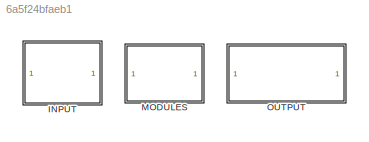
MODEL slx_6a5f24bfaeb1
KIND model
CONFIG AbsTol = auto
CONFIG EnableMultiTasking = off
CONFIG FixedStep = auto
CONFIG MaxStep = auto
CONFIG MinStep = auto
CONFIG RelTol = 1e-3
CONFIG SampleTimeConstraint = Unconstrained
CONFIG SolverName = VariableStepAuto
CONFIG StartTime = 0.0
CONFIG StopTime = 10.0
BLOCK [SubSystem] INPUT
  Ports = []
  RequestExecContextInheritance = off
BLOCK [SubSystem] INPUT/AIRBAG_INPUTS
  Ports = []
  RequestExecContextInheritance = off
BLOCK [Goto] INPUT/AIRBAG_INPUTS/Goto
  GotoTag = Driver_L
  TagVisibility = global
BLOCK [Goto] INPUT/AIRBAG_INPUTS/Goto1
  GotoTag = L_Front_1
  TagVisibility = global
BLOCK [Goto] INPUT/AIRBAG_INPUTS/Goto2
  GotoTag = L_Rear_1
  TagVisibility = global
BLOCK [Goto] INPUT/AIRBAG_INPUTS/Goto3
  GotoTag = R_Rear_
  TagVisibility = global
BLOCK [Goto] INPUT/AIRBAG_INPUTS/Goto4
  GotoTag = VehicleSpeed
  TagVisibility = global
BLOCK [Goto] INPUT/AIRBAG_INPUTS/Goto5
  GotoTag = Air_ACC
  TagVisibility = global
BLOCK [Goto] INPUT/AIRBAG_INPUTS/Goto6
  GotoTag = YawRate
  TagVisibility = global
BLOCK [SubSystem] INPUT/AIRBAG_INPUTS/Signal Builder
  ClipboardFcn = sigbuilder_block('clipboard');
  CloseFcn = sigbuilder_block('close');
  ContinueFcn = sigbuilder_block('continue');
  CopyFcn = sigbuilder_block('copy');
  DeleteFcn = sigbuilder_block('delete');
  LoadFcn = sigbuilder_block('load');
  MaskHideContents = on
  ModelCloseFcn = sigbuilder_block('modelClose');
  NameChangeFcn = sigbuilder_block('namechange');
  OpenFcn = sigbuilder_block('open',[437.6 199.2 550.4 400 ]);
  PauseFcn = sigbuilder_block('pause');
  Ports = [0, 7]
  PreSaveFcn = sigbuilder_block('preSave');
  RequestExecContextInheritance = off
  StartFcn = sigbuilder_block('start');
  StopFcn = sigbuilder_block('stop');
  Tag = STV Subsys
BLOCK [Outport] INPUT/AIRBAG_INPUTS/Signal Builder/Air_ACC
  Port = 6
  Tag = STV Outport
BLOCK [Demux] INPUT/AIRBAG_INPUTS/Signal Builder/Demux
  DisplayOption = none
  Outputs = 7
  Ports = [1, 7]
  Tag = STV Demux
BLOCK [Outport] INPUT/AIRBAG_INPUTS/Signal Builder/Driver_L
  Tag = STV Outport
BLOCK [FromWorkspace] INPUT/AIRBAG_INPUTS/Signal Builder/FromWs
  Tag = STV FromWs
  VariableName = tuvar
BLOCK [Outport] INPUT/AIRBAG_INPUTS/Signal Builder/L_Front_1
  Port = 2
  Tag = STV Outport
BLOCK [Outport] INPUT/AIRBAG_INPUTS/Signal Builder/L_Rear_1
  Port = 3
  Tag = STV Outport
BLOCK [Outport] INPUT/AIRBAG_INPUTS/Signal Builder/R_Rear_
  Port = 4
  Tag = STV Outport
BLOCK [Outport] INPUT/AIRBAG_INPUTS/Signal Builder/VehicleSpeed
  Port = 5
  Tag = STV Outport
BLOCK [Outport] INPUT/AIRBAG_INPUTS/Signal Builder/YawRate
  Port = 7
  Tag = STV Outport
BLOCK [SubSystem] INPUT/ALARM_INPUTS
  Ports = []
  RequestExecContextInheritance = off
BLOCK [Goto] INPUT/ALARM_INPUTS/Goto
  GotoTag = AS_Doors
  TagVisibility = global
BLOCK [Goto] INPUT/ALARM_INPUTS/Goto1
  GotoTag = Ignition
  TagVisibility = global
BLOCK [Goto] INPUT/ALARM_INPUTS/Goto2
  GotoTag = CAR_ON
  TagVisibility = global
BLOCK [Goto] INPUT/ALARM_INPUTS/Goto3
  GotoTag = RKE
  TagVisibility = global
BLOCK [SubSystem] INPUT/ALARM_INPUTS/Signal Builder
  ClipboardFcn = sigbuilder_block('clipboard');
  CloseFcn = sigbuilder_block('close');
  ContinueFcn = sigbuilder_block('continue');
  CopyFcn = sigbuilder_block('copy');
  DeleteFcn = sigbuilder_block('delete');
  LoadFcn = sigbuilder_block('load');
  MaskHideContents = on
  ModelCloseFcn = sigbuilder_block('modelClose');
  NameChangeFcn = sigbuilder_block('namechange');
  OpenFcn = sigbuilder_block('open',[403.5 199.2 550.5 359.55 ]);
  PauseFcn = sigbuilder_block('pause');
  Ports = [0, 4]
  PreSaveFcn = sigbuilder_block('preSave');
  RequestExecContextInheritance = off
  StartFcn = sigbuilder_block('start');
  StopFcn = sigbuilder_block('stop');
  Tag = STV Subsys
BLOCK [Outport] INPUT/ALARM_INPUTS/Signal Builder/AS_Doors
  Tag = STV Outport
BLOCK [Outport] INPUT/ALARM_INPUTS/Signal Builder/Car_ON
  Port = 3
  Tag = STV Outport
BLOCK [Demux] INPUT/ALARM_INPUTS/Signal Builder/Demux
  DisplayOption = none
  Ports = [1, 4]
  Tag = STV Demux
BLOCK [FromWorkspace] INPUT/ALARM_INPUTS/Signal Builder/FromWs
  Tag = STV FromWs
  VariableName = tuvar
BLOCK [Outport] INPUT/ALARM_INPUTS/Signal Builder/Ignition
  Port = 2
  Tag = STV Outport
BLOCK [Outport] INPUT/ALARM_INPUTS/Signal Builder/RKE
  Port = 4
  Tag = STV Outport
BLOCK [SubSystem] INPUT/Cruise_Control_INPUT
  Ports = []
  RequestExecContextInheritance = off
BLOCK [Goto] INPUT/Cruise_Control_INPUT/Goto
  GotoTag = ESC_cc
  TagVisibility = global
BLOCK [Goto] INPUT/Cruise_Control_INPUT/Goto1
  GotoTag = TSC_CC
  TagVisibility = global
BLOCK [Goto] INPUT/Cruise_Control_INPUT/Goto2
  GotoTag = BRAKE_CC
  TagVisibility = global
BLOCK [Goto] INPUT/Cruise_Control_INPUT/Goto3
  GotoTag = IGN
  TagVisibility = global
BLOCK [Goto] INPUT/Cruise_Control_INPUT/Goto4
  GotoTag = DESIRED_SPEED_CRUISE
  TagVisibility = global
BLOCK [Goto] INPUT/Cruise_Control_INPUT/Goto5
  GotoTag = CRUISE_SWITCH
  TagVisibility = global
BLOCK [Goto] INPUT/Cruise_Control_INPUT/Goto6
  GotoTag = CRUISE_SPEED_CHANGE_SW
  TagVisibility = global
BLOCK [Goto] INPUT/Cruise_Control_INPUT/Goto7
  GotoTag = SPEED_CONTROL_CC
  TagVisibility = global
BLOCK [SubSystem] INPUT/Cruise_Control_INPUT/Signal Builder
  ClipboardFcn = sigbuilder_block('clipboard');
  CloseFcn = sigbuilder_block('close');
  ContinueFcn = sigbuilder_block('continue');
  CopyFcn = sigbuilder_block('copy');
  DeleteFcn = sigbuilder_block('delete');
  LoadFcn = sigbuilder_block('load');
  MaskHideContents = on
  ModelCloseFcn = sigbuilder_block('modelClose');
  NameChangeFcn = sigbuilder_block('namechange');
  OpenFcn = sigbuilder_block('open',[437.6 153 550.4 359.25 ]);
  PauseFcn = sigbuilder_block('pause');
  Ports = [0, 8]
  PreSaveFcn = sigbuilder_block('preSave');
  RequestExecContextInheritance = off
  StartFcn = sigbuilder_block('start');
  StopFcn = sigbuilder_block('stop');
  Tag = STV Subsys
BLOCK [Outport] INPUT/Cruise_Control_INPUT/Signal Builder/BRAKE
  Port = 3
  Tag = STV Outport
BLOCK [Outport] INPUT/Cruise_Control_INPUT/Signal Builder/Cruise_speed_change_sw
  Port = 8
  Tag = STV Outport
BLOCK [Outport] INPUT/Cruise_Control_INPUT/Signal Builder/Cruise_switch
  Port = 6
  Tag = STV Outport
BLOCK [Demux] INPUT/Cruise_Control_INPUT/Signal Builder/Demux
  DisplayOption = none
  Outputs = 8
  Ports = [1, 8]
  Tag = STV Demux
BLOCK [Outport] INPUT/Cruise_Control_INPUT/Signal Builder/ESC
  Tag = STV Outport
BLOCK [FromWorkspace] INPUT/Cruise_Control_INPUT/Signal Builder/FromWs
  SampleTime = 1
  Tag = STV FromWs
  VariableName = tuvar
BLOCK [Outport] INPUT/Cruise_Control_INPUT/Signal Builder/Ignition
  Port = 4
  Tag = STV Outport
BLOCK [Outport] INPUT/Cruise_Control_INPUT/Signal Builder/Speed_enable
  Port = 7
  Tag = STV Outport
BLOCK [Outport] INPUT/Cruise_Control_INPUT/Signal Builder/TSC
  Port = 2
  Tag = STV Outport
BLOCK [Outport] INPUT/Cruise_Control_INPUT/Signal Builder/desired_speed
  Port = 5
  Tag = STV Outport
BLOCK [Goto] INPUT/Goto
  GotoTag = TP3
  TagVisibility = global
BLOCK [Goto] INPUT/Goto1
  GotoTag = TP4
  TagVisibility = global
BLOCK [Goto] INPUT/Goto2
  GotoTag = OP_SW
  TagVisibility = global
BLOCK [Goto] INPUT/Goto3
  GotoTag = CL_SW
  TagVisibility = global
BLOCK [Goto] INPUT/Goto4
  GotoTag = OP_VAL
  TagVisibility = global
BLOCK [Goto] INPUT/Goto5
  GotoTag = TP2
  TagVisibility = global
BLOCK [Goto] INPUT/Goto6
  GotoTag = TP1_IP
  TagVisibility = global
BLOCK [Goto] INPUT/Goto7
  GotoTag = CL_VAL
  TagVisibility = global
BLOCK [SubSystem] INPUT/Power_window_ip
  Ports = []
  RequestExecContextInheritance = off
  Tag = power_ip
BLOCK [Goto] INPUT/Power_window_ip/Goto
  GotoTag = ignition
  TagVisibility = global
BLOCK [Goto] INPUT/Power_window_ip/Goto1
  GotoTag = object
  TagVisibility = global
BLOCK [Goto] INPUT/Power_window_ip/Goto2
  GotoTag = rear_left_button_CP
  TagVisibility = global
BLOCK [Goto] INPUT/Power_window_ip/Goto3
  GotoTag = rear_left_button_driver_side
  TagVisibility = global
BLOCK [Goto] INPUT/Power_window_ip/Goto4
  GotoTag = Front_left_button_driver_side
  TagVisibility = global
BLOCK [Goto] INPUT/Power_window_ip/Goto5
  GotoTag = Front_left_button_CP
  TagVisibility = global
BLOCK [Goto] INPUT/Power_window_ip/Goto6
  GotoTag = rear_right_button_CP
  TagVisibility = global
BLOCK [Goto] INPUT/Power_window_ip/Goto7
  GotoTag = rear_right_button_driver_side
  TagVisibility = global
BLOCK [Goto] INPUT/Power_window_ip/Goto8
  GotoTag = driver_switch
  TagVisibility = global
BLOCK [SubSystem] INPUT/Power_window_ip/Signal Builder
  ClipboardFcn = sigbuilder_block('clipboard');
  CloseFcn = sigbuilder_block('close');
  ContinueFcn = sigbuilder_block('continue');
  CopyFcn = sigbuilder_block('copy');
  DeleteFcn = sigbuilder_block('delete');
  LoadFcn = sigbuilder_block('load');
  MaskHideContents = on
  ModelCloseFcn = sigbuilder_block('modelClose');
  NameChangeFcn = sigbuilder_block('namechange');
  OpenFcn = sigbuilder_block('open',[6 6 1012.5 506.25 ]);
  PauseFcn = sigbuilder_block('pause');
  Ports = [0, 10]
  PreSaveFcn = sigbuilder_block('preSave');
  RequestExecContextInheritance = off
  StartFcn = sigbuilder_block('start');
  StopFcn = sigbuilder_block('stop');
  Tag = STV Subsys
BLOCK [Demux] INPUT/Power_window_ip/Signal Builder/Demux
  DisplayOption = none
  Outputs = 10
  Ports = [1, 10]
  Tag = STV Demux
BLOCK [Outport] INPUT/Power_window_ip/Signal Builder/Driver_control
  Port = 4
  Tag = STV Outport
BLOCK [FromWorkspace] INPUT/Power_window_ip/Signal Builder/FromWs
  SampleTime = 1
  Tag = STV FromWs
  VariableName = tuvar
BLOCK [Outport] INPUT/Power_window_ip/Signal Builder/Front_left_CP
  Tag = STV Outport
BLOCK [Outport] INPUT/Power_window_ip/Signal Builder/Front_left_DC
  Port = 5
  Tag = STV Outport
BLOCK [Outport] INPUT/Power_window_ip/Signal Builder/Lock_Unlock
  Port = 9
  Tag = STV Outport
BLOCK [Outport] INPUT/Power_window_ip/Signal Builder/Right_left_CP
  Port = 2
  Tag = STV Outport
BLOCK [Outport] INPUT/Power_window_ip/Signal Builder/Right_right_CP
  Port = 3
  Tag = STV Outport
BLOCK [Outport] INPUT/Power_window_ip/Signal Builder/iginition
  Port = 10
  Tag = STV Outport
BLOCK [Outport] INPUT/Power_window_ip/Signal Builder/oject_detection
  Port = 8
  Tag = STV Outport
BLOCK [Outport] INPUT/Power_window_ip/Signal Builder/rear_left_DC
  Port = 6
  Tag = STV Outport
BLOCK [Outport] INPUT/Power_window_ip/Signal Builder/rear_right_DC
  Port = 7
  Tag = STV Outport
BLOCK [Goto] INPUT/Power_window_ip/lock_unlock_button_2
  GotoTag = lock_unlock_button
  TagVisibility = global
BLOCK [SubSystem] INPUT/SEAT_RESTRAINT_INPUTS
  Ports = []
  RequestExecContextInheritance = off
BLOCK [Goto] INPUT/SEAT_RESTRAINT_INPUTS/Goto
  GotoTag = FrontSeat
  TagVisibility = global
BLOCK [Goto] INPUT/SEAT_RESTRAINT_INPUTS/Goto1
  GotoTag = PowerSeat
  TagVisibility = global
BLOCK [Goto] INPUT/SEAT_RESTRAINT_INPUTS/Goto2
  GotoTag = AdjustFrontSeatAngle
  TagVisibility = global
BLOCK [Goto] INPUT/SEAT_RESTRAINT_INPUTS/Goto3
  GotoTag = ModeSelection
  TagVisibility = global
BLOCK [Goto] INPUT/SEAT_RESTRAINT_INPUTS/Goto4
  GotoTag = AdjustRearSeatAngle
  TagVisibility = global
BLOCK [Goto] INPUT/SEAT_RESTRAINT_INPUTS/Goto5
  GotoTag = AdjustCushionAngle
  TagVisibility = global
BLOCK [Goto] INPUT/SEAT_RESTRAINT_INPUTS/Goto6
  GotoTag = AdjustSeat
  TagVisibility = global
BLOCK [Goto] INPUT/SEAT_RESTRAINT_INPUTS/Goto7
  GotoTag = HandleOn
  TagVisibility = global
BLOCK [SubSystem] INPUT/Signal Builder
  ClipboardFcn = sigbuilder_block('clipboard');
  CloseFcn = sigbuilder_block('close');
  ContinueFcn = sigbuilder_block('continue');
  CopyFcn = sigbuilder_block('copy');
  DeleteFcn = sigbuilder_block('delete');
  LoadFcn = sigbuilder_block('load');
  MaskHideContents = on
  ModelCloseFcn = sigbuilder_block('modelClose');
  NameChangeFcn = sigbuilder_block('namechange');
  OpenFcn = sigbuilder_block('open',[6 30 1188 546.75 ]);
  PauseFcn = sigbuilder_block('pause');
  Ports = [0, 8]
  PreSaveFcn = sigbuilder_block('preSave');
  RequestExecContextInheritance = off
  StartFcn = sigbuilder_block('start');
  StopFcn = sigbuilder_block('stop');
  Tag = STV Subsys
BLOCK [Outport] INPUT/Signal Builder/CLOSE_SW
  Port = 6
  Tag = STV Outport
BLOCK [Outport] INPUT/Signal Builder/CLOSE_VALUE
  Port = 8
  Tag = STV Outport
BLOCK [Demux] INPUT/Signal Builder/Demux
  DisplayOption = none
  Outputs = 8
  Ports = [1, 8]
  Tag = STV Demux
BLOCK [FromWorkspace] INPUT/Signal Builder/FromWs
  SampleTime = 1
  Tag = STV FromWs
  VariableName = tuvar
BLOCK [Outport] INPUT/Signal Builder/OPEN_SW
  Port = 5
  Tag = STV Outport
BLOCK [Outport] INPUT/Signal Builder/OPEN_VALUE
  Port = 7
  Tag = STV Outport
BLOCK [Outport] INPUT/Signal Builder/TP1
  Tag = STV Outport
BLOCK [Outport] INPUT/Signal Builder/TP2
  Port = 2
  Tag = STV Outport
BLOCK [Outport] INPUT/Signal Builder/TP3
  Port = 3
  Tag = STV Outport
BLOCK [Outport] INPUT/Signal Builder/TP4
  Port = 4
  Tag = STV Outport
BLOCK [SubSystem] INPUT/Wiper_INPUTS
  Ports = []
  RequestExecContextInheritance = off
BLOCK [Goto] INPUT/Wiper_INPUTS/       WC_BackS
  GotoTag = WC_BackS
  TagVisibility = global
BLOCK [Goto] INPUT/Wiper_INPUTS/       WC_FrontS
  GotoTag = WC_FrontS
  TagVisibility = global
BLOCK [Goto] INPUT/Wiper_INPUTS/       WC_Status
  GotoTag = WC_Status
  TagVisibility = global
BLOCK [Goto] INPUT/Wiper_INPUTS/FC_ManualInput
  GotoTag = FC_ManualInput
  TagVisibility = global
BLOCK [Goto] INPUT/Wiper_INPUTS/FW_Modes
  GotoTag = FW_Modes
  TagVisibility = global
BLOCK [SubSystem] INPUT/Wiper_INPUTS/Signal Builder
  ClipboardFcn = sigbuilder_block('clipboard');
  CloseFcn = sigbuilder_block('close');
  ContinueFcn = sigbuilder_block('continue');
  CopyFcn = sigbuilder_block('copy');
  DeleteFcn = sigbuilder_block('delete');
  LoadFcn = sigbuilder_block('load');
  MaskHideContents = on
  ModelCloseFcn = sigbuilder_block('modelClose');
  NameChangeFcn = sigbuilder_block('namechange');
  OpenFcn = sigbuilder_block('open',[437.6 199.2 550.4 400 ]);
  PauseFcn = sigbuilder_block('pause');
  Ports = [0, 5]
  PreSaveFcn = sigbuilder_block('preSave');
  RequestExecContextInheritance = off
  StartFcn = sigbuilder_block('start');
  StopFcn = sigbuilder_block('stop');
  Tag = STV Subsys
BLOCK [Demux] INPUT/Wiper_INPUTS/Signal Builder/Demux
  DisplayOption = none
  Outputs = 5
  Ports = [1, 5]
  Tag = STV Demux
BLOCK [Outport] INPUT/Wiper_INPUTS/Signal Builder/FC_ManualInput
  Port = 2
  Tag = STV Outport
BLOCK [Outport] INPUT/Wiper_INPUTS/Signal Builder/FC_Modes
  Tag = STV Outport
BLOCK [FromWorkspace] INPUT/Wiper_INPUTS/Signal Builder/FromWs
  Tag = STV FromWs
  VariableName = tuvar
BLOCK [Outport] INPUT/Wiper_INPUTS/Signal Builder/WC_BackS
  Port = 3
  Tag = STV Outport
BLOCK [Outport] INPUT/Wiper_INPUTS/Signal Builder/WC_Fronts
  Port = 4
  Tag = STV Outport
BLOCK [Outport] INPUT/Wiper_INPUTS/Signal Builder/WC_Status
  Port = 5
  Tag = STV Outport
BLOCK [SubSystem] MODULES
  Ports = []
  RequestExecContextInheritance = off
BLOCK [SubSystem] MODULES/	POWER_WINDOW
  Ports = []
  RequestExecContextInheritance = off
BLOCK [Goto] MODULES/	POWER_WINDOW/Goto2
  GotoTag = FL_out
  TagVisibility = global
BLOCK [Goto] MODULES/	POWER_WINDOW/Goto3
  GotoTag = RL_out
  TagVisibility = global
BLOCK [Goto] MODULES/	POWER_WINDOW/Goto4
  GotoTag = RR_warn
  TagVisibility = global
BLOCK [Goto] MODULES/	POWER_WINDOW/Goto5
  GotoTag = RR_out
  TagVisibility = global
BLOCK [Goto] MODULES/	POWER_WINDOW/Goto6
  GotoTag = driver_warn
  TagVisibility = global
BLOCK [Goto] MODULES/	POWER_WINDOW/Goto7
  GotoTag = RL_warn
  TagVisibility = global
BLOCK [Goto] MODULES/	POWER_WINDOW/Goto8
  GotoTag = FL_warn
  TagVisibility = global
BLOCK [Goto] MODULES/	POWER_WINDOW/Goto9
  GotoTag = driver_side_output
  TagVisibility = global
BLOCK [SubSystem] MODULES/	POWER_WINDOW/Subsystem4
  Ports = [2, 8]
  RequestExecContextInheritance = off
BLOCK [From] MODULES/	POWER_WINDOW/Subsystem4/Front_left_button_CP
  GotoTag = Front_left_button_CP
  TagVisibility = global
BLOCK [From] MODULES/	POWER_WINDOW/Subsystem4/Front_left_button_driver_side
  GotoTag = Front_left_button_driver_side
  TagVisibility = global
BLOCK [SubSystem] MODULES/	POWER_WINDOW/Subsystem4/Front_left_subsystem
  Ports = [4, 2, 1]
  RequestExecContextInheritance = off
BLOCK [Logic] MODULES/	POWER_WINDOW/Subsystem4/Front_left_subsystem/AND
  AllPortsSameDT = off
  IconShape = distinctive
  OutDataTypeStr = boolean
  Ports = [2, 1]
BLOCK [Reference] MODULES/	POWER_WINDOW/Subsystem4/Front_left_subsystem/Compare To Constant1  REF=simulink/Logic and Bit
Operations/Compare
To Constant
  Ports = [1, 1]
  SourceBlock = simulink/Logic and Bit\nOperations/Compare\nTo Constant
  SourceProductBaseCode = SL
  SourceType = Compare To Constant
BLOCK [Display] MODULES/	POWER_WINDOW/Subsystem4/Front_left_subsystem/Display
  Decimation = 1
  Ports = [1]
BLOCK [Display] MODULES/	POWER_WINDOW/Subsystem4/Front_left_subsystem/Display1
  Decimation = 1
  Ports = [1]
BLOCK [EnablePort] MODULES/	POWER_WINDOW/Subsystem4/Front_left_subsystem/Enable
  Ports = []
BLOCK [From] MODULES/	POWER_WINDOW/Subsystem4/Front_left_subsystem/From
  TagVisibility = global
BLOCK [Goto] MODULES/	POWER_WINDOW/Subsystem4/Front_left_subsystem/Goto
  GotoTag = b1
BLOCK [Goto] MODULES/	POWER_WINDOW/Subsystem4/Front_left_subsystem/Goto1
  TagVisibility = global
BLOCK [Inport] MODULES/	POWER_WINDOW/Subsystem4/Front_left_subsystem/In_fl_Dc
  Port = 3
BLOCK [Inport] MODULES/	POWER_WINDOW/Subsystem4/Front_left_subsystem/In_fl_b
  Port = 2
BLOCK [Outport] MODULES/	POWER_WINDOW/Subsystem4/Front_left_subsystem/Outport
BLOCK [Outport] MODULES/	POWER_WINDOW/Subsystem4/Front_left_subsystem/Outport1
  Port = 2
BLOCK [Scope] MODULES/	POWER_WINDOW/Subsystem4/Front_left_subsystem/Scope
  Floating = off
  NumInputPorts = 2
  Ports = [2]
  ScopeSpecificationString = Simulink.scopes.TimeScopeBlockCfg('CurrentConfiguration', extmgr.ConfigurationSet(extmgr.Configuration('Core','General UI',true),extmgr.Configuration('Core','Source UI',true),extmgr.Configuration('Sources','WiredSimulink',true),extmgr.Configuration('Visuals','Time Domain',true,'SerializedDisplays',{struct('MinYLimReal','-0.125','MaxYLimReal','1.125','YLabelReal','','MinYLimMag','0.00000','MaxYLimM...<+1385ch>
BLOCK [Switch] MODULES/	POWER_WINDOW/Subsystem4/Front_left_subsystem/Switch_lock_unlock
  Criteria = u2 > Threshold
  InputSameDT = off
  SaturateOnIntegerOverflow = off
BLOCK [From] MODULES/	POWER_WINDOW/Subsystem4/Front_left_subsystem/b1
  GotoTag = b1
BLOCK [Constant] MODULES/	POWER_WINDOW/Subsystem4/Front_left_subsystem/check_ip
BLOCK [SubSystem] MODULES/	POWER_WINDOW/Subsystem4/Front_left_subsystem/decision_Box
  ErrorFcn = Stateflow.Translate.translate
  PermitHierarchicalResolution = ExplicitOnly
  Ports = [2, 2]
  RequestExecContextInheritance = off
  SFBlockType = Chart
  TreatAsAtomicUnit = on
BLOCK [Demux] MODULES/	POWER_WINDOW/Subsystem4/Front_left_subsystem/decision_Box/ Demux 
  Outputs = 1
  Ports = [1, 1]
BLOCK [S-Function] MODULES/	POWER_WINDOW/Subsystem4/Front_left_subsystem/decision_Box/ SFunction 
  EnableBusSupport = on
  FunctionName = sf_sfun
  PortCounts = [2 3]
  Ports = [2, 3]
  SFcnIsStateOwnerBlock = off
  SFunctionDeploymentMode = off
  Tag = Stateflow S-Function 6
BLOCK [Terminator] MODULES/	POWER_WINDOW/Subsystem4/Front_left_subsystem/decision_Box/ Terminator 
BLOCK [Inport] MODULES/	POWER_WINDOW/Subsystem4/Front_left_subsystem/decision_Box/data
BLOCK [Inport] MODULES/	POWER_WINDOW/Subsystem4/Front_left_subsystem/decision_Box/data1
  Port = 2
BLOCK [Outport] MODULES/	POWER_WINDOW/Subsystem4/Front_left_subsystem/decision_Box/op1
BLOCK [Outport] MODULES/	POWER_WINDOW/Subsystem4/Front_left_subsystem/decision_Box/warning
  Port = 2
BLOCK [Logic] MODULES/	POWER_WINDOW/Subsystem4/Front_left_subsystem/inp_data
  AllPortsSameDT = off
  IconShape = distinctive
  Operator = NXOR
  OutDataTypeStr = boolean
  Ports = [2, 1]
BLOCK [Inport] MODULES/	POWER_WINDOW/Subsystem4/Front_left_subsystem/lock//unlock
BLOCK [Inport] MODULES/	POWER_WINDOW/Subsystem4/Front_left_subsystem/object
  Port = 4
BLOCK [Logic] MODULES/	POWER_WINDOW/Subsystem4/Front_left_subsystem/or1
  AllPortsSameDT = off
  IconShape = distinctive
  Operator = NXOR
  OutDataTypeStr = boolean
  Ports = [2, 1]
BLOCK [Inport] MODULES/	POWER_WINDOW/Subsystem4/Ig_sw
BLOCK [Outport] MODULES/	POWER_WINDOW/Subsystem4/Out_DC
  Port = 8
BLOCK [Outport] MODULES/	POWER_WINDOW/Subsystem4/Out_DC_warn
  Port = 7
BLOCK [Outport] MODULES/	POWER_WINDOW/Subsystem4/Out_FL
  Port = 2
BLOCK [Outport] MODULES/	POWER_WINDOW/Subsystem4/Out_RL
  Port = 4
BLOCK [Outport] MODULES/	POWER_WINDOW/Subsystem4/Out_RL_warn
  Port = 3
BLOCK [Outport] MODULES/	POWER_WINDOW/Subsystem4/Out_RR
  Port = 6
BLOCK [Outport] MODULES/	POWER_WINDOW/Subsystem4/Out_RR_warn
  Port = 5
BLOCK [Outport] MODULES/	POWER_WINDOW/Subsystem4/Out_warn
BLOCK [SubSystem] MODULES/	POWER_WINDOW/Subsystem4/Rear_right_Subsystem
  Ports = [4, 2, 1]
  RequestExecContextInheritance = off
BLOCK [SubSystem] MODULES/	POWER_WINDOW/Subsystem4/Rear_right_Subsystem/Chart
  ErrorFcn = Stateflow.Translate.translate
  PermitHierarchicalResolution = ExplicitOnly
  Ports = [2, 2]
  RequestExecContextInheritance = off
  SFBlockType = Chart
  TreatAsAtomicUnit = on
BLOCK [Demux] MODULES/	POWER_WINDOW/Subsystem4/Rear_right_Subsystem/Chart/ Demux 
  Outputs = 1
  Ports = [1, 1]
BLOCK [S-Function] MODULES/	POWER_WINDOW/Subsystem4/Rear_right_Subsystem/Chart/ SFunction 
  EnableBusSupport = on
  FunctionName = sf_sfun
  PortCounts = [2 3]
  Ports = [2, 3]
  SFcnIsStateOwnerBlock = off
  SFunctionDeploymentMode = off
  Tag = Stateflow S-Function 7
BLOCK [Terminator] MODULES/	POWER_WINDOW/Subsystem4/Rear_right_Subsystem/Chart/ Terminator 
BLOCK [Inport] MODULES/	POWER_WINDOW/Subsystem4/Rear_right_Subsystem/Chart/data
BLOCK [Inport] MODULES/	POWER_WINDOW/Subsystem4/Rear_right_Subsystem/Chart/data1
  Port = 2
BLOCK [Outport] MODULES/	POWER_WINDOW/Subsystem4/Rear_right_Subsystem/Chart/op1
BLOCK [Outport] MODULES/	POWER_WINDOW/Subsystem4/Rear_right_Subsystem/Chart/warning
  Port = 2
BLOCK [Reference] MODULES/	POWER_WINDOW/Subsystem4/Rear_right_Subsystem/Compare To Constant1  REF=simulink/Logic and Bit
Operations/Compare
To Constant
  Ports = [1, 1]
  SourceBlock = simulink/Logic and Bit\nOperations/Compare\nTo Constant
  SourceProductBaseCode = SL
  SourceType = Compare To Constant
BLOCK [Constant] MODULES/	POWER_WINDOW/Subsystem4/Rear_right_Subsystem/Constant1
  Value = 3
BLOCK [Display] MODULES/	POWER_WINDOW/Subsystem4/Rear_right_Subsystem/Display2
  Decimation = 1
  NameLocation = right
  Ports = [1]
BLOCK [Display] MODULES/	POWER_WINDOW/Subsystem4/Rear_right_Subsystem/Display3
  Decimation = 1
  Ports = [1]
BLOCK [EnablePort] MODULES/	POWER_WINDOW/Subsystem4/Rear_right_Subsystem/Enable
  Ports = []
BLOCK [From] MODULES/	POWER_WINDOW/Subsystem4/Rear_right_Subsystem/From2
  GotoTag = c
  TagVisibility = global
BLOCK [Goto] MODULES/	POWER_WINDOW/Subsystem4/Rear_right_Subsystem/Goto
  GotoTag = c
  TagVisibility = global
BLOCK [Goto] MODULES/	POWER_WINDOW/Subsystem4/Rear_right_Subsystem/Goto2
  GotoTag = b3
BLOCK [Inport] MODULES/	POWER_WINDOW/Subsystem4/Rear_right_Subsystem/In2
  Port = 2
BLOCK [Inport] MODULES/	POWER_WINDOW/Subsystem4/Rear_right_Subsystem/In3
  Port = 3
BLOCK [Outport] MODULES/	POWER_WINDOW/Subsystem4/Rear_right_Subsystem/Outport
BLOCK [Outport] MODULES/	POWER_WINDOW/Subsystem4/Rear_right_Subsystem/Outport1
  Port = 2
BLOCK [Scope] MODULES/	POWER_WINDOW/Subsystem4/Rear_right_Subsystem/Scope
  Floating = off
  NumInputPorts = 2
  Ports = [2]
  ScopeSpecificationString = Simulink.scopes.TimeScopeBlockCfg('CurrentConfiguration', extmgr.ConfigurationSet(extmgr.Configuration('Core','General UI',true),extmgr.Configuration('Core','Source UI',true),extmgr.Configuration('Sources','WiredSimulink',true,'DataLoggingVariableName','ScopeData2'),extmgr.Configuration('Visuals','Time Domain',true,'SerializedDisplays',{struct('MinYLimReal','-9.375','MaxYLimReal','84.375','YLabelR...<+1428ch>
BLOCK [Switch] MODULES/	POWER_WINDOW/Subsystem4/Rear_right_Subsystem/Switch
  Criteria = u2 > Threshold
  InputSameDT = off
  SaturateOnIntegerOverflow = off
BLOCK [From] MODULES/	POWER_WINDOW/Subsystem4/Rear_right_Subsystem/b3
  GotoTag = b3
BLOCK [Inport] MODULES/	POWER_WINDOW/Subsystem4/Rear_right_Subsystem/lock//unlock
BLOCK [Inport] MODULES/	POWER_WINDOW/Subsystem4/Rear_right_Subsystem/object
  Port = 4
BLOCK [Logic] MODULES/	POWER_WINDOW/Subsystem4/Rear_right_Subsystem/or1
  AllPortsSameDT = off
  IconShape = distinctive
  Operator = NXOR
  OutDataTypeStr = boolean
  Ports = [2, 1]
BLOCK [Logic] MODULES/	POWER_WINDOW/Subsystem4/Rear_right_Subsystem/or2
  AllPortsSameDT = off
  IconShape = distinctive
  OutDataTypeStr = boolean
  Ports = [2, 1]
BLOCK [Logic] MODULES/	POWER_WINDOW/Subsystem4/Rear_right_Subsystem/or3
  AllPortsSameDT = off
  IconShape = distinctive
  Operator = NXOR
  OutDataTypeStr = boolean
  Ports = [2, 1]
BLOCK [SubSystem] MODULES/	POWER_WINDOW/Subsystem4/driver_control_Subsystem
  Ports = [2, 2, 1]
  RequestExecContextInheritance = off
BLOCK [SubSystem] MODULES/	POWER_WINDOW/Subsystem4/driver_control_Subsystem/Chart
  ErrorFcn = Stateflow.Translate.translate
  PermitHierarchicalResolution = ExplicitOnly
  Ports = [2, 2]
  RequestExecContextInheritance = off
  SFBlockType = Chart
  TreatAsAtomicUnit = on
BLOCK [Demux] MODULES/	POWER_WINDOW/Subsystem4/driver_control_Subsystem/Chart/ Demux 
  Outputs = 1
  Ports = [1, 1]
BLOCK [S-Function] MODULES/	POWER_WINDOW/Subsystem4/driver_control_Subsystem/Chart/ SFunction 
  EnableBusSupport = on
  FunctionName = sf_sfun
  PortCounts = [2 3]
  Ports = [2, 3]
  SFcnIsStateOwnerBlock = off
  SFunctionDeploymentMode = off
  Tag = Stateflow S-Function 8
BLOCK [Terminator] MODULES/	POWER_WINDOW/Subsystem4/driver_control_Subsystem/Chart/ Terminator 
BLOCK [Inport] MODULES/	POWER_WINDOW/Subsystem4/driver_control_Subsystem/Chart/data
BLOCK [Inport] MODULES/	POWER_WINDOW/Subsystem4/driver_control_Subsystem/Chart/data1
  Port = 2
BLOCK [Outport] MODULES/	POWER_WINDOW/Subsystem4/driver_control_Subsystem/Chart/op1
BLOCK [Outport] MODULES/	POWER_WINDOW/Subsystem4/driver_control_Subsystem/Chart/warning
  Port = 2
BLOCK [Display] MODULES/	POWER_WINDOW/Subsystem4/driver_control_Subsystem/Display4
  Decimation = 1
  Ports = [1]
BLOCK [EnablePort] MODULES/	POWER_WINDOW/Subsystem4/driver_control_Subsystem/Enable
  Ports = []
BLOCK [From] MODULES/	POWER_WINDOW/Subsystem4/driver_control_Subsystem/From3
  GotoTag = d
  TagVisibility = global
BLOCK [Goto] MODULES/	POWER_WINDOW/Subsystem4/driver_control_Subsystem/Goto
  GotoTag = d
  TagVisibility = global
BLOCK [Inport] MODULES/	POWER_WINDOW/Subsystem4/driver_control_Subsystem/In1
BLOCK [Outport] MODULES/	POWER_WINDOW/Subsystem4/driver_control_Subsystem/Outport
BLOCK [Outport] MODULES/	POWER_WINDOW/Subsystem4/driver_control_Subsystem/Outport1
  Port = 2
BLOCK [Scope] MODULES/	POWER_WINDOW/Subsystem4/driver_control_Subsystem/Scope
  Floating = off
  NumInputPorts = 2
  Ports = [2]
  ScopeSpecificationString = Simulink.scopes.TimeScopeBlockCfg('CurrentConfiguration', extmgr.ConfigurationSet(extmgr.Configuration('Core','General UI',true),extmgr.Configuration('Core','Source UI',true),extmgr.Configuration('Sources','WiredSimulink',true,'DataLoggingVariableName','ScopeData3'),extmgr.Configuration('Visuals','Time Domain',true,'SerializedDisplays',{struct('MinYLimReal','-1.00000','MaxYLimReal','1.00000','YLab...<+1437ch>
BLOCK [Inport] MODULES/	POWER_WINDOW/Subsystem4/driver_control_Subsystem/object
  Port = 2
BLOCK [From] MODULES/	POWER_WINDOW/Subsystem4/driver_switch
  GotoTag = driver_switch
  TagVisibility = global
BLOCK [From] MODULES/	POWER_WINDOW/Subsystem4/lock_unlock_button
  GotoTag = lock_unlock_button
  TagVisibility = global
BLOCK [Inport] MODULES/	POWER_WINDOW/Subsystem4/object
  Port = 2
BLOCK [SubSystem] MODULES/	POWER_WINDOW/Subsystem4/rear_left_Subsystem
  Ports = [4, 2, 1]
  RequestExecContextInheritance = off
BLOCK [SubSystem] MODULES/	POWER_WINDOW/Subsystem4/rear_left_Subsystem/Chart
  ErrorFcn = Stateflow.Translate.translate
  PermitHierarchicalResolution = ExplicitOnly
  Ports = [2, 2]
  RequestExecContextInheritance = off
  SFBlockType = Chart
  TreatAsAtomicUnit = on
BLOCK [Demux] MODULES/	POWER_WINDOW/Subsystem4/rear_left_Subsystem/Chart/ Demux 
  Outputs = 1
  Ports = [1, 1]
BLOCK [S-Function] MODULES/	POWER_WINDOW/Subsystem4/rear_left_Subsystem/Chart/ SFunction 
  EnableBusSupport = on
  FunctionName = sf_sfun
  PortCounts = [2 3]
  Ports = [2, 3]
  SFcnIsStateOwnerBlock = off
  SFunctionDeploymentMode = off
  Tag = Stateflow S-Function 9
BLOCK [Terminator] MODULES/	POWER_WINDOW/Subsystem4/rear_left_Subsystem/Chart/ Terminator 
BLOCK [Inport] MODULES/	POWER_WINDOW/Subsystem4/rear_left_Subsystem/Chart/data
BLOCK [Inport] MODULES/	POWER_WINDOW/Subsystem4/rear_left_Subsystem/Chart/data1
  Port = 2
BLOCK [Outport] MODULES/	POWER_WINDOW/Subsystem4/rear_left_Subsystem/Chart/op1
BLOCK [Outport] MODULES/	POWER_WINDOW/Subsystem4/rear_left_Subsystem/Chart/warning
  Port = 2
BLOCK [Reference] MODULES/	POWER_WINDOW/Subsystem4/rear_left_Subsystem/Compare To Constant2  REF=simulink/Logic and Bit
Operations/Compare
To Constant
  Ports = [1, 1]
  SourceBlock = simulink/Logic and Bit\nOperations/Compare\nTo Constant
  SourceProductBaseCode = SL
  SourceType = Compare To Constant
BLOCK [Constant] MODULES/	POWER_WINDOW/Subsystem4/rear_left_Subsystem/Constant1
  Value = 2
BLOCK [Display] MODULES/	POWER_WINDOW/Subsystem4/rear_left_Subsystem/Display1
  Decimation = 1
  Ports = [1]
BLOCK [Display] MODULES/	POWER_WINDOW/Subsystem4/rear_left_Subsystem/Display2
  Decimation = 1
  Ports = [1]
BLOCK [EnablePort] MODULES/	POWER_WINDOW/Subsystem4/rear_left_Subsystem/Enable
  Ports = []
BLOCK [From] MODULES/	POWER_WINDOW/Subsystem4/rear_left_Subsystem/From1
  GotoTag = b
  TagVisibility = global
BLOCK [Goto] MODULES/	POWER_WINDOW/Subsystem4/rear_left_Subsystem/Goto
  GotoTag = b
  TagVisibility = global
BLOCK [Goto] MODULES/	POWER_WINDOW/Subsystem4/rear_left_Subsystem/Goto1
  GotoTag = b2
BLOCK [Inport] MODULES/	POWER_WINDOW/Subsystem4/rear_left_Subsystem/In2
  Port = 2
BLOCK [Inport] MODULES/	POWER_WINDOW/Subsystem4/rear_left_Subsystem/In3
  Port = 3
BLOCK [Outport] MODULES/	POWER_WINDOW/Subsystem4/rear_left_Subsystem/Outport
BLOCK [Outport] MODULES/	POWER_WINDOW/Subsystem4/rear_left_Subsystem/Outport1
  Port = 2
BLOCK [Scope] MODULES/	POWER_WINDOW/Subsystem4/rear_left_Subsystem/Scope
  Floating = off
  NumInputPorts = 2
  Ports = [2]
  ScopeSpecificationString = Simulink.scopes.TimeScopeBlockCfg('CurrentConfiguration', extmgr.ConfigurationSet(extmgr.Configuration('Core','General UI',true),extmgr.Configuration('Core','Source UI',true),extmgr.Configuration('Sources','WiredSimulink',true,'DataLoggingVariableName','ScopeData1'),extmgr.Configuration('Visuals','Time Domain',true,'SerializedDisplays',{struct('MinYLimReal','-9.375','MaxYLimReal','84.375','YLabelR...<+1428ch>
BLOCK [Switch] MODULES/	POWER_WINDOW/Subsystem4/rear_left_Subsystem/Switch1
  Criteria = u2 > Threshold
  InputSameDT = off
  SaturateOnIntegerOverflow = off
BLOCK [From] MODULES/	POWER_WINDOW/Subsystem4/rear_left_Subsystem/b2
  GotoTag = b2
BLOCK [Inport] MODULES/	POWER_WINDOW/Subsystem4/rear_left_Subsystem/lock//unlock
BLOCK [Inport] MODULES/	POWER_WINDOW/Subsystem4/rear_left_Subsystem/object
  Port = 4
BLOCK [Logic] MODULES/	POWER_WINDOW/Subsystem4/rear_left_Subsystem/or1
  AllPortsSameDT = off
  IconShape = distinctive
  Operator = NXOR
  OutDataTypeStr = boolean
  Ports = [2, 1]
BLOCK [Logic] MODULES/	POWER_WINDOW/Subsystem4/rear_left_Subsystem/or2
  AllPortsSameDT = off
  IconShape = distinctive
  Operator = NXOR
  OutDataTypeStr = boolean
  Ports = [2, 1]
BLOCK [Logic] MODULES/	POWER_WINDOW/Subsystem4/rear_left_Subsystem/or3
  AllPortsSameDT = off
  IconShape = distinctive
  OutDataTypeStr = boolean
  Ports = [2, 1]
BLOCK [From] MODULES/	POWER_WINDOW/Subsystem4/rear_left_button_CP
  GotoTag = rear_left_button_CP
  TagVisibility = global
BLOCK [From] MODULES/	POWER_WINDOW/Subsystem4/rear_left_button_driver_side
  GotoTag = rear_left_button_driver_side
  TagVisibility = global
BLOCK [From] MODULES/	POWER_WINDOW/Subsystem4/rear_right_button_CP
  GotoTag = rear_right_button_CP
  TagVisibility = global
BLOCK [From] MODULES/	POWER_WINDOW/Subsystem4/rear_right_button_driver_side
  GotoTag = rear_right_button_driver_side
  TagVisibility = global
BLOCK [From] MODULES/	POWER_WINDOW/ignition
  GotoTag = ignition
  TagVisibility = global
BLOCK [From] MODULES/	POWER_WINDOW/object
  GotoTag = object
  TagVisibility = global
BLOCK [SubSystem] MODULES/AIRBAGSYSTEM
  Ports = []
  RequestExecContextInheritance = off
BLOCK [Logic] MODULES/AIRBAGSYSTEM/AND
  AllPortsSameDT = off
  IconShape = distinctive
  OutDataTypeStr = boolean
  Ports = [2, 1]
BLOCK [Logic] MODULES/AIRBAGSYSTEM/AND1
  AllPortsSameDT = off
  IconShape = distinctive
  OutDataTypeStr = boolean
  Ports = [2, 1]
BLOCK [SubSystem] MODULES/AIRBAGSYSTEM/ActivateAirBagSensor
  ErrorFcn = Stateflow.Translate.translate
  PermitHierarchicalResolution = ExplicitOnly
  Ports = [1, 1]
  RequestExecContextInheritance = off
  SFBlockType = MATLAB Function
  TreatAsAtomicUnit = on
BLOCK [Demux] MODULES/AIRBAGSYSTEM/ActivateAirBagSensor/ Demux 
  Outputs = 1
  Ports = [1, 1]
BLOCK [S-Function] MODULES/AIRBAGSYSTEM/ActivateAirBagSensor/ SFunction 
  EnableBusSupport = on
  FunctionName = sf_sfun
  PortCounts = [1 2]
  Ports = [1, 2]
  SFcnIsStateOwnerBlock = off
  SFunctionDeploymentMode = off
  Tag = Stateflow S-Function 2
BLOCK [Terminator] MODULES/AIRBAGSYSTEM/ActivateAirBagSensor/ Terminator 
BLOCK [Outport] MODULES/AIRBAGSYSTEM/ActivateAirBagSensor/AirBagSensor
BLOCK [Inport] MODULES/AIRBAGSYSTEM/ActivateAirBagSensor/SuddenDeceleration
BLOCK [RelationalOperator] MODULES/AIRBAGSYSTEM/CheckYawRateForFront
  InputSameDT = off
  Operator = ==
  OutDataTypeStr = boolean
  Ports = [2, 1]
  RndMeth = Simplest
BLOCK [RelationalOperator] MODULES/AIRBAGSYSTEM/CheckYawRateForSide
  InputSameDT = off
  Operator = ==
  OutDataTypeStr = boolean
  Ports = [2, 1]
  RndMeth = Simplest
BLOCK [Constant] MODULES/AIRBAGSYSTEM/ConstantVehicleSpeed
  Value = 50
BLOCK [Sum] MODULES/AIRBAGSYSTEM/DetectDeceleration
  IconShape = rectangular
  Inputs = +-
  Ports = [2, 1]
BLOCK [Display] MODULES/AIRBAGSYSTEM/Display
  Decimation = 1
  Ports = [1]
BLOCK [From] MODULES/AIRBAGSYSTEM/From
  GotoTag = Driver_L
  TagVisibility = global
BLOCK [From] MODULES/AIRBAGSYSTEM/From1
  GotoTag = L_Front_1
  TagVisibility = global
BLOCK [From] MODULES/AIRBAGSYSTEM/From2
  GotoTag = L_Rear_1
  TagVisibility = global
BLOCK [From] MODULES/AIRBAGSYSTEM/From3
  GotoTag = R_Rear_
  TagVisibility = global
BLOCK [From] MODULES/AIRBAGSYSTEM/From4
  GotoTag = Air_ACC
  TagVisibility = global
BLOCK [From] MODULES/AIRBAGSYSTEM/From5
  GotoTag = YawRate
  TagVisibility = global
BLOCK [From] MODULES/AIRBAGSYSTEM/From6
  GotoTag = VehicleSpeed
  TagVisibility = global
BLOCK [SubSystem] MODULES/AIRBAGSYSTEM/FrontAirBagActivation
  Ports = [5, 12, 1]
  RequestExecContextInheritance = off
  TreatAsAtomicUnit = on
BLOCK [Reference] MODULES/AIRBAGSYSTEM/FrontAirBagActivation/Compare To Constant  REF=simulink/Logic and Bit
Operations/Compare
To Constant
  Ports = [1, 1]
  SourceBlock = simulink/Logic and Bit\nOperations/Compare\nTo Constant
  SourceProductBaseCode = SL
  SourceType = Compare To Constant
BLOCK [Reference] MODULES/AIRBAGSYSTEM/FrontAirBagActivation/Compare To Constant1  REF=simulink/Logic and Bit
Operations/Compare
To Constant
  Ports = [1, 1]
  SourceBlock = simulink/Logic and Bit\nOperations/Compare\nTo Constant
  SourceProductBaseCode = SL
  SourceType = Compare To Constant
BLOCK [Reference] MODULES/AIRBAGSYSTEM/FrontAirBagActivation/Compare To Constant2  REF=simulink/Logic and Bit
Operations/Compare
To Constant
  Ports = [1, 1]
  SourceBlock = simulink/Logic and Bit\nOperations/Compare\nTo Constant
  SourceProductBaseCode = SL
  SourceType = Compare To Constant
BLOCK [Reference] MODULES/AIRBAGSYSTEM/FrontAirBagActivation/Compare To Constant3  REF=simulink/Logic and Bit
Operations/Compare
To Constant
  Ports = [1, 1]
  SourceBlock = simulink/Logic and Bit\nOperations/Compare\nTo Constant
  SourceProductBaseCode = SL
  SourceType = Compare To Constant
BLOCK [Constant] MODULES/AIRBAGSYSTEM/FrontAirBagActivation/Constant
BLOCK [Constant] MODULES/AIRBAGSYSTEM/FrontAirBagActivation/Constant1
BLOCK [Constant] MODULES/AIRBAGSYSTEM/FrontAirBagActivation/Constant10
BLOCK [Constant] MODULES/AIRBAGSYSTEM/FrontAirBagActivation/Constant11
BLOCK [Constant] MODULES/AIRBAGSYSTEM/FrontAirBagActivation/Constant2
BLOCK [Constant] MODULES/AIRBAGSYSTEM/FrontAirBagActivation/Constant3
BLOCK [Constant] MODULES/AIRBAGSYSTEM/FrontAirBagActivation/Constant4
BLOCK [Constant] MODULES/AIRBAGSYSTEM/FrontAirBagActivation/Constant5
BLOCK [Constant] MODULES/AIRBAGSYSTEM/FrontAirBagActivation/Constant6
BLOCK [Constant] MODULES/AIRBAGSYSTEM/FrontAirBagActivation/Constant7
BLOCK [Constant] MODULES/AIRBAGSYSTEM/FrontAirBagActivation/Constant8
BLOCK [Constant] MODULES/AIRBAGSYSTEM/FrontAirBagActivation/Constant9
BLOCK [Outport] MODULES/AIRBAGSYSTEM/FrontAirBagActivation/Driver_Air_Bag
BLOCK [Outport] MODULES/AIRBAGSYSTEM/FrontAirBagActivation/Driver_Door_Unlock
  Port = 2
BLOCK [Outport] MODULES/AIRBAGSYSTEM/FrontAirBagActivation/Driver_Fuel_Lock
  Port = 3
BLOCK [EnablePort] MODULES/AIRBAGSYSTEM/FrontAirBagActivation/Enable
  Ports = []
BLOCK [Outport] MODULES/AIRBAGSYSTEM/FrontAirBagActivation/Left_Front_Air_Bag
  Port = 4
BLOCK [Outport] MODULES/AIRBAGSYSTEM/FrontAirBagActivation/Left_Front_Fuel_Lock
  Port = 6
BLOCK [Outport] MODULES/AIRBAGSYSTEM/FrontAirBagActivation/Left_Front_Unlock
  Port = 5
BLOCK [Outport] MODULES/AIRBAGSYSTEM/FrontAirBagActivation/Left_Rear_Air_Bag
  Port = 10
BLOCK [Outport] MODULES/AIRBAGSYSTEM/FrontAirBagActivation/Left_Rear_Fuel_Lock
  Port = 12
BLOCK [Outport] MODULES/AIRBAGSYSTEM/FrontAirBagActivation/Left_Rear_Unlock
  Port = 11
BLOCK [RelationalOperator] MODULES/AIRBAGSYSTEM/FrontAirBagActivation/Relational Operator
  InputSameDT = off
  Operator = ==
  OutDataTypeStr = boolean
  Ports = [2, 1]
  RndMeth = Simplest
BLOCK [RelationalOperator] MODULES/AIRBAGSYSTEM/FrontAirBagActivation/Relational Operator1
  InputSameDT = off
  Operator = ==
  OutDataTypeStr = boolean
  Ports = [2, 1]
  RndMeth = Simplest
BLOCK [RelationalOperator] MODULES/AIRBAGSYSTEM/FrontAirBagActivation/Relational Operator10
  InputSameDT = off
  Operator = ==
  OutDataTypeStr = boolean
  Ports = [2, 1]
  RndMeth = Simplest
BLOCK [RelationalOperator] MODULES/AIRBAGSYSTEM/FrontAirBagActivation/Relational Operator11
  InputSameDT = off
  Operator = ==
  OutDataTypeStr = boolean
  Ports = [2, 1]
  RndMeth = Simplest
BLOCK [RelationalOperator] MODULES/AIRBAGSYSTEM/FrontAirBagActivation/Relational Operator2
  InputSameDT = off
  Operator = ==
  OutDataTypeStr = boolean
  Ports = [2, 1]
  RndMeth = Simplest
BLOCK [RelationalOperator] MODULES/AIRBAGSYSTEM/FrontAirBagActivation/Relational Operator3
  InputSameDT = off
  Operator = ==
  OutDataTypeStr = boolean
  Ports = [2, 1]
  RndMeth = Simplest
BLOCK [RelationalOperator] MODULES/AIRBAGSYSTEM/FrontAirBagActivation/Relational Operator4
  InputSameDT = off
  Operator = ==
  OutDataTypeStr = boolean
  Ports = [2, 1]
  RndMeth = Simplest
BLOCK [RelationalOperator] MODULES/AIRBAGSYSTEM/FrontAirBagActivation/Relational Operator5
  InputSameDT = off
  Operator = ==
  OutDataTypeStr = boolean
  Ports = [2, 1]
  RndMeth = Simplest
BLOCK [RelationalOperator] MODULES/AIRBAGSYSTEM/FrontAirBagActivation/Relational Operator6
  InputSameDT = off
  Operator = ==
  OutDataTypeStr = boolean
  Ports = [2, 1]
  RndMeth = Simplest
BLOCK [RelationalOperator] MODULES/AIRBAGSYSTEM/FrontAirBagActivation/Relational Operator7
  InputSameDT = off
  Operator = ==
  OutDataTypeStr = boolean
  Ports = [2, 1]
  RndMeth = Simplest
BLOCK [RelationalOperator] MODULES/AIRBAGSYSTEM/FrontAirBagActivation/Relational Operator8
  InputSameDT = off
  Operator = ==
  OutDataTypeStr = boolean
  Ports = [2, 1]
  RndMeth = Simplest
BLOCK [RelationalOperator] MODULES/AIRBAGSYSTEM/FrontAirBagActivation/Relational Operator9
  InputSameDT = off
  Operator = ==
  OutDataTypeStr = boolean
  Ports = [2, 1]
  RndMeth = Simplest
BLOCK [Outport] MODULES/AIRBAGSYSTEM/FrontAirBagActivation/Right_Rear_Air_Bag
  Port = 7
BLOCK [Outport] MODULES/AIRBAGSYSTEM/FrontAirBagActivation/Right_Rear_Fuel_Lock
  Port = 9
BLOCK [Outport] MODULES/AIRBAGSYSTEM/FrontAirBagActivation/Right_Rear_Unlock
  Port = 8
BLOCK [Switch] MODULES/AIRBAGSYSTEM/FrontAirBagActivation/Switch
  Criteria = u2 > Threshold
  InputSameDT = off
  SaturateOnIntegerOverflow = off
BLOCK [Switch] MODULES/AIRBAGSYSTEM/FrontAirBagActivation/Switch1
  Criteria = u2 > Threshold
  InputSameDT = off
  SaturateOnIntegerOverflow = off
BLOCK [Switch] MODULES/AIRBAGSYSTEM/FrontAirBagActivation/Switch2
  Criteria = u2 > Threshold
  InputSameDT = off
  SaturateOnIntegerOverflow = off
BLOCK [Switch] MODULES/AIRBAGSYSTEM/FrontAirBagActivation/Switch3
  Criteria = u2 > Threshold
  InputSameDT = off
  SaturateOnIntegerOverflow = off
BLOCK [Inport] MODULES/AIRBAGSYSTEM/FrontAirBagActivation/True
BLOCK [SubSystem] MODULES/AIRBAGSYSTEM/FrontAirBagActivation/WeightSensor
  ErrorFcn = Stateflow.Translate.translate
  PermitHierarchicalResolution = ExplicitOnly
  Ports = [4, 4]
  RequestExecContextInheritance = off
  SFBlockType = MATLAB Function
  TreatAsAtomicUnit = on
BLOCK [Demux] MODULES/AIRBAGSYSTEM/FrontAirBagActivation/WeightSensor/ Demux 
  Outputs = 1
  Ports = [1, 1]
BLOCK [S-Function] MODULES/AIRBAGSYSTEM/FrontAirBagActivation/WeightSensor/ SFunction 
  EnableBusSupport = on
  FunctionName = sf_sfun
  PortCounts = [4 5]
  Ports = [4, 5]
  SFcnIsStateOwnerBlock = off
  SFunctionDeploymentMode = off
  Tag = Stateflow S-Function 3
BLOCK [Terminator] MODULES/AIRBAGSYSTEM/FrontAirBagActivation/WeightSensor/ Terminator 
BLOCK [Outport] MODULES/AIRBAGSYSTEM/FrontAirBagActivation/WeightSensor/DRIVER
BLOCK [Outport] MODULES/AIRBAGSYSTEM/FrontAirBagActivation/WeightSensor/L_FRONT
  Port = 2
BLOCK [Outport] MODULES/AIRBAGSYSTEM/FrontAirBagActivation/WeightSensor/L_REAR
  Port = 3
BLOCK [Outport] MODULES/AIRBAGSYSTEM/FrontAirBagActivation/WeightSensor/R_REAR
  Port = 4
BLOCK [Inport] MODULES/AIRBAGSYSTEM/FrontAirBagActivation/WeightSensor/driver
BLOCK [Inport] MODULES/AIRBAGSYSTEM/FrontAirBagActivation/WeightSensor/l_front
  Port = 2
BLOCK [Inport] MODULES/AIRBAGSYSTEM/FrontAirBagActivation/WeightSensor/l_rear
  Port = 3
BLOCK [Inport] MODULES/AIRBAGSYSTEM/FrontAirBagActivation/WeightSensor/r_rear
  Port = 4
BLOCK [Inport] MODULES/AIRBAGSYSTEM/FrontAirBagActivation/driver
  Port = 2
BLOCK [Inport] MODULES/AIRBAGSYSTEM/FrontAirBagActivation/l_front
  Port = 3
BLOCK [Inport] MODULES/AIRBAGSYSTEM/FrontAirBagActivation/l_rear
  Port = 4
BLOCK [Inport] MODULES/AIRBAGSYSTEM/FrontAirBagActivation/r_rear
  Port = 5
BLOCK [Goto] MODULES/AIRBAGSYSTEM/Goto
  GotoTag = DriverAirBag1
  TagVisibility = global
BLOCK [Goto] MODULES/AIRBAGSYSTEM/Goto1
  GotoTag = DriverDoorLock
  TagVisibility = global
BLOCK [Goto] MODULES/AIRBAGSYSTEM/Goto10
  GotoTag = LR_Unlock
  TagVisibility = global
BLOCK [Goto] MODULES/AIRBAGSYSTEM/Goto11
  GotoTag = LR_FuelLock
  TagVisibility = global
BLOCK [Goto] MODULES/AIRBAGSYSTEM/Goto12
  GotoTag = DSAirBag
  TagVisibility = global
BLOCK [Goto] MODULES/AIRBAGSYSTEM/Goto13
  GotoTag = DSUnlock
  TagVisibility = global
BLOCK [Goto] MODULES/AIRBAGSYSTEM/Goto14
  GotoTag = DSFuelLock
  TagVisibility = global
BLOCK [Goto] MODULES/AIRBAGSYSTEM/Goto15
  GotoTag = LSAirBag
  TagVisibility = global
BLOCK [Goto] MODULES/AIRBAGSYSTEM/Goto16
  GotoTag = LSUnlock
  TagVisibility = global
BLOCK [Goto] MODULES/AIRBAGSYSTEM/Goto17
  GotoTag = LSFuelLock
  TagVisibility = global
BLOCK [Goto] MODULES/AIRBAGSYSTEM/Goto18
  GotoTag = RSAirBag
  TagVisibility = global
BLOCK [Goto] MODULES/AIRBAGSYSTEM/Goto19
  GotoTag = RSUnlock
  TagVisibility = global
BLOCK [Goto] MODULES/AIRBAGSYSTEM/Goto2
  GotoTag = FuelLock11
  TagVisibility = global
BLOCK [Goto] MODULES/AIRBAGSYSTEM/Goto20
  GotoTag = RSFuelLock
  TagVisibility = global
BLOCK [Goto] MODULES/AIRBAGSYSTEM/Goto21
  GotoTag = LRAirBag
  TagVisibility = global
BLOCK [Goto] MODULES/AIRBAGSYSTEM/Goto22
  GotoTag = LRUnlock
  TagVisibility = global
BLOCK [Goto] MODULES/AIRBAGSYSTEM/Goto23
  GotoTag = LRFuelLock
  TagVisibility = global
BLOCK [Goto] MODULES/AIRBAGSYSTEM/Goto3
  GotoTag = LF_AirBag
  TagVisibility = global
BLOCK [Goto] MODULES/AIRBAGSYSTEM/Goto4
  GotoTag = LF_Unlock
  TagVisibility = global
BLOCK [Goto] MODULES/AIRBAGSYSTEM/Goto5
  GotoTag = LF_FuelLock
  TagVisibility = global
BLOCK [Goto] MODULES/AIRBAGSYSTEM/Goto6
  GotoTag = RR_AirBag
  TagVisibility = global
BLOCK [Goto] MODULES/AIRBAGSYSTEM/Goto7
  GotoTag = RR_Unlock
  TagVisibility = global
BLOCK [Goto] MODULES/AIRBAGSYSTEM/Goto8
  GotoTag = RR_FuelLock
  TagVisibility = global
BLOCK [Goto] MODULES/AIRBAGSYSTEM/Goto9
  GotoTag = LR_AirBag
  TagVisibility = global
BLOCK [SubSystem] MODULES/AIRBAGSYSTEM/SideAirBagActivation1
  Ports = [5, 12, 1]
  RequestExecContextInheritance = off
  TreatAsAtomicUnit = on
BLOCK [Reference] MODULES/AIRBAGSYSTEM/SideAirBagActivation1/Compare To Constant  REF=simulink/Logic and Bit
Operations/Compare
To Constant
  Ports = [1, 1]
  SourceBlock = simulink/Logic and Bit\nOperations/Compare\nTo Constant
  SourceProductBaseCode = SL
  SourceType = Compare To Constant
BLOCK [Reference] MODULES/AIRBAGSYSTEM/SideAirBagActivation1/Compare To Constant1  REF=simulink/Logic and Bit
Operations/Compare
To Constant
  Ports = [1, 1]
  SourceBlock = simulink/Logic and Bit\nOperations/Compare\nTo Constant
  SourceProductBaseCode = SL
  SourceType = Compare To Constant
BLOCK [Reference] MODULES/AIRBAGSYSTEM/SideAirBagActivation1/Compare To Constant2  REF=simulink/Logic and Bit
Operations/Compare
To Constant
  Ports = [1, 1]
  SourceBlock = simulink/Logic and Bit\nOperations/Compare\nTo Constant
  SourceProductBaseCode = SL
  SourceType = Compare To Constant
BLOCK [Reference] MODULES/AIRBAGSYSTEM/SideAirBagActivation1/Compare To Constant3  REF=simulink/Logic and Bit
Operations/Compare
To Constant
  Ports = [1, 1]
  SourceBlock = simulink/Logic and Bit\nOperations/Compare\nTo Constant
  SourceProductBaseCode = SL
  SourceType = Compare To Constant
BLOCK [Constant] MODULES/AIRBAGSYSTEM/SideAirBagActivation1/Constant
BLOCK [Constant] MODULES/AIRBAGSYSTEM/SideAirBagActivation1/Constant1
BLOCK [Constant] MODULES/AIRBAGSYSTEM/SideAirBagActivation1/Constant10
BLOCK [Constant] MODULES/AIRBAGSYSTEM/SideAirBagActivation1/Constant11
BLOCK [Constant] MODULES/AIRBAGSYSTEM/SideAirBagActivation1/Constant2
BLOCK [Constant] MODULES/AIRBAGSYSTEM/SideAirBagActivation1/Constant3
BLOCK [Constant] MODULES/AIRBAGSYSTEM/SideAirBagActivation1/Constant4
BLOCK [Constant] MODULES/AIRBAGSYSTEM/SideAirBagActivation1/Constant5
BLOCK [Constant] MODULES/AIRBAGSYSTEM/SideAirBagActivation1/Constant6
BLOCK [Constant] MODULES/AIRBAGSYSTEM/SideAirBagActivation1/Constant7
BLOCK [Constant] MODULES/AIRBAGSYSTEM/SideAirBagActivation1/Constant8
BLOCK [Constant] MODULES/AIRBAGSYSTEM/SideAirBagActivation1/Constant9
BLOCK [Outport] MODULES/AIRBAGSYSTEM/SideAirBagActivation1/DriverSideAirBag
BLOCK [Outport] MODULES/AIRBAGSYSTEM/SideAirBagActivation1/DriverSideFuelLock
  Port = 3
BLOCK [Outport] MODULES/AIRBAGSYSTEM/SideAirBagActivation1/DriverSideUnlock
  Port = 2
BLOCK [Inport] MODULES/AIRBAGSYSTEM/SideAirBagActivation1/Driver_Side
  Port = 2
BLOCK [EnablePort] MODULES/AIRBAGSYSTEM/SideAirBagActivation1/Enable
  Ports = []
BLOCK [Outport] MODULES/AIRBAGSYSTEM/SideAirBagActivation1/LFSideAirBag
  Port = 4
BLOCK [Outport] MODULES/AIRBAGSYSTEM/SideAirBagActivation1/LF_SideUnlock
  Port = 5
BLOCK [Outport] MODULES/AIRBAGSYSTEM/SideAirBagActivation1/LF_Side_FuelLock
  Port = 6
BLOCK [Outport] MODULES/AIRBAGSYSTEM/SideAirBagActivation1/LRSideAirBag
  Port = 10
BLOCK [Outport] MODULES/AIRBAGSYSTEM/SideAirBagActivation1/LRSideFuelLock
  Port = 12
BLOCK [Outport] MODULES/AIRBAGSYSTEM/SideAirBagActivation1/LRSideUnlock
  Port = 11
BLOCK [Inport] MODULES/AIRBAGSYSTEM/SideAirBagActivation1/L_Front_Side
  Port = 3
BLOCK [Inport] MODULES/AIRBAGSYSTEM/SideAirBagActivation1/L_Rear_Side
  Port = 4
BLOCK [Outport] MODULES/AIRBAGSYSTEM/SideAirBagActivation1/RRSideAirBag
  Port = 7
BLOCK [Outport] MODULES/AIRBAGSYSTEM/SideAirBagActivation1/RRSideFuelLock
  Port = 9
BLOCK [Outport] MODULES/AIRBAGSYSTEM/SideAirBagActivation1/RRSideUnlock
  Port = 8
BLOCK [Inport] MODULES/AIRBAGSYSTEM/SideAirBagActivation1/R_Rear_Side
  Port = 5
BLOCK [RelationalOperator] MODULES/AIRBAGSYSTEM/SideAirBagActivation1/Relational Operator
  InputSameDT = off
  Operator = ==
  OutDataTypeStr = boolean
  Ports = [2, 1]
  RndMeth = Simplest
BLOCK [RelationalOperator] MODULES/AIRBAGSYSTEM/SideAirBagActivation1/Relational Operator1
  InputSameDT = off
  Operator = ==
  OutDataTypeStr = boolean
  Ports = [2, 1]
  RndMeth = Simplest
BLOCK [RelationalOperator] MODULES/AIRBAGSYSTEM/SideAirBagActivation1/Relational Operator10
  InputSameDT = off
  Operator = ==
  OutDataTypeStr = boolean
  Ports = [2, 1]
  RndMeth = Simplest
BLOCK [RelationalOperator] MODULES/AIRBAGSYSTEM/SideAirBagActivation1/Relational Operator11
  InputSameDT = off
  Operator = ==
  OutDataTypeStr = boolean
  Ports = [2, 1]
  RndMeth = Simplest
BLOCK [RelationalOperator] MODULES/AIRBAGSYSTEM/SideAirBagActivation1/Relational Operator2
  InputSameDT = off
  Operator = ==
  OutDataTypeStr = boolean
  Ports = [2, 1]
  RndMeth = Simplest
BLOCK [RelationalOperator] MODULES/AIRBAGSYSTEM/SideAirBagActivation1/Relational Operator3
  InputSameDT = off
  Operator = ==
  OutDataTypeStr = boolean
  Ports = [2, 1]
  RndMeth = Simplest
BLOCK [RelationalOperator] MODULES/AIRBAGSYSTEM/SideAirBagActivation1/Relational Operator4
  InputSameDT = off
  Operator = ==
  OutDataTypeStr = boolean
  Ports = [2, 1]
  RndMeth = Simplest
BLOCK [RelationalOperator] MODULES/AIRBAGSYSTEM/SideAirBagActivation1/Relational Operator5
  InputSameDT = off
  Operator = ==
  OutDataTypeStr = boolean
  Ports = [2, 1]
  RndMeth = Simplest
BLOCK [RelationalOperator] MODULES/AIRBAGSYSTEM/SideAirBagActivation1/Relational Operator6
  InputSameDT = off
  Operator = ==
  OutDataTypeStr = boolean
  Ports = [2, 1]
  RndMeth = Simplest
BLOCK [RelationalOperator] MODULES/AIRBAGSYSTEM/SideAirBagActivation1/Relational Operator7
  InputSameDT = off
  Operator = ==
  OutDataTypeStr = boolean
  Ports = [2, 1]
  RndMeth = Simplest
BLOCK [RelationalOperator] MODULES/AIRBAGSYSTEM/SideAirBagActivation1/Relational Operator8
  InputSameDT = off
  Operator = ==
  OutDataTypeStr = boolean
  Ports = [2, 1]
  RndMeth = Simplest
BLOCK [RelationalOperator] MODULES/AIRBAGSYSTEM/SideAirBagActivation1/Relational Operator9
  InputSameDT = off
  Operator = ==
  OutDataTypeStr = boolean
  Ports = [2, 1]
  RndMeth = Simplest
BLOCK [Switch] MODULES/AIRBAGSYSTEM/SideAirBagActivation1/Switch
  Criteria = u2 > Threshold
  InputSameDT = off
  SaturateOnIntegerOverflow = off
BLOCK [Switch] MODULES/AIRBAGSYSTEM/SideAirBagActivation1/Switch1
  Criteria = u2 > Threshold
  InputSameDT = off
  SaturateOnIntegerOverflow = off
BLOCK [Switch] MODULES/AIRBAGSYSTEM/SideAirBagActivation1/Switch2
  Criteria = u2 > Threshold
  InputSameDT = off
  SaturateOnIntegerOverflow = off
BLOCK [Switch] MODULES/AIRBAGSYSTEM/SideAirBagActivation1/Switch3
  Criteria = u2 > Threshold
  InputSameDT = off
  SaturateOnIntegerOverflow = off
BLOCK [Inport] MODULES/AIRBAGSYSTEM/SideAirBagActivation1/True
BLOCK [SubSystem] MODULES/AIRBAGSYSTEM/SideAirBagActivation1/WeightSensor
  ErrorFcn = Stateflow.Translate.translate
  PermitHierarchicalResolution = ExplicitOnly
  Ports = [4, 4]
  RequestExecContextInheritance = off
  SFBlockType = MATLAB Function
  TreatAsAtomicUnit = on
BLOCK [Demux] MODULES/AIRBAGSYSTEM/SideAirBagActivation1/WeightSensor/ Demux 
  Outputs = 1
  Ports = [1, 1]
BLOCK [S-Function] MODULES/AIRBAGSYSTEM/SideAirBagActivation1/WeightSensor/ SFunction 
  EnableBusSupport = on
  FunctionName = sf_sfun
  PortCounts = [4 5]
  Ports = [4, 5]
  SFcnIsStateOwnerBlock = off
  SFunctionDeploymentMode = off
  Tag = Stateflow S-Function 4
BLOCK [Terminator] MODULES/AIRBAGSYSTEM/SideAirBagActivation1/WeightSensor/ Terminator 
BLOCK [Outport] MODULES/AIRBAGSYSTEM/SideAirBagActivation1/WeightSensor/DRIVER
BLOCK [Outport] MODULES/AIRBAGSYSTEM/SideAirBagActivation1/WeightSensor/L_FRONT
  Port = 2
BLOCK [Outport] MODULES/AIRBAGSYSTEM/SideAirBagActivation1/WeightSensor/L_REAR
  Port = 3
BLOCK [Outport] MODULES/AIRBAGSYSTEM/SideAirBagActivation1/WeightSensor/R_REAR
  Port = 4
BLOCK [Inport] MODULES/AIRBAGSYSTEM/SideAirBagActivation1/WeightSensor/driver
BLOCK [Inport] MODULES/AIRBAGSYSTEM/SideAirBagActivation1/WeightSensor/l_front
  Port = 2
BLOCK [Inport] MODULES/AIRBAGSYSTEM/SideAirBagActivation1/WeightSensor/l_rear
  Port = 3
BLOCK [Inport] MODULES/AIRBAGSYSTEM/SideAirBagActivation1/WeightSensor/r_rear
  Port = 4
BLOCK [RelationalOperator] MODULES/AIRBAGSYSTEM/SuddenDeceleration
  InputSameDT = off
  OutDataTypeStr = boolean
  Ports = [2, 1]
  RndMeth = Simplest
BLOCK [Constant] MODULES/AIRBAGSYSTEM/Val_Front
  Value = 50
BLOCK [Constant] MODULES/AIRBAGSYSTEM/Val_Side
  Value = 100
BLOCK [Constant] MODULES/AIRBAGSYSTEM/Value
  Value = 60
BLOCK [SubSystem] MODULES/ALARM_SYSTEM
  Ports = []
  RequestExecContextInheritance = off
BLOCK [Logic] MODULES/ALARM_SYSTEM/AND
  AllPortsSameDT = off
  IconShape = distinctive
  Inputs = 3
  OutDataTypeStr = boolean
  Ports = [3, 1]
BLOCK [Logic] MODULES/ALARM_SYSTEM/AND1
  AllPortsSameDT = off
  IconShape = distinctive
  Inputs = 3
  OutDataTypeStr = boolean
  Ports = [3, 1]
BLOCK [Logic] MODULES/ALARM_SYSTEM/AND2
  AllPortsSameDT = off
  IconShape = distinctive
  OutDataTypeStr = boolean
  Ports = [2, 1]
BLOCK [Logic] MODULES/ALARM_SYSTEM/AND3
  AllPortsSameDT = off
  IconShape = distinctive
  OutDataTypeStr = boolean
  Ports = [2, 1]
BLOCK [SubSystem] MODULES/ALARM_SYSTEM/ARMED
  ErrorFcn = Stateflow.Translate.translate
  PermitHierarchicalResolution = ExplicitOnly
  Ports = [1, 1]
  RequestExecContextInheritance = off
  SFBlockType = Chart
  TreatAsAtomicUnit = on
BLOCK [Demux] MODULES/ALARM_SYSTEM/ARMED/ Demux 
  Outputs = 1
  Ports = [1, 1]
BLOCK [S-Function] MODULES/ALARM_SYSTEM/ARMED/ SFunction 
  EnableBusSupport = on
  FunctionName = sf_sfun
  PortCounts = [1 2]
  Ports = [1, 2]
  SFcnIsStateOwnerBlock = off
  SFunctionDeploymentMode = off
  Tag = Stateflow S-Function 10
BLOCK [Terminator] MODULES/ALARM_SYSTEM/ARMED/ Terminator 
BLOCK [Inport] MODULES/ALARM_SYSTEM/ARMED/data
BLOCK [Outport] MODULES/ALARM_SYSTEM/ARMED/data1
BLOCK [Reference] MODULES/ALARM_SYSTEM/Compare To Constant  REF=simulink/Logic and Bit
Operations/Compare
To Constant
  Ports = [1, 1]
  SourceBlock = simulink/Logic and Bit\nOperations/Compare\nTo Constant
  SourceProductBaseCode = SL
  SourceType = Compare To Constant
BLOCK [Reference] MODULES/ALARM_SYSTEM/Compare To Constant2  REF=simulink/Logic and Bit
Operations/Compare
To Constant
  Ports = [1, 1]
  SourceBlock = simulink/Logic and Bit\nOperations/Compare\nTo Constant
  SourceProductBaseCode = SL
  SourceType = Compare To Constant
BLOCK [Reference] MODULES/ALARM_SYSTEM/Compare To Constant3  REF=simulink/Logic and Bit
Operations/Compare
To Constant
  Ports = [1, 1]
  SourceBlock = simulink/Logic and Bit\nOperations/Compare\nTo Constant
  SourceProductBaseCode = SL
  SourceType = Compare To Constant
BLOCK [Reference] MODULES/ALARM_SYSTEM/Compare To Zero  REF=simulink/Logic and Bit
Operations/Compare
To Zero
  Ports = [1, 1]
  SourceBlock = simulink/Logic and Bit\nOperations/Compare\nTo Zero
  SourceProductBaseCode = SL
  SourceType = Compare To Zero
BLOCK [Reference] MODULES/ALARM_SYSTEM/Compare To Zero1  REF=simulink/Logic and Bit
Operations/Compare
To Zero
  Ports = [1, 1]
  SourceBlock = simulink/Logic and Bit\nOperations/Compare\nTo Zero
  SourceProductBaseCode = SL
  SourceType = Compare To Zero
BLOCK [Constant] MODULES/ALARM_SYSTEM/Constant
BLOCK [Constant] MODULES/ALARM_SYSTEM/Constant1
BLOCK [Constant] MODULES/ALARM_SYSTEM/Constant2
BLOCK [Constant] MODULES/ALARM_SYSTEM/Constant3
  Value = 0
BLOCK [Display] MODULES/ALARM_SYSTEM/Display
  Decimation = 1
  Ports = [1]
BLOCK [From] MODULES/ALARM_SYSTEM/From
  GotoTag = AS_Doors
  TagVisibility = global
BLOCK [From] MODULES/ALARM_SYSTEM/From1
  GotoTag = Ignition
  TagVisibility = global
BLOCK [From] MODULES/ALARM_SYSTEM/From2
  GotoTag = CAR_ON
  TagVisibility = global
BLOCK [From] MODULES/ALARM_SYSTEM/From3
  GotoTag = RKE
  TagVisibility = global
BLOCK [Goto] MODULES/ALARM_SYSTEM/Goto
  GotoTag = Alarm_ARMED
  TagVisibility = global
BLOCK [Goto] MODULES/ALARM_SYSTEM/Goto1
  GotoTag = Prealarm_ARMED
  TagVisibility = global
BLOCK [Goto] MODULES/ALARM_SYSTEM/Goto2
  GotoTag = Disarmed
  TagVisibility = global
BLOCK [SubSystem] MODULES/ALARM_SYSTEM/Main_Alarm
  Commented = on
  Ports = [1]
  RequestExecContextInheritance = off
BLOCK [Logic] MODULES/ALARM_SYSTEM/Main_Alarm/AND
  AllPortsSameDT = off
  IconShape = distinctive
  Inputs = 3
  OutDataTypeStr = boolean
  Ports = [3, 1]
BLOCK [Logic] MODULES/ALARM_SYSTEM/Main_Alarm/AND1
  AllPortsSameDT = off
  IconShape = distinctive
  Inputs = 3
  OutDataTypeStr = boolean
  Ports = [3, 1]
BLOCK [Logic] MODULES/ALARM_SYSTEM/Main_Alarm/AND2
  AllPortsSameDT = off
  IconShape = distinctive
  OutDataTypeStr = boolean
  Ports = [2, 1]
BLOCK [Logic] MODULES/ALARM_SYSTEM/Main_Alarm/AND3
  AllPortsSameDT = off
  IconShape = distinctive
  OutDataTypeStr = boolean
  Ports = [2, 1]
BLOCK [SubSystem] MODULES/ALARM_SYSTEM/Main_Alarm/ARMED
  ErrorFcn = Stateflow.Translate.translate
  PermitHierarchicalResolution = ExplicitOnly
  Ports = [1, 1]
  RequestExecContextInheritance = off
  SFBlockType = Chart
  TreatAsAtomicUnit = on
BLOCK [Demux] MODULES/ALARM_SYSTEM/Main_Alarm/ARMED/ Demux 
  Outputs = 1
  Ports = [1, 1]
BLOCK [S-Function] MODULES/ALARM_SYSTEM/Main_Alarm/ARMED/ SFunction 
  EnableBusSupport = on
  FunctionName = sf_sfun
  PortCounts = [1 2]
  Ports = [1, 2]
  SFcnIsStateOwnerBlock = off
  SFunctionDeploymentMode = off
  Tag = Stateflow S-Function 11
BLOCK [Terminator] MODULES/ALARM_SYSTEM/Main_Alarm/ARMED/ Terminator 
BLOCK [Inport] MODULES/ALARM_SYSTEM/Main_Alarm/ARMED/data
BLOCK [Outport] MODULES/ALARM_SYSTEM/Main_Alarm/ARMED/data1
BLOCK [Reference] MODULES/ALARM_SYSTEM/Main_Alarm/Compare To Constant  REF=simulink/Logic and Bit
Operations/Compare
To Constant
  Ports = [1, 1]
  SourceBlock = simulink/Logic and Bit\nOperations/Compare\nTo Constant
  SourceProductBaseCode = SL
  SourceType = Compare To Constant
BLOCK [Reference] MODULES/ALARM_SYSTEM/Main_Alarm/Compare To Constant2  REF=simulink/Logic and Bit
Operations/Compare
To Constant
  Ports = [1, 1]
  SourceBlock = simulink/Logic and Bit\nOperations/Compare\nTo Constant
  SourceProductBaseCode = SL
  SourceType = Compare To Constant
BLOCK [Reference] MODULES/ALARM_SYSTEM/Main_Alarm/Compare To Constant3  REF=simulink/Logic and Bit
Operations/Compare
To Constant
  Ports = [1, 1]
  SourceBlock = simulink/Logic and Bit\nOperations/Compare\nTo Constant
  SourceProductBaseCode = SL
  SourceType = Compare To Constant
BLOCK [Reference] MODULES/ALARM_SYSTEM/Main_Alarm/Compare To Zero  REF=simulink/Logic and Bit
Operations/Compare
To Zero
  Ports = [1, 1]
  SourceBlock = simulink/Logic and Bit\nOperations/Compare\nTo Zero
  SourceProductBaseCode = SL
  SourceType = Compare To Zero
BLOCK [Reference] MODULES/ALARM_SYSTEM/Main_Alarm/Compare To Zero1  REF=simulink/Logic and Bit
Operations/Compare
To Zero
  Ports = [1, 1]
  SourceBlock = simulink/Logic and Bit\nOperations/Compare\nTo Zero
  SourceProductBaseCode = SL
  SourceType = Compare To Zero
BLOCK [DisplayBlock] MODULES/ALARM_SYSTEM/Main_Alarm/Display3
  Format = short
  LabelPosition = Hide
  Transparency = 1
BLOCK [DisplayBlock] MODULES/ALARM_SYSTEM/Main_Alarm/Display4
  Format = short
  LabelPosition = Hide
  Transparency = 1
BLOCK [From] MODULES/ALARM_SYSTEM/Main_Alarm/From
  GotoTag = Ignition
  TagVisibility = global
BLOCK [From] MODULES/ALARM_SYSTEM/Main_Alarm/From1
  GotoTag = CAR_ON
  TagVisibility = global
BLOCK [From] MODULES/ALARM_SYSTEM/Main_Alarm/From2
  GotoTag = RKE
  TagVisibility = global
BLOCK [Goto] MODULES/ALARM_SYSTEM/Main_Alarm/Goto
  GotoTag = Alarm_ARMED
  TagVisibility = global
BLOCK [Goto] MODULES/ALARM_SYSTEM/Main_Alarm/Goto1
  GotoTag = Prealarm_ARMED
  TagVisibility = global
BLOCK [Goto] MODULES/ALARM_SYSTEM/Main_Alarm/Goto2
  GotoTag = Disarmed
  TagVisibility = global
BLOCK [LampBlock] MODULES/ALARM_SYSTEM/Main_Alarm/Lamp
BLOCK [SubSystem] MODULES/ALARM_SYSTEM/Main_Alarm/Pre_Alarm
  ErrorFcn = Stateflow.Translate.translate
  PermitHierarchicalResolution = ExplicitOnly
  Ports = [1, 1]
  RequestExecContextInheritance = off
  SFBlockType = Chart
  TreatAsAtomicUnit = on
BLOCK [Demux] MODULES/ALARM_SYSTEM/Main_Alarm/Pre_Alarm/ Demux 
  Outputs = 1
  Ports = [1, 1]
BLOCK [S-Function] MODULES/ALARM_SYSTEM/Main_Alarm/Pre_Alarm/ SFunction 
  EnableBusSupport = on
  FunctionName = sf_sfun
  PortCounts = [1 2]
  Ports = [1, 2]
  SFcnIsStateOwnerBlock = off
  SFunctionDeploymentMode = off
  Tag = Stateflow S-Function 14
BLOCK [Terminator] MODULES/ALARM_SYSTEM/Main_Alarm/Pre_Alarm/ Terminator 
BLOCK [Inport] MODULES/ALARM_SYSTEM/Main_Alarm/Pre_Alarm/data
BLOCK [Outport] MODULES/ALARM_SYSTEM/Main_Alarm/Pre_Alarm/data1
BLOCK [RotarySwitchBlock] MODULES/ALARM_SYSTEM/Main_Alarm/Rotary Switch
BLOCK [StringConstant] MODULES/ALARM_SYSTEM/Main_Alarm/String Constant
  String = "DISARMED!"
BLOCK [StringConstant] MODULES/ALARM_SYSTEM/Main_Alarm/String Constant2
  String = "Horn And Lights are ON!"
BLOCK [Switch] MODULES/ALARM_SYSTEM/Main_Alarm/Switch
  Criteria = u2 ~= 0
  InputSameDT = off
  SaturateOnIntegerOverflow = off
BLOCK [Switch] MODULES/ALARM_SYSTEM/Main_Alarm/Switch1
  Criteria = u2 ~= 0
  InputSameDT = off
  SaturateOnIntegerOverflow = off
BLOCK [ToggleSwitchBlock] MODULES/ALARM_SYSTEM/Main_Alarm/Toggle Switch
BLOCK [Inport] MODULES/ALARM_SYSTEM/Main_Alarm/data2
BLOCK [Logic] MODULES/ALARM_SYSTEM/NAND
  AllPortsSameDT = off
  IconShape = distinctive
  Operator = NAND
  OutDataTypeStr = boolean
  Ports = [2, 1]
BLOCK [SubSystem] MODULES/ALARM_SYSTEM/Pre_Alarm
  ErrorFcn = Stateflow.Translate.translate
  PermitHierarchicalResolution = ExplicitOnly
  Ports = [1, 1]
  RequestExecContextInheritance = off
  SFBlockType = Chart
  TreatAsAtomicUnit = on
BLOCK [Demux] MODULES/ALARM_SYSTEM/Pre_Alarm/ Demux 
  Outputs = 1
  Ports = [1, 1]
BLOCK [S-Function] MODULES/ALARM_SYSTEM/Pre_Alarm/ SFunction 
  EnableBusSupport = on
  FunctionName = sf_sfun
  PortCounts = [1 2]
  Ports = [1, 2]
  SFcnIsStateOwnerBlock = off
  SFunctionDeploymentMode = off
  Tag = Stateflow S-Function 15
BLOCK [Terminator] MODULES/ALARM_SYSTEM/Pre_Alarm/ Terminator 
BLOCK [Inport] MODULES/ALARM_SYSTEM/Pre_Alarm/data
BLOCK [Outport] MODULES/ALARM_SYSTEM/Pre_Alarm/data1
BLOCK [SliderSwitchBlock] MODULES/ALARM_SYSTEM/Slider Switch
  Commented = on
BLOCK [Switch] MODULES/ALARM_SYSTEM/Switch
  Criteria = u2 ~= 0
  InputSameDT = off
  SaturateOnIntegerOverflow = off
BLOCK [Switch] MODULES/ALARM_SYSTEM/Switch1
  Criteria = u2 ~= 0
  InputSameDT = off
  SaturateOnIntegerOverflow = off
BLOCK [Switch] MODULES/ALARM_SYSTEM/Switch2
  Criteria = u2 ~= 0
  InputSameDT = off
  SaturateOnIntegerOverflow = off
BLOCK [SubSystem] MODULES/CRUISE_CONTROL
  Ports = []
  RequestExecContextInheritance = off
BLOCK [Display] MODULES/CRUISE_CONTROL/Display
  Decimation = 1
  Ports = [1]
BLOCK [From] MODULES/CRUISE_CONTROL/From
  GotoTag = ESC_cc
  TagVisibility = global
BLOCK [From] MODULES/CRUISE_CONTROL/From1
  GotoTag = TSC_CC
  TagVisibility = global
BLOCK [From] MODULES/CRUISE_CONTROL/From2
  GotoTag = BRAKE_CC
  TagVisibility = global
BLOCK [From] MODULES/CRUISE_CONTROL/From3
  GotoTag = IGN
  TagVisibility = global
BLOCK [From] MODULES/CRUISE_CONTROL/From4
  GotoTag = DESIRED_SPEED_CRUISE
  TagVisibility = global
BLOCK [From] MODULES/CRUISE_CONTROL/From5
  GotoTag = CRUISE_SWITCH
  TagVisibility = global
BLOCK [From] MODULES/CRUISE_CONTROL/From6
  GotoTag = CRUISE_SPEED_CHANGE_SW
  TagVisibility = global
BLOCK [From] MODULES/CRUISE_CONTROL/From7
  GotoTag = SPEED_CONTROL_CC
  TagVisibility = global
BLOCK [SubSystem] MODULES/CRUISE_CONTROL/MATLAB Function
  ErrorFcn = Stateflow.Translate.translate
  PermitHierarchicalResolution = ExplicitOnly
  Ports = [8, 1]
  RequestExecContextInheritance = off
  SFBlockType = MATLAB Function
  TreatAsAtomicUnit = on
BLOCK [Demux] MODULES/CRUISE_CONTROL/MATLAB Function/ Demux 
  Outputs = 1
  Ports = [1, 1]
BLOCK [S-Function] MODULES/CRUISE_CONTROL/MATLAB Function/ SFunction 
  EnableBusSupport = on
  FunctionName = sf_sfun
  PortCounts = [8 2]
  Ports = [8, 2]
  SFcnIsStateOwnerBlock = off
  SFunctionDeploymentMode = off
  Tag = Stateflow S-Function 5
BLOCK [Terminator] MODULES/CRUISE_CONTROL/MATLAB Function/ Terminator 
BLOCK [Inport] MODULES/CRUISE_CONTROL/MATLAB Function/BRAKE_CC
  Port = 3
BLOCK [Inport] MODULES/CRUISE_CONTROL/MATLAB Function/CRUISE_SPEED_CHANGE_SW
  Port = 7
BLOCK [Inport] MODULES/CRUISE_CONTROL/MATLAB Function/DESIRED_SPEED_CRUISE
  Port = 5
BLOCK [Inport] MODULES/CRUISE_CONTROL/MATLAB Function/ESC_CC
BLOCK [Inport] MODULES/CRUISE_CONTROL/MATLAB Function/IGN
  Port = 4
BLOCK [Inport] MODULES/CRUISE_CONTROL/MATLAB Function/TSC_CC
  Port = 2
BLOCK [Inport] MODULES/CRUISE_CONTROL/MATLAB Function/cs
  Port = 6
BLOCK [Inport] MODULES/CRUISE_CONTROL/MATLAB Function/speedch
  Port = 8
BLOCK [Outport] MODULES/CRUISE_CONTROL/MATLAB Function/y
BLOCK [Goto] MODULES/CRUISE_CONTROL/output_cruise
  GotoTag = output_cruise
  TagVisibility = global
BLOCK [Goto] MODULES/Goto
  GotoTag = FrontAngle
  TagVisibility = global
BLOCK [Goto] MODULES/Goto1
  GotoTag = RearAngle
  TagVisibility = global
BLOCK [Goto] MODULES/Goto2
  GotoTag = SeatAdj
  TagVisibility = global
BLOCK [Goto] MODULES/Goto3
  GotoTag = CushionAngle
  TagVisibility = global
BLOCK [SubSystem] MODULES/SeatBelt_MODULE
  Ports = [0, 4]
  RequestExecContextInheritance = off
BLOCK [Logic] MODULES/SeatBelt_MODULE/AND
  AllPortsSameDT = off
  IconShape = distinctive
  OutDataTypeStr = boolean
  Ports = [2, 1]
BLOCK [Logic] MODULES/SeatBelt_MODULE/AND1
  AllPortsSameDT = off
  IconShape = distinctive
  OutDataTypeStr = boolean
  Ports = [2, 1]
BLOCK [Logic] MODULES/SeatBelt_MODULE/AND2
  AllPortsSameDT = off
  IconShape = distinctive
  OutDataTypeStr = boolean
  Ports = [2, 1]
BLOCK [Logic] MODULES/SeatBelt_MODULE/AND3
  AllPortsSameDT = off
  IconShape = distinctive
  OutDataTypeStr = boolean
  Ports = [2, 1]
BLOCK [Logic] MODULES/SeatBelt_MODULE/AND4
  AllPortsSameDT = off
  IconShape = distinctive
  OutDataTypeStr = boolean
  Ports = [2, 1]
BLOCK [Reference] MODULES/SeatBelt_MODULE/Adjusted  REF=simulink/Logic and Bit
Operations/Compare
To Constant
  Ports = [1, 1]
  SourceBlock = simulink/Logic and Bit\nOperations/Compare\nTo Constant
  SourceProductBaseCode = SL
  SourceType = Compare To Constant
BLOCK [Reference] MODULES/SeatBelt_MODULE/Compare To Constant  REF=simulink/Logic and Bit
Operations/Compare
To Constant
  Ports = [1, 1]
  SourceBlock = simulink/Logic and Bit\nOperations/Compare\nTo Constant
  SourceProductBaseCode = SL
  SourceType = Compare To Constant
BLOCK [Reference] MODULES/SeatBelt_MODULE/Compare To Constant1  REF=simulink/Logic and Bit
Operations/Compare
To Constant
  Ports = [1, 1]
  SourceBlock = simulink/Logic and Bit\nOperations/Compare\nTo Constant
  SourceProductBaseCode = SL
  SourceType = Compare To Constant
BLOCK [Constant] MODULES/SeatBelt_MODULE/Constant
BLOCK [Constant] MODULES/SeatBelt_MODULE/Constant1
BLOCK [Constant] MODULES/SeatBelt_MODULE/Constant2
BLOCK [Outport] MODULES/SeatBelt_MODULE/CushionAdjustAngle
  Port = 4
BLOCK [Constant] MODULES/SeatBelt_MODULE/CushionAdjustMode
  Value = 2
BLOCK [Switch] MODULES/SeatBelt_MODULE/Enable Adjustment mode1
  Criteria = u2 > Threshold
  InputSameDT = off
  SaturateOnIntegerOverflow = off
BLOCK [From] MODULES/SeatBelt_MODULE/From
  GotoTag = HandleOn
  TagVisibility = global
BLOCK [From] MODULES/SeatBelt_MODULE/From1
  GotoTag = FrontSeat
  TagVisibility = global
BLOCK [From] MODULES/SeatBelt_MODULE/From2
  GotoTag = PowerSeat
  TagVisibility = global
BLOCK [From] MODULES/SeatBelt_MODULE/From3
  GotoTag = AdjustFrontSeatAngle
  TagVisibility = global
BLOCK [From] MODULES/SeatBelt_MODULE/From4
  GotoTag = ModeSelection
  TagVisibility = global
BLOCK [From] MODULES/SeatBelt_MODULE/From5
  GotoTag = AdjustRearSeatAngle
  TagVisibility = global
BLOCK [From] MODULES/SeatBelt_MODULE/From6
  GotoTag = AdjustSeat
  TagVisibility = global
BLOCK [From] MODULES/SeatBelt_MODULE/From7
  GotoTag = AdjustCushionAngle
  TagVisibility = global
BLOCK [Outport] MODULES/SeatBelt_MODULE/FrontAdjustAngle
BLOCK [Outport] MODULES/SeatBelt_MODULE/RearAdjustAngle
  Port = 2
BLOCK [Constant] MODULES/SeatBelt_MODULE/RearAdjustMode
  Value = 0
BLOCK [RelationalOperator] MODULES/SeatBelt_MODULE/Relational Operator
  InputSameDT = off
  Operator = ==
  OutDataTypeStr = boolean
  Ports = [2, 1]
  RndMeth = Simplest
BLOCK [RelationalOperator] MODULES/SeatBelt_MODULE/Relational Operator1
  InputSameDT = off
  Operator = ==
  OutDataTypeStr = boolean
  Ports = [2, 1]
  RndMeth = Simplest
BLOCK [RelationalOperator] MODULES/SeatBelt_MODULE/Relational Operator2
  InputSameDT = off
  Operator = ==
  OutDataTypeStr = boolean
  Ports = [2, 1]
  RndMeth = Simplest
BLOCK [RelationalOperator] MODULES/SeatBelt_MODULE/Relational Operator3
  InputSameDT = off
  Operator = ==
  OutDataTypeStr = boolean
  Ports = [2, 1]
  RndMeth = Simplest
BLOCK [RelationalOperator] MODULES/SeatBelt_MODULE/Relational Operator4
  InputSameDT = off
  Operator = ==
  OutDataTypeStr = boolean
  Ports = [2, 1]
  RndMeth = Simplest
BLOCK [RelationalOperator] MODULES/SeatBelt_MODULE/Relational Operator5
  InputSameDT = off
  Operator = ==
  OutDataTypeStr = boolean
  Ports = [2, 1]
  RndMeth = Simplest
BLOCK [Outport] MODULES/SeatBelt_MODULE/SeatAdjust
  Port = 3
BLOCK [Constant] MODULES/SeatBelt_MODULE/SeatAdjustMode
BLOCK [Switch] MODULES/SeatBelt_MODULE/Switch
  Criteria = u2 > Threshold
  InputSameDT = off
  SaturateOnIntegerOverflow = off
BLOCK [Switch] MODULES/SeatBelt_MODULE/Switch1
  Criteria = u2 > Threshold
  InputSameDT = off
  SaturateOnIntegerOverflow = off
BLOCK [Switch] MODULES/SeatBelt_MODULE/Switch2
  Criteria = u2 > Threshold
  InputSameDT = off
  SaturateOnIntegerOverflow = off
BLOCK [SubSystem] MODULES/Tire Pressure Monitoring System
  Ports = []
  RequestExecContextInheritance = off
BLOCK [From] MODULES/Tire Pressure Monitoring System/From
  GotoTag = TP3
  TagVisibility = global
BLOCK [From] MODULES/Tire Pressure Monitoring System/From1
  GotoTag = TP4
  TagVisibility = global
BLOCK [From] MODULES/Tire Pressure Monitoring System/From5
  GotoTag = TP2
  TagVisibility = global
BLOCK [From] MODULES/Tire Pressure Monitoring System/From6
  GotoTag = TP1_IP
  TagVisibility = global
BLOCK [SubSystem] MODULES/Tire Pressure Monitoring System/TP_Monitoring
  Ports = [8, 4]
  RequestExecContextInheritance = off
BLOCK [Merge] MODULES/Tire Pressure Monitoring System/TP_Monitoring/MergeSensor1
  Ports = [2, 1]
BLOCK [Merge] MODULES/Tire Pressure Monitoring System/TP_Monitoring/MergeSensor2
  Ports = [2, 1]
BLOCK [Merge] MODULES/Tire Pressure Monitoring System/TP_Monitoring/MergeSensor3
  Ports = [2, 1]
BLOCK [Merge] MODULES/Tire Pressure Monitoring System/TP_Monitoring/MergeSensor4
  Ports = [2, 1]
BLOCK [Outport] MODULES/Tire Pressure Monitoring System/TP_Monitoring/Out1
BLOCK [Outport] MODULES/Tire Pressure Monitoring System/TP_Monitoring/Out2
  Port = 2
BLOCK [Outport] MODULES/Tire Pressure Monitoring System/TP_Monitoring/Out3
  Port = 3
BLOCK [Outport] MODULES/Tire Pressure Monitoring System/TP_Monitoring/Out4
  Port = 4
BLOCK [Switch] MODULES/Tire Pressure Monitoring System/TP_Monitoring/Switch
  Criteria = u2 > Threshold
  InputSameDT = off
  SaturateOnIntegerOverflow = off
  Threshold = 75
BLOCK [Switch] MODULES/Tire Pressure Monitoring System/TP_Monitoring/Switch1
  Criteria = u2 > Threshold
  InputSameDT = off
  SaturateOnIntegerOverflow = off
  Threshold = 75
BLOCK [Switch] MODULES/Tire Pressure Monitoring System/TP_Monitoring/Switch2
  Criteria = u2 > Threshold
  InputSameDT = off
  SaturateOnIntegerOverflow = off
  Threshold = 75
BLOCK [Switch] MODULES/Tire Pressure Monitoring System/TP_Monitoring/Switch3
  Criteria = u2 > Threshold
  InputSameDT = off
  SaturateOnIntegerOverflow = off
  Threshold = 75
BLOCK [Switch] MODULES/Tire Pressure Monitoring System/TP_Monitoring/Switch4
  Criteria = u2 > Threshold
  InputSameDT = off
  SaturateOnIntegerOverflow = off
  Threshold = 75
BLOCK [Switch] MODULES/Tire Pressure Monitoring System/TP_Monitoring/Switch5
  Criteria = u2 > Threshold
  InputSameDT = off
  SaturateOnIntegerOverflow = off
  Threshold = 75
BLOCK [Switch] MODULES/Tire Pressure Monitoring System/TP_Monitoring/Switch6
  Criteria = u2 > Threshold
  InputSameDT = off
  SaturateOnIntegerOverflow = off
  Threshold = 75
BLOCK [Switch] MODULES/Tire Pressure Monitoring System/TP_Monitoring/Switch7
  Criteria = u2 > Threshold
  InputSameDT = off
  SaturateOnIntegerOverflow = off
  Threshold = 75
BLOCK [Constant] MODULES/Tire Pressure Monitoring System/TP_Monitoring/disable1
  Value = 0
BLOCK [Constant] MODULES/Tire Pressure Monitoring System/TP_Monitoring/disable2
  Value = 0
BLOCK [Constant] MODULES/Tire Pressure Monitoring System/TP_Monitoring/disable3
  Value = 0
BLOCK [Constant] MODULES/Tire Pressure Monitoring System/TP_Monitoring/disable4
  Value = 0
BLOCK [Constant] MODULES/Tire Pressure Monitoring System/TP_Monitoring/disable5
  Value = 0
BLOCK [Constant] MODULES/Tire Pressure Monitoring System/TP_Monitoring/disable6
  Value = 0
BLOCK [Constant] MODULES/Tire Pressure Monitoring System/TP_Monitoring/disable7
  Value = 0
BLOCK [Constant] MODULES/Tire Pressure Monitoring System/TP_Monitoring/disable8
  Value = 0
BLOCK [Constant] MODULES/Tire Pressure Monitoring System/TP_Monitoring/enable1
BLOCK [Constant] MODULES/Tire Pressure Monitoring System/TP_Monitoring/enable2
BLOCK [Constant] MODULES/Tire Pressure Monitoring System/TP_Monitoring/enable3
BLOCK [Constant] MODULES/Tire Pressure Monitoring System/TP_Monitoring/enable4
BLOCK [Constant] MODULES/Tire Pressure Monitoring System/TP_Monitoring/enable5
BLOCK [Constant] MODULES/Tire Pressure Monitoring System/TP_Monitoring/enable6
BLOCK [Constant] MODULES/Tire Pressure Monitoring System/TP_Monitoring/enable7
BLOCK [Constant] MODULES/Tire Pressure Monitoring System/TP_Monitoring/enable8
BLOCK [SubSystem] MODULES/Tire Pressure Monitoring System/TP_Monitoring/indicateHigh1
  Ports = [0, 1, 1]
  RequestExecContextInheritance = off
  TreatAsAtomicUnit = on
BLOCK [Constant] MODULES/Tire Pressure Monitoring System/TP_Monitoring/indicateHigh1/Constant
  Value = 0
BLOCK [EnablePort] MODULES/Tire Pressure Monitoring System/TP_Monitoring/indicateHigh1/Enable
  Ports = []
BLOCK [Outport] MODULES/Tire Pressure Monitoring System/TP_Monitoring/indicateHigh1/Out1
BLOCK [SubSystem] MODULES/Tire Pressure Monitoring System/TP_Monitoring/indicateHigh2
  Ports = [0, 1, 1]
  RequestExecContextInheritance = off
  TreatAsAtomicUnit = on
BLOCK [Constant] MODULES/Tire Pressure Monitoring System/TP_Monitoring/indicateHigh2/Constant
  Value = 0
BLOCK [EnablePort] MODULES/Tire Pressure Monitoring System/TP_Monitoring/indicateHigh2/Enable
  Ports = []
BLOCK [Outport] MODULES/Tire Pressure Monitoring System/TP_Monitoring/indicateHigh2/Out1
BLOCK [SubSystem] MODULES/Tire Pressure Monitoring System/TP_Monitoring/indicateHigh3
  Ports = [0, 1, 1]
  RequestExecContextInheritance = off
  TreatAsAtomicUnit = on
BLOCK [Constant] MODULES/Tire Pressure Monitoring System/TP_Monitoring/indicateHigh3/Constant
  Value = 0
BLOCK [EnablePort] MODULES/Tire Pressure Monitoring System/TP_Monitoring/indicateHigh3/Enable
  Ports = []
BLOCK [Outport] MODULES/Tire Pressure Monitoring System/TP_Monitoring/indicateHigh3/Out1
BLOCK [SubSystem] MODULES/Tire Pressure Monitoring System/TP_Monitoring/indicateHigh4
  Ports = [0, 1, 1]
  RequestExecContextInheritance = off
  TreatAsAtomicUnit = on
BLOCK [Constant] MODULES/Tire Pressure Monitoring System/TP_Monitoring/indicateHigh4/Constant
  Value = 0
BLOCK [EnablePort] MODULES/Tire Pressure Monitoring System/TP_Monitoring/indicateHigh4/Enable
  Ports = []
BLOCK [Outport] MODULES/Tire Pressure Monitoring System/TP_Monitoring/indicateHigh4/Out1
BLOCK [SubSystem] MODULES/Tire Pressure Monitoring System/TP_Monitoring/indicateLow1
  Ports = [0, 1, 1]
  RequestExecContextInheritance = off
  TreatAsAtomicUnit = on
BLOCK [Constant] MODULES/Tire Pressure Monitoring System/TP_Monitoring/indicateLow1/Constant
BLOCK [EnablePort] MODULES/Tire Pressure Monitoring System/TP_Monitoring/indicateLow1/Enable
  Ports = []
BLOCK [Outport] MODULES/Tire Pressure Monitoring System/TP_Monitoring/indicateLow1/Out1
BLOCK [SubSystem] MODULES/Tire Pressure Monitoring System/TP_Monitoring/indicateLow2
  Ports = [0, 1, 1]
  RequestExecContextInheritance = off
  TreatAsAtomicUnit = on
BLOCK [Constant] MODULES/Tire Pressure Monitoring System/TP_Monitoring/indicateLow2/Constant
BLOCK [EnablePort] MODULES/Tire Pressure Monitoring System/TP_Monitoring/indicateLow2/Enable
  Ports = []
BLOCK [Outport] MODULES/Tire Pressure Monitoring System/TP_Monitoring/indicateLow2/Out1
BLOCK [SubSystem] MODULES/Tire Pressure Monitoring System/TP_Monitoring/indicateLow3
  Ports = [0, 1, 1]
  RequestExecContextInheritance = off
  TreatAsAtomicUnit = on
BLOCK [Constant] MODULES/Tire Pressure Monitoring System/TP_Monitoring/indicateLow3/Constant
BLOCK [EnablePort] MODULES/Tire Pressure Monitoring System/TP_Monitoring/indicateLow3/Enable
  Ports = []
BLOCK [Outport] MODULES/Tire Pressure Monitoring System/TP_Monitoring/indicateLow3/Out1
BLOCK [SubSystem] MODULES/Tire Pressure Monitoring System/TP_Monitoring/indicateLow4
  Ports = [0, 1, 1]
  RequestExecContextInheritance = off
  TreatAsAtomicUnit = on
BLOCK [Constant] MODULES/Tire Pressure Monitoring System/TP_Monitoring/indicateLow4/Constant
BLOCK [EnablePort] MODULES/Tire Pressure Monitoring System/TP_Monitoring/indicateLow4/Enable
  Ports = []
BLOCK [Outport] MODULES/Tire Pressure Monitoring System/TP_Monitoring/indicateLow4/Out1
BLOCK [Inport] MODULES/Tire Pressure Monitoring System/TP_Monitoring/tierPressure1a
BLOCK [Inport] MODULES/Tire Pressure Monitoring System/TP_Monitoring/tierPressure1b
  Port = 5
BLOCK [Inport] MODULES/Tire Pressure Monitoring System/TP_Monitoring/tierPressure2a
  Port = 2
BLOCK [Inport] MODULES/Tire Pressure Monitoring System/TP_Monitoring/tierPressure2b
  Port = 6
BLOCK [Inport] MODULES/Tire Pressure Monitoring System/TP_Monitoring/tierPressure3a
  Port = 3
BLOCK [Inport] MODULES/Tire Pressure Monitoring System/TP_Monitoring/tierPressure3b
  Port = 7
BLOCK [Inport] MODULES/Tire Pressure Monitoring System/TP_Monitoring/tierPressure4a
  Port = 4
BLOCK [Inport] MODULES/Tire Pressure Monitoring System/TP_Monitoring/tierPressure4b
  Port = 8
BLOCK [Display] MODULES/Tire Pressure Monitoring System/Tier1State
  Decimation = 1
  Ports = [1]
BLOCK [Display] MODULES/Tire Pressure Monitoring System/Tier2State
  Decimation = 1
  Ports = [1]
BLOCK [Display] MODULES/Tire Pressure Monitoring System/Tier3State
  Decimation = 1
  Ports = [1]
BLOCK [Display] MODULES/Tire Pressure Monitoring System/Tier4State
  Decimation = 1
  Ports = [1]
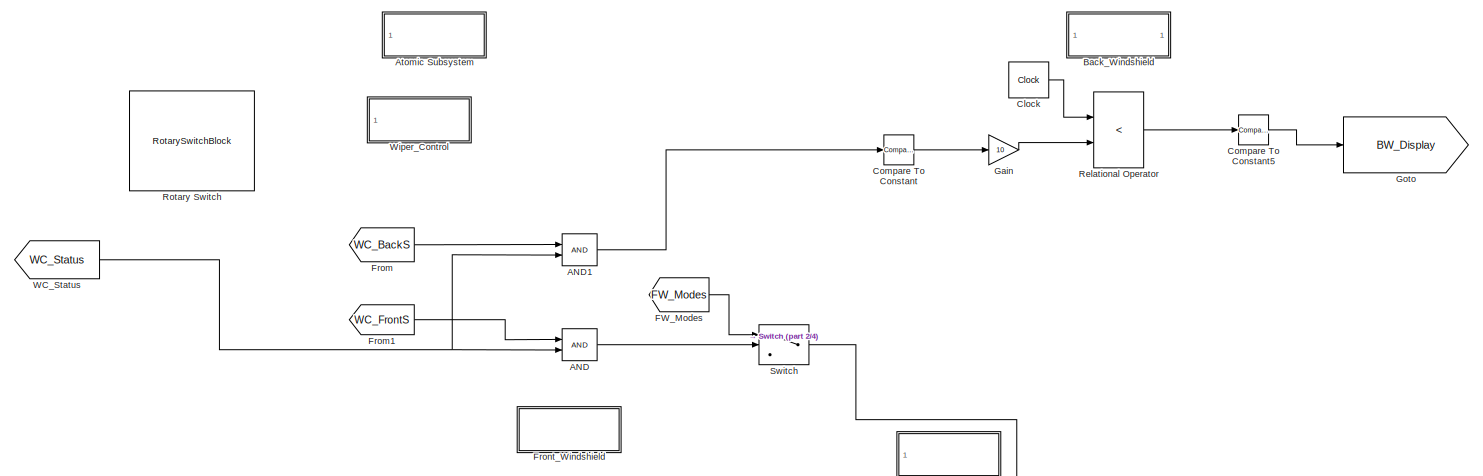
[diagram: MODULES/WIPER_CONTROL - part 1/4, top left region]
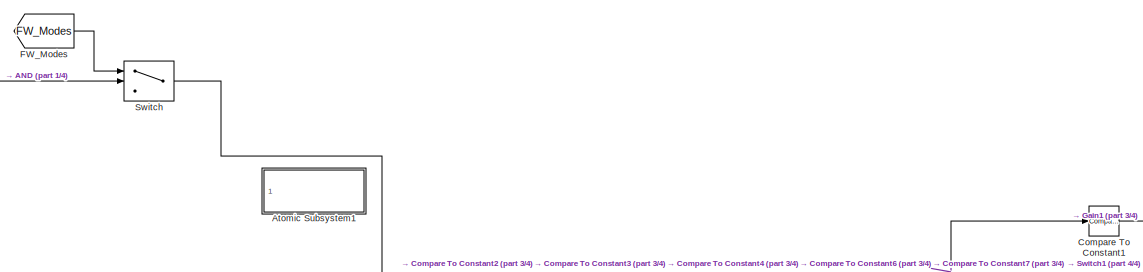
[diagram: MODULES/WIPER_CONTROL - part 2/4, top center region]
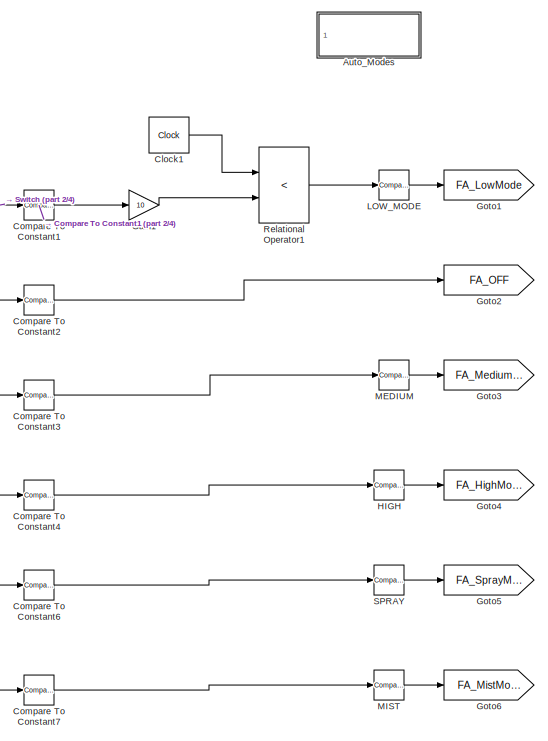
[diagram: MODULES/WIPER_CONTROL - part 3/4, middle right region]
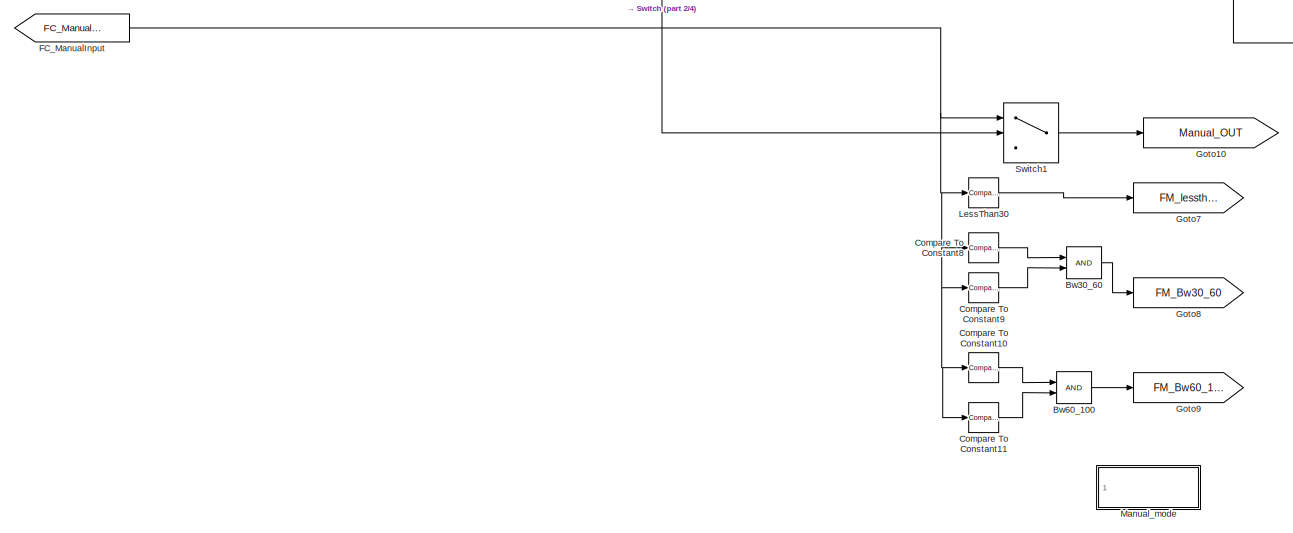
[diagram: MODULES/WIPER_CONTROL - part 4/4, bottom center region]
BLOCK [SubSystem] MODULES/WIPER_CONTROL
  Ports = []
  RequestExecContextInheritance = off
BLOCK [Logic] MODULES/WIPER_CONTROL/AND
  AllPortsSameDT = off
  IconShape = distinctive
  OutDataTypeStr = boolean
  Ports = [2, 1]
BLOCK [Logic] MODULES/WIPER_CONTROL/AND1
  AllPortsSameDT = off
  IconShape = distinctive
  OutDataTypeStr = boolean
  Ports = [2, 1]
BLOCK [SubSystem] MODULES/WIPER_CONTROL/Atomic Subsystem
  Commented = on
  Ports = [1]
  RequestExecContextInheritance = off
  TreatAsAtomicUnit = on
BLOCK [Clock] MODULES/WIPER_CONTROL/Atomic Subsystem/Clock
  Decimation = 5
  DisplayTime = on
BLOCK [Reference] MODULES/WIPER_CONTROL/Atomic Subsystem/Compare To Constant  REF=simulink/Logic and Bit
Operations/Compare
To Constant
  Ports = [1, 1]
  SourceBlock = simulink/Logic and Bit\nOperations/Compare\nTo Constant
  SourceProductBaseCode = SL
  SourceType = Compare To Constant
BLOCK [Reference] MODULES/WIPER_CONTROL/Atomic Subsystem/Compare To Constant5  REF=simulink/Logic and Bit
Operations/Compare
To Constant
  Ports = [1, 1]
  SourceBlock = simulink/Logic and Bit\nOperations/Compare\nTo Constant
  SourceProductBaseCode = SL
  SourceType = Compare To Constant
BLOCK [Gain] MODULES/WIPER_CONTROL/Atomic Subsystem/Gain
  Gain = 10
BLOCK [Goto] MODULES/WIPER_CONTROL/Atomic Subsystem/Goto
  GotoTag = BW_Display
  TagVisibility = global
BLOCK [Inport] MODULES/WIPER_CONTROL/Atomic Subsystem/Inport
BLOCK [RelationalOperator] MODULES/WIPER_CONTROL/Atomic Subsystem/Relational Operator
  InputSameDT = off
  Operator = <
  OutDataTypeStr = boolean
  Ports = [2, 1]
  RndMeth = Simplest
BLOCK [SubSystem] MODULES/WIPER_CONTROL/Atomic Subsystem1
  Commented = on
  Ports = [1]
  RequestExecContextInheritance = off
  TreatAsAtomicUnit = on
BLOCK [SubSystem] MODULES/WIPER_CONTROL/Atomic Subsystem1/Auto_Modes
  Ports = [1]
  RequestExecContextInheritance = off
BLOCK [Clock] MODULES/WIPER_CONTROL/Atomic Subsystem1/Auto_Modes/Clock
  Decimation = 5
  DisplayTime = on
BLOCK [Clock] MODULES/WIPER_CONTROL/Atomic Subsystem1/Auto_Modes/Clock2
  Decimation = 5
  DisplayTime = on
BLOCK [Clock] MODULES/WIPER_CONTROL/Atomic Subsystem1/Auto_Modes/Clock3
  Decimation = 5
  DisplayTime = on
BLOCK [Clock] MODULES/WIPER_CONTROL/Atomic Subsystem1/Auto_Modes/Clock4
  Decimation = 5
  DisplayTime = on
BLOCK [Clock] MODULES/WIPER_CONTROL/Atomic Subsystem1/Auto_Modes/Clock5
  Decimation = 5
  DisplayTime = on
BLOCK [Reference] MODULES/WIPER_CONTROL/Atomic Subsystem1/Auto_Modes/Compare To Constant  REF=simulink/Logic and Bit
Operations/Compare
To Constant
  Ports = [1, 1]
  SourceBlock = simulink/Logic and Bit\nOperations/Compare\nTo Constant
  SourceProductBaseCode = SL
  SourceType = Compare To Constant
BLOCK [Reference] MODULES/WIPER_CONTROL/Atomic Subsystem1/Auto_Modes/Compare To Constant1  REF=simulink/Logic and Bit
Operations/Compare
To Constant
  Ports = [1, 1]
  SourceBlock = simulink/Logic and Bit\nOperations/Compare\nTo Constant
  SourceProductBaseCode = SL
  SourceType = Compare To Constant
BLOCK [Reference] MODULES/WIPER_CONTROL/Atomic Subsystem1/Auto_Modes/Compare To Constant2  REF=simulink/Logic and Bit
Operations/Compare
To Constant
  Ports = [1, 1]
  SourceBlock = simulink/Logic and Bit\nOperations/Compare\nTo Constant
  SourceProductBaseCode = SL
  SourceType = Compare To Constant
BLOCK [Reference] MODULES/WIPER_CONTROL/Atomic Subsystem1/Auto_Modes/Compare To Constant3  REF=simulink/Logic and Bit
Operations/Compare
To Constant
  Ports = [1, 1]
  SourceBlock = simulink/Logic and Bit\nOperations/Compare\nTo Constant
  SourceProductBaseCode = SL
  SourceType = Compare To Constant
BLOCK [Reference] MODULES/WIPER_CONTROL/Atomic Subsystem1/Auto_Modes/Compare To Constant4  REF=simulink/Logic and Bit
Operations/Compare
To Constant
  Ports = [1, 1]
  SourceBlock = simulink/Logic and Bit\nOperations/Compare\nTo Constant
  SourceProductBaseCode = SL
  SourceType = Compare To Constant
BLOCK [Reference] MODULES/WIPER_CONTROL/Atomic Subsystem1/Auto_Modes/Compare To Constant6  REF=simulink/Logic and Bit
Operations/Compare
To Constant
  Ports = [1, 1]
  SourceBlock = simulink/Logic and Bit\nOperations/Compare\nTo Constant
  SourceProductBaseCode = SL
  SourceType = Compare To Constant
BLOCK [Gain] MODULES/WIPER_CONTROL/Atomic Subsystem1/Auto_Modes/Gain
  Gain = 10
BLOCK [Gain] MODULES/WIPER_CONTROL/Atomic Subsystem1/Auto_Modes/Gain2
  Gain = 7
BLOCK [Gain] MODULES/WIPER_CONTROL/Atomic Subsystem1/Auto_Modes/Gain3
  Gain = 5
BLOCK [Gain] MODULES/WIPER_CONTROL/Atomic Subsystem1/Auto_Modes/Gain4
  Gain = 5
BLOCK [Gain] MODULES/WIPER_CONTROL/Atomic Subsystem1/Auto_Modes/Gain5
  Gain = 3
BLOCK [Goto] MODULES/WIPER_CONTROL/Atomic Subsystem1/Auto_Modes/Goto
  GotoTag = FA_LowMode
  TagVisibility = global
BLOCK [Goto] MODULES/WIPER_CONTROL/Atomic Subsystem1/Auto_Modes/Goto1
  GotoTag = FA_OFF
  TagVisibility = global
BLOCK [Goto] MODULES/WIPER_CONTROL/Atomic Subsystem1/Auto_Modes/Goto2
  GotoTag = FA_MediumMode
  TagVisibility = global
BLOCK [Goto] MODULES/WIPER_CONTROL/Atomic Subsystem1/Auto_Modes/Goto3
  GotoTag = FA_HighMode
  TagVisibility = global
BLOCK [Goto] MODULES/WIPER_CONTROL/Atomic Subsystem1/Auto_Modes/Goto4
  GotoTag = FA_SprayMode
  TagVisibility = global
BLOCK [Goto] MODULES/WIPER_CONTROL/Atomic Subsystem1/Auto_Modes/Goto5
  GotoTag = FA_MistMode
  TagVisibility = global
BLOCK [Reference] MODULES/WIPER_CONTROL/Atomic Subsystem1/Auto_Modes/HIGH  REF=simulink/Logic and Bit
Operations/Compare
To Constant
  Ports = [1, 1]
  SourceBlock = simulink/Logic and Bit\nOperations/Compare\nTo Constant
  SourceProductBaseCode = SL
  SourceType = Compare To Constant
BLOCK [Inport] MODULES/WIPER_CONTROL/Atomic Subsystem1/Auto_Modes/In1
BLOCK [Reference] MODULES/WIPER_CONTROL/Atomic Subsystem1/Auto_Modes/LOW_MODE  REF=simulink/Logic and Bit
Operations/Compare
To Constant
  Ports = [1, 1]
  SourceBlock = simulink/Logic and Bit\nOperations/Compare\nTo Constant
  SourceProductBaseCode = SL
  SourceType = Compare To Constant
BLOCK [Reference] MODULES/WIPER_CONTROL/Atomic Subsystem1/Auto_Modes/MEDIUM  REF=simulink/Logic and Bit
Operations/Compare
To Constant
  Ports = [1, 1]
  SourceBlock = simulink/Logic and Bit\nOperations/Compare\nTo Constant
  SourceProductBaseCode = SL
  SourceType = Compare To Constant
BLOCK [Reference] MODULES/WIPER_CONTROL/Atomic Subsystem1/Auto_Modes/MIST  REF=simulink/Logic and Bit
Operations/Compare
To Constant
  Ports = [1, 1]
  SourceBlock = simulink/Logic and Bit\nOperations/Compare\nTo Constant
  SourceProductBaseCode = SL
  SourceType = Compare To Constant
BLOCK [RelationalOperator] MODULES/WIPER_CONTROL/Atomic Subsystem1/Auto_Modes/Relational Operator
  InputSameDT = off
  Operator = <
  OutDataTypeStr = boolean
  Ports = [2, 1]
  RndMeth = Simplest
BLOCK [RelationalOperator] MODULES/WIPER_CONTROL/Atomic Subsystem1/Auto_Modes/Relational Operator2
  InputSameDT = off
  Operator = <
  OutDataTypeStr = boolean
  Ports = [2, 1]
  RndMeth = Simplest
BLOCK [RelationalOperator] MODULES/WIPER_CONTROL/Atomic Subsystem1/Auto_Modes/Relational Operator3
  InputSameDT = off
  Operator = <
  OutDataTypeStr = boolean
  Ports = [2, 1]
  RndMeth = Simplest
BLOCK [RelationalOperator] MODULES/WIPER_CONTROL/Atomic Subsystem1/Auto_Modes/Relational Operator4
  InputSameDT = off
  Operator = <
  OutDataTypeStr = boolean
  Ports = [2, 1]
  RndMeth = Simplest
BLOCK [RelationalOperator] MODULES/WIPER_CONTROL/Atomic Subsystem1/Auto_Modes/Relational Operator5
  InputSameDT = off
  Operator = <
  OutDataTypeStr = boolean
  Ports = [2, 1]
  RndMeth = Simplest
BLOCK [Reference] MODULES/WIPER_CONTROL/Atomic Subsystem1/Auto_Modes/SPRAY  REF=simulink/Logic and Bit
Operations/Compare
To Constant
  Ports = [1, 1]
  SourceBlock = simulink/Logic and Bit\nOperations/Compare\nTo Constant
  SourceProductBaseCode = SL
  SourceType = Compare To Constant
BLOCK [Display] MODULES/WIPER_CONTROL/Atomic Subsystem1/Display
  Decimation = 1
  Ports = [1]
BLOCK [From] MODULES/WIPER_CONTROL/Atomic Subsystem1/FW_Modes
  GotoTag = FW_Modes
  TagVisibility = global
BLOCK [Inport] MODULES/WIPER_CONTROL/Atomic Subsystem1/Inport
BLOCK [SubSystem] MODULES/WIPER_CONTROL/Atomic Subsystem1/Manual_mode
  Ports = [1]
  RequestExecContextInheritance = off
BLOCK [Logic] MODULES/WIPER_CONTROL/Atomic Subsystem1/Manual_mode/Bw30_60
  AllPortsSameDT = off
  IconShape = distinctive
  OutDataTypeStr = boolean
  Ports = [2, 1]
BLOCK [Logic] MODULES/WIPER_CONTROL/Atomic Subsystem1/Manual_mode/Bw60_100
  AllPortsSameDT = off
  IconShape = distinctive
  OutDataTypeStr = boolean
  Ports = [2, 1]
BLOCK [Reference] MODULES/WIPER_CONTROL/Atomic Subsystem1/Manual_mode/Compare To Constant1  REF=simulink/Logic and Bit
Operations/Compare
To Constant
  Ports = [1, 1]
  SourceBlock = simulink/Logic and Bit\nOperations/Compare\nTo Constant
  SourceProductBaseCode = SL
  SourceType = Compare To Constant
BLOCK [Reference] MODULES/WIPER_CONTROL/Atomic Subsystem1/Manual_mode/Compare To Constant2  REF=simulink/Logic and Bit
Operations/Compare
To Constant
  Ports = [1, 1]
  SourceBlock = simulink/Logic and Bit\nOperations/Compare\nTo Constant
  SourceProductBaseCode = SL
  SourceType = Compare To Constant
BLOCK [Reference] MODULES/WIPER_CONTROL/Atomic Subsystem1/Manual_mode/Compare To Constant3  REF=simulink/Logic and Bit
Operations/Compare
To Constant
  Ports = [1, 1]
  SourceBlock = simulink/Logic and Bit\nOperations/Compare\nTo Constant
  SourceProductBaseCode = SL
  SourceType = Compare To Constant
BLOCK [Reference] MODULES/WIPER_CONTROL/Atomic Subsystem1/Manual_mode/Compare To Constant4  REF=simulink/Logic and Bit
Operations/Compare
To Constant
  Ports = [1, 1]
  SourceBlock = simulink/Logic and Bit\nOperations/Compare\nTo Constant
  SourceProductBaseCode = SL
  SourceType = Compare To Constant
BLOCK [Display] MODULES/WIPER_CONTROL/Atomic Subsystem1/Manual_mode/Display
  Decimation = 1
  Ports = [1]
BLOCK [From] MODULES/WIPER_CONTROL/Atomic Subsystem1/Manual_mode/FC_ManualInput
  GotoTag = FC_ManualInput
  TagVisibility = global
BLOCK [Goto] MODULES/WIPER_CONTROL/Atomic Subsystem1/Manual_mode/Goto
  GotoTag = FM_lessthan30
  TagVisibility = global
BLOCK [Goto] MODULES/WIPER_CONTROL/Atomic Subsystem1/Manual_mode/Goto1
  GotoTag = FM_Bw30_60
  TagVisibility = global
BLOCK [Goto] MODULES/WIPER_CONTROL/Atomic Subsystem1/Manual_mode/Goto2
  GotoTag = FM_Bw60_100
  TagVisibility = global
BLOCK [Inport] MODULES/WIPER_CONTROL/Atomic Subsystem1/Manual_mode/In1
BLOCK [Reference] MODULES/WIPER_CONTROL/Atomic Subsystem1/Manual_mode/LessThan30  REF=simulink/Logic and Bit
Operations/Compare
To Constant
  Ports = [1, 1]
  SourceBlock = simulink/Logic and Bit\nOperations/Compare\nTo Constant
  SourceProductBaseCode = SL
  SourceType = Compare To Constant
BLOCK [SliderBlock] MODULES/WIPER_CONTROL/Atomic Subsystem1/Manual_mode/Slider
BLOCK [StringConstant] MODULES/WIPER_CONTROL/Atomic Subsystem1/Manual_mode/String Constant
  String = "Undefined!"
BLOCK [Switch] MODULES/WIPER_CONTROL/Atomic Subsystem1/Manual_mode/Switch
  Criteria = u2 > Threshold
  InputSameDT = off
  SaturateOnIntegerOverflow = off
  Threshold = 5
BLOCK [SubSystem] MODULES/WIPER_CONTROL/Auto_Modes
  Commented = on
  Ports = [1]
  RequestExecContextInheritance = off
BLOCK [Clock] MODULES/WIPER_CONTROL/Auto_Modes/Clock
  Decimation = 5
  DisplayTime = on
BLOCK [Clock] MODULES/WIPER_CONTROL/Auto_Modes/Clock2
  Decimation = 5
  DisplayTime = on
BLOCK [Clock] MODULES/WIPER_CONTROL/Auto_Modes/Clock3
  Decimation = 5
  DisplayTime = on
BLOCK [Clock] MODULES/WIPER_CONTROL/Auto_Modes/Clock4
  Decimation = 5
  DisplayTime = on
BLOCK [Clock] MODULES/WIPER_CONTROL/Auto_Modes/Clock5
  Decimation = 5
  DisplayTime = on
BLOCK [Reference] MODULES/WIPER_CONTROL/Auto_Modes/Compare To Constant  REF=simulink/Logic and Bit
Operations/Compare
To Constant
  Ports = [1, 1]
  SourceBlock = simulink/Logic and Bit\nOperations/Compare\nTo Constant
  SourceProductBaseCode = SL
  SourceType = Compare To Constant
BLOCK [Reference] MODULES/WIPER_CONTROL/Auto_Modes/Compare To Constant1  REF=simulink/Logic and Bit
Operations/Compare
To Constant
  Ports = [1, 1]
  SourceBlock = simulink/Logic and Bit\nOperations/Compare\nTo Constant
  SourceProductBaseCode = SL
  SourceType = Compare To Constant
BLOCK [Reference] MODULES/WIPER_CONTROL/Auto_Modes/Compare To Constant2  REF=simulink/Logic and Bit
Operations/Compare
To Constant
  Ports = [1, 1]
  SourceBlock = simulink/Logic and Bit\nOperations/Compare\nTo Constant
  SourceProductBaseCode = SL
  SourceType = Compare To Constant
BLOCK [Reference] MODULES/WIPER_CONTROL/Auto_Modes/Compare To Constant3  REF=simulink/Logic and Bit
Operations/Compare
To Constant
  Ports = [1, 1]
  SourceBlock = simulink/Logic and Bit\nOperations/Compare\nTo Constant
  SourceProductBaseCode = SL
  SourceType = Compare To Constant
BLOCK [Reference] MODULES/WIPER_CONTROL/Auto_Modes/Compare To Constant4  REF=simulink/Logic and Bit
Operations/Compare
To Constant
  Ports = [1, 1]
  SourceBlock = simulink/Logic and Bit\nOperations/Compare\nTo Constant
  SourceProductBaseCode = SL
  SourceType = Compare To Constant
BLOCK [Reference] MODULES/WIPER_CONTROL/Auto_Modes/Compare To Constant6  REF=simulink/Logic and Bit
Operations/Compare
To Constant
  Ports = [1, 1]
  SourceBlock = simulink/Logic and Bit\nOperations/Compare\nTo Constant
  SourceProductBaseCode = SL
  SourceType = Compare To Constant
BLOCK [Gain] MODULES/WIPER_CONTROL/Auto_Modes/Gain
  Gain = 10
BLOCK [Gain] MODULES/WIPER_CONTROL/Auto_Modes/Gain2
  Gain = 7
BLOCK [Gain] MODULES/WIPER_CONTROL/Auto_Modes/Gain3
  Gain = 5
BLOCK [Gain] MODULES/WIPER_CONTROL/Auto_Modes/Gain4
  Gain = 5
BLOCK [Gain] MODULES/WIPER_CONTROL/Auto_Modes/Gain5
  Gain = 3
BLOCK [Goto] MODULES/WIPER_CONTROL/Auto_Modes/Goto
  GotoTag = FA_LowMode
  TagVisibility = global
BLOCK [Goto] MODULES/WIPER_CONTROL/Auto_Modes/Goto1
  GotoTag = FA_OFF
  TagVisibility = global
BLOCK [Goto] MODULES/WIPER_CONTROL/Auto_Modes/Goto2
  GotoTag = FA_MediumMode
  TagVisibility = global
BLOCK [Goto] MODULES/WIPER_CONTROL/Auto_Modes/Goto3
  GotoTag = FA_HighMode
  TagVisibility = global
BLOCK [Goto] MODULES/WIPER_CONTROL/Auto_Modes/Goto4
  GotoTag = FA_SprayMode
  TagVisibility = global
BLOCK [Goto] MODULES/WIPER_CONTROL/Auto_Modes/Goto5
  GotoTag = FA_MistMode
  TagVisibility = global
BLOCK [Reference] MODULES/WIPER_CONTROL/Auto_Modes/HIGH  REF=simulink/Logic and Bit
Operations/Compare
To Constant
  Ports = [1, 1]
  SourceBlock = simulink/Logic and Bit\nOperations/Compare\nTo Constant
  SourceProductBaseCode = SL
  SourceType = Compare To Constant
BLOCK [Inport] MODULES/WIPER_CONTROL/Auto_Modes/In1
BLOCK [Reference] MODULES/WIPER_CONTROL/Auto_Modes/LOW_MODE  REF=simulink/Logic and Bit
Operations/Compare
To Constant
  Ports = [1, 1]
  SourceBlock = simulink/Logic and Bit\nOperations/Compare\nTo Constant
  SourceProductBaseCode = SL
  SourceType = Compare To Constant
BLOCK [Reference] MODULES/WIPER_CONTROL/Auto_Modes/MEDIUM  REF=simulink/Logic and Bit
Operations/Compare
To Constant
  Ports = [1, 1]
  SourceBlock = simulink/Logic and Bit\nOperations/Compare\nTo Constant
  SourceProductBaseCode = SL
  SourceType = Compare To Constant
BLOCK [Reference] MODULES/WIPER_CONTROL/Auto_Modes/MIST  REF=simulink/Logic and Bit
Operations/Compare
To Constant
  Ports = [1, 1]
  SourceBlock = simulink/Logic and Bit\nOperations/Compare\nTo Constant
  SourceProductBaseCode = SL
  SourceType = Compare To Constant
BLOCK [RelationalOperator] MODULES/WIPER_CONTROL/Auto_Modes/Relational Operator
  InputSameDT = off
  Operator = <
  OutDataTypeStr = boolean
  Ports = [2, 1]
  RndMeth = Simplest
BLOCK [RelationalOperator] MODULES/WIPER_CONTROL/Auto_Modes/Relational Operator2
  InputSameDT = off
  Operator = <
  OutDataTypeStr = boolean
  Ports = [2, 1]
  RndMeth = Simplest
BLOCK [RelationalOperator] MODULES/WIPER_CONTROL/Auto_Modes/Relational Operator3
  InputSameDT = off
  Operator = <
  OutDataTypeStr = boolean
  Ports = [2, 1]
  RndMeth = Simplest
BLOCK [RelationalOperator] MODULES/WIPER_CONTROL/Auto_Modes/Relational Operator4
  InputSameDT = off
  Operator = <
  OutDataTypeStr = boolean
  Ports = [2, 1]
  RndMeth = Simplest
BLOCK [RelationalOperator] MODULES/WIPER_CONTROL/Auto_Modes/Relational Operator5
  InputSameDT = off
  Operator = <
  OutDataTypeStr = boolean
  Ports = [2, 1]
  RndMeth = Simplest
BLOCK [Reference] MODULES/WIPER_CONTROL/Auto_Modes/SPRAY  REF=simulink/Logic and Bit
Operations/Compare
To Constant
  Ports = [1, 1]
  SourceBlock = simulink/Logic and Bit\nOperations/Compare\nTo Constant
  SourceProductBaseCode = SL
  SourceType = Compare To Constant
BLOCK [SubSystem] MODULES/WIPER_CONTROL/Back_Windshield
  Commented = on
  Ports = []
  RequestExecContextInheritance = off
  TreatAsAtomicUnit = on
BLOCK [LampBlock] MODULES/WIPER_CONTROL/Back_Windshield/Lamp
BLOCK [Logic] MODULES/WIPER_CONTROL/Bw30_60
  AllPortsSameDT = off
  IconShape = distinctive
  OutDataTypeStr = boolean
  Ports = [2, 1]
BLOCK [Logic] MODULES/WIPER_CONTROL/Bw60_100
  AllPortsSameDT = off
  IconShape = distinctive
  OutDataTypeStr = boolean
  Ports = [2, 1]
BLOCK [Clock] MODULES/WIPER_CONTROL/Clock
  Decimation = 5
  DisplayTime = on
BLOCK [Clock] MODULES/WIPER_CONTROL/Clock1
  Decimation = 5
  DisplayTime = on
BLOCK [Reference] MODULES/WIPER_CONTROL/Compare To Constant  REF=simulink/Logic and Bit
Operations/Compare
To Constant
  Ports = [1, 1]
  SourceBlock = simulink/Logic and Bit\nOperations/Compare\nTo Constant
  SourceProductBaseCode = SL
  SourceType = Compare To Constant
BLOCK [Reference] MODULES/WIPER_CONTROL/Compare To Constant1  REF=simulink/Logic and Bit
Operations/Compare
To Constant
  Ports = [1, 1]
  SourceBlock = simulink/Logic and Bit\nOperations/Compare\nTo Constant
  SourceProductBaseCode = SL
  SourceType = Compare To Constant
BLOCK [Reference] MODULES/WIPER_CONTROL/Compare To Constant10  REF=simulink/Logic and Bit
Operations/Compare
To Constant
  Ports = [1, 1]
  SourceBlock = simulink/Logic and Bit\nOperations/Compare\nTo Constant
  SourceProductBaseCode = SL
  SourceType = Compare To Constant
BLOCK [Reference] MODULES/WIPER_CONTROL/Compare To Constant11  REF=simulink/Logic and Bit
Operations/Compare
To Constant
  Ports = [1, 1]
  SourceBlock = simulink/Logic and Bit\nOperations/Compare\nTo Constant
  SourceProductBaseCode = SL
  SourceType = Compare To Constant
BLOCK [Reference] MODULES/WIPER_CONTROL/Compare To Constant2  REF=simulink/Logic and Bit
Operations/Compare
To Constant
  Ports = [1, 1]
  SourceBlock = simulink/Logic and Bit\nOperations/Compare\nTo Constant
  SourceProductBaseCode = SL
  SourceType = Compare To Constant
BLOCK [Reference] MODULES/WIPER_CONTROL/Compare To Constant3  REF=simulink/Logic and Bit
Operations/Compare
To Constant
  Ports = [1, 1]
  SourceBlock = simulink/Logic and Bit\nOperations/Compare\nTo Constant
  SourceProductBaseCode = SL
  SourceType = Compare To Constant
BLOCK [Reference] MODULES/WIPER_CONTROL/Compare To Constant4  REF=simulink/Logic and Bit
Operations/Compare
To Constant
  Ports = [1, 1]
  SourceBlock = simulink/Logic and Bit\nOperations/Compare\nTo Constant
  SourceProductBaseCode = SL
  SourceType = Compare To Constant
BLOCK [Reference] MODULES/WIPER_CONTROL/Compare To Constant5  REF=simulink/Logic and Bit
Operations/Compare
To Constant
  Ports = [1, 1]
  SourceBlock = simulink/Logic and Bit\nOperations/Compare\nTo Constant
  SourceProductBaseCode = SL
  SourceType = Compare To Constant
BLOCK [Reference] MODULES/WIPER_CONTROL/Compare To Constant6  REF=simulink/Logic and Bit
Operations/Compare
To Constant
  Ports = [1, 1]
  SourceBlock = simulink/Logic and Bit\nOperations/Compare\nTo Constant
  SourceProductBaseCode = SL
  SourceType = Compare To Constant
BLOCK [Reference] MODULES/WIPER_CONTROL/Compare To Constant7  REF=simulink/Logic and Bit
Operations/Compare
To Constant
  Ports = [1, 1]
  SourceBlock = simulink/Logic and Bit\nOperations/Compare\nTo Constant
  SourceProductBaseCode = SL
  SourceType = Compare To Constant
BLOCK [Reference] MODULES/WIPER_CONTROL/Compare To Constant8  REF=simulink/Logic and Bit
Operations/Compare
To Constant
  Ports = [1, 1]
  SourceBlock = simulink/Logic and Bit\nOperations/Compare\nTo Constant
  SourceProductBaseCode = SL
  SourceType = Compare To Constant
BLOCK [Reference] MODULES/WIPER_CONTROL/Compare To Constant9  REF=simulink/Logic and Bit
Operations/Compare
To Constant
  Ports = [1, 1]
  SourceBlock = simulink/Logic and Bit\nOperations/Compare\nTo Constant
  SourceProductBaseCode = SL
  SourceType = Compare To Constant
BLOCK [From] MODULES/WIPER_CONTROL/FC_ManualInput
  GotoTag = FC_ManualInput
  TagVisibility = global
BLOCK [From] MODULES/WIPER_CONTROL/FW_Modes
  GotoTag = FW_Modes
  TagVisibility = global
BLOCK [From] MODULES/WIPER_CONTROL/From
  GotoTag = WC_BackS
  TagVisibility = global
BLOCK [From] MODULES/WIPER_CONTROL/From1
  GotoTag = WC_FrontS
  TagVisibility = global
BLOCK [SubSystem] MODULES/WIPER_CONTROL/Front_Windshield
  Commented = on
  Ports = [0, 0, 1]
  RequestExecContextInheritance = off
  TreatAsAtomicUnit = on
BLOCK [SubSystem] MODULES/WIPER_CONTROL/Front_Windshield/Auto_Modes
  Ports = [1]
  RequestExecContextInheritance = off
BLOCK [Clock] MODULES/WIPER_CONTROL/Front_Windshield/Auto_Modes/Clock
  Decimation = 5
  DisplayTime = on
BLOCK [Clock] MODULES/WIPER_CONTROL/Front_Windshield/Auto_Modes/Clock2
  Decimation = 5
  DisplayTime = on
BLOCK [Clock] MODULES/WIPER_CONTROL/Front_Windshield/Auto_Modes/Clock3
  Decimation = 5
  DisplayTime = on
BLOCK [Clock] MODULES/WIPER_CONTROL/Front_Windshield/Auto_Modes/Clock4
  Decimation = 5
  DisplayTime = on
BLOCK [Clock] MODULES/WIPER_CONTROL/Front_Windshield/Auto_Modes/Clock5
  Decimation = 5
  DisplayTime = on
BLOCK [Reference] MODULES/WIPER_CONTROL/Front_Windshield/Auto_Modes/Compare To Constant  REF=simulink/Logic and Bit
Operations/Compare
To Constant
  Ports = [1, 1]
  SourceBlock = simulink/Logic and Bit\nOperations/Compare\nTo Constant
  SourceProductBaseCode = SL
  SourceType = Compare To Constant
BLOCK [Reference] MODULES/WIPER_CONTROL/Front_Windshield/Auto_Modes/Compare To Constant1  REF=simulink/Logic and Bit
Operations/Compare
To Constant
  Ports = [1, 1]
  SourceBlock = simulink/Logic and Bit\nOperations/Compare\nTo Constant
  SourceProductBaseCode = SL
  SourceType = Compare To Constant
BLOCK [Reference] MODULES/WIPER_CONTROL/Front_Windshield/Auto_Modes/Compare To Constant2  REF=simulink/Logic and Bit
Operations/Compare
To Constant
  Ports = [1, 1]
  SourceBlock = simulink/Logic and Bit\nOperations/Compare\nTo Constant
  SourceProductBaseCode = SL
  SourceType = Compare To Constant
BLOCK [Reference] MODULES/WIPER_CONTROL/Front_Windshield/Auto_Modes/Compare To Constant3  REF=simulink/Logic and Bit
Operations/Compare
To Constant
  Ports = [1, 1]
  SourceBlock = simulink/Logic and Bit\nOperations/Compare\nTo Constant
  SourceProductBaseCode = SL
  SourceType = Compare To Constant
BLOCK [Reference] MODULES/WIPER_CONTROL/Front_Windshield/Auto_Modes/Compare To Constant4  REF=simulink/Logic and Bit
Operations/Compare
To Constant
  Ports = [1, 1]
  SourceBlock = simulink/Logic and Bit\nOperations/Compare\nTo Constant
  SourceProductBaseCode = SL
  SourceType = Compare To Constant
BLOCK [Reference] MODULES/WIPER_CONTROL/Front_Windshield/Auto_Modes/Compare To Constant6  REF=simulink/Logic and Bit
Operations/Compare
To Constant
  Ports = [1, 1]
  SourceBlock = simulink/Logic and Bit\nOperations/Compare\nTo Constant
  SourceProductBaseCode = SL
  SourceType = Compare To Constant
BLOCK [Gain] MODULES/WIPER_CONTROL/Front_Windshield/Auto_Modes/Gain
  Gain = 10
BLOCK [Gain] MODULES/WIPER_CONTROL/Front_Windshield/Auto_Modes/Gain2
  Gain = 7
BLOCK [Gain] MODULES/WIPER_CONTROL/Front_Windshield/Auto_Modes/Gain3
  Gain = 5
BLOCK [Gain] MODULES/WIPER_CONTROL/Front_Windshield/Auto_Modes/Gain4
  Gain = 5
BLOCK [Gain] MODULES/WIPER_CONTROL/Front_Windshield/Auto_Modes/Gain5
  Gain = 3
BLOCK [Goto] MODULES/WIPER_CONTROL/Front_Windshield/Auto_Modes/Goto
  GotoTag = FA_LowMode
  TagVisibility = global
BLOCK [Goto] MODULES/WIPER_CONTROL/Front_Windshield/Auto_Modes/Goto1
  GotoTag = FA_OFF
  TagVisibility = global
BLOCK [Goto] MODULES/WIPER_CONTROL/Front_Windshield/Auto_Modes/Goto2
  GotoTag = FA_MediumMode
  TagVisibility = global
BLOCK [Goto] MODULES/WIPER_CONTROL/Front_Windshield/Auto_Modes/Goto3
  GotoTag = FA_HighMode
  TagVisibility = global
BLOCK [Goto] MODULES/WIPER_CONTROL/Front_Windshield/Auto_Modes/Goto4
  GotoTag = FA_SprayMode
  TagVisibility = global
BLOCK [Goto] MODULES/WIPER_CONTROL/Front_Windshield/Auto_Modes/Goto5
  GotoTag = FA_MistMode
  TagVisibility = global
BLOCK [Reference] MODULES/WIPER_CONTROL/Front_Windshield/Auto_Modes/HIGH  REF=simulink/Logic and Bit
Operations/Compare
To Constant
  Ports = [1, 1]
  SourceBlock = simulink/Logic and Bit\nOperations/Compare\nTo Constant
  SourceProductBaseCode = SL
  SourceType = Compare To Constant
BLOCK [Inport] MODULES/WIPER_CONTROL/Front_Windshield/Auto_Modes/In1
BLOCK [Reference] MODULES/WIPER_CONTROL/Front_Windshield/Auto_Modes/LOW_MODE  REF=simulink/Logic and Bit
Operations/Compare
To Constant
  Ports = [1, 1]
  SourceBlock = simulink/Logic and Bit\nOperations/Compare\nTo Constant
  SourceProductBaseCode = SL
  SourceType = Compare To Constant
BLOCK [Reference] MODULES/WIPER_CONTROL/Front_Windshield/Auto_Modes/MEDIUM  REF=simulink/Logic and Bit
Operations/Compare
To Constant
  Ports = [1, 1]
  SourceBlock = simulink/Logic and Bit\nOperations/Compare\nTo Constant
  SourceProductBaseCode = SL
  SourceType = Compare To Constant
BLOCK [Reference] MODULES/WIPER_CONTROL/Front_Windshield/Auto_Modes/MIST  REF=simulink/Logic and Bit
Operations/Compare
To Constant
  Ports = [1, 1]
  SourceBlock = simulink/Logic and Bit\nOperations/Compare\nTo Constant
  SourceProductBaseCode = SL
  SourceType = Compare To Constant
BLOCK [RelationalOperator] MODULES/WIPER_CONTROL/Front_Windshield/Auto_Modes/Relational Operator
  InputSameDT = off
  Operator = <
  OutDataTypeStr = boolean
  Ports = [2, 1]
  RndMeth = Simplest
BLOCK [RelationalOperator] MODULES/WIPER_CONTROL/Front_Windshield/Auto_Modes/Relational Operator2
  InputSameDT = off
  Operator = <
  OutDataTypeStr = boolean
  Ports = [2, 1]
  RndMeth = Simplest
BLOCK [RelationalOperator] MODULES/WIPER_CONTROL/Front_Windshield/Auto_Modes/Relational Operator3
  InputSameDT = off
  Operator = <
  OutDataTypeStr = boolean
  Ports = [2, 1]
  RndMeth = Simplest
BLOCK [RelationalOperator] MODULES/WIPER_CONTROL/Front_Windshield/Auto_Modes/Relational Operator4
  InputSameDT = off
  Operator = <
  OutDataTypeStr = boolean
  Ports = [2, 1]
  RndMeth = Simplest
BLOCK [RelationalOperator] MODULES/WIPER_CONTROL/Front_Windshield/Auto_Modes/Relational Operator5
  InputSameDT = off
  Operator = <
  OutDataTypeStr = boolean
  Ports = [2, 1]
  RndMeth = Simplest
BLOCK [Reference] MODULES/WIPER_CONTROL/Front_Windshield/Auto_Modes/SPRAY  REF=simulink/Logic and Bit
Operations/Compare
To Constant
  Ports = [1, 1]
  SourceBlock = simulink/Logic and Bit\nOperations/Compare\nTo Constant
  SourceProductBaseCode = SL
  SourceType = Compare To Constant
BLOCK [EnablePort] MODULES/WIPER_CONTROL/Front_Windshield/Enable
  Ports = []
BLOCK [From] MODULES/WIPER_CONTROL/Front_Windshield/FW_Modes
  GotoTag = FW_Modes
  TagVisibility = global
BLOCK [SubSystem] MODULES/WIPER_CONTROL/Front_Windshield/Manual_mode
  Ports = [1]
  RequestExecContextInheritance = off
BLOCK [Logic] MODULES/WIPER_CONTROL/Front_Windshield/Manual_mode/Bw30_60
  AllPortsSameDT = off
  IconShape = distinctive
  OutDataTypeStr = boolean
  Ports = [2, 1]
BLOCK [Logic] MODULES/WIPER_CONTROL/Front_Windshield/Manual_mode/Bw60_100
  AllPortsSameDT = off
  IconShape = distinctive
  OutDataTypeStr = boolean
  Ports = [2, 1]
BLOCK [Reference] MODULES/WIPER_CONTROL/Front_Windshield/Manual_mode/Compare To Constant1  REF=simulink/Logic and Bit
Operations/Compare
To Constant
  Ports = [1, 1]
  SourceBlock = simulink/Logic and Bit\nOperations/Compare\nTo Constant
  SourceProductBaseCode = SL
  SourceType = Compare To Constant
BLOCK [Reference] MODULES/WIPER_CONTROL/Front_Windshield/Manual_mode/Compare To Constant2  REF=simulink/Logic and Bit
Operations/Compare
To Constant
  Ports = [1, 1]
  SourceBlock = simulink/Logic and Bit\nOperations/Compare\nTo Constant
  SourceProductBaseCode = SL
  SourceType = Compare To Constant
BLOCK [Reference] MODULES/WIPER_CONTROL/Front_Windshield/Manual_mode/Compare To Constant3  REF=simulink/Logic and Bit
Operations/Compare
To Constant
  Ports = [1, 1]
  SourceBlock = simulink/Logic and Bit\nOperations/Compare\nTo Constant
  SourceProductBaseCode = SL
  SourceType = Compare To Constant
BLOCK [Reference] MODULES/WIPER_CONTROL/Front_Windshield/Manual_mode/Compare To Constant4  REF=simulink/Logic and Bit
Operations/Compare
To Constant
  Ports = [1, 1]
  SourceBlock = simulink/Logic and Bit\nOperations/Compare\nTo Constant
  SourceProductBaseCode = SL
  SourceType = Compare To Constant
BLOCK [Display] MODULES/WIPER_CONTROL/Front_Windshield/Manual_mode/Display
  Decimation = 1
  Ports = [1]
BLOCK [From] MODULES/WIPER_CONTROL/Front_Windshield/Manual_mode/FC_ManualInput
  GotoTag = FC_ManualInput
  TagVisibility = global
BLOCK [Goto] MODULES/WIPER_CONTROL/Front_Windshield/Manual_mode/Goto
  GotoTag = FM_lessthan30
  TagVisibility = global
BLOCK [Goto] MODULES/WIPER_CONTROL/Front_Windshield/Manual_mode/Goto1
  GotoTag = FM_Bw30_60
  TagVisibility = global
BLOCK [Goto] MODULES/WIPER_CONTROL/Front_Windshield/Manual_mode/Goto2
  GotoTag = FM_Bw60_100
  TagVisibility = global
BLOCK [Inport] MODULES/WIPER_CONTROL/Front_Windshield/Manual_mode/In1
BLOCK [Reference] MODULES/WIPER_CONTROL/Front_Windshield/Manual_mode/LessThan30  REF=simulink/Logic and Bit
Operations/Compare
To Constant
  Ports = [1, 1]
  SourceBlock = simulink/Logic and Bit\nOperations/Compare\nTo Constant
  SourceProductBaseCode = SL
  SourceType = Compare To Constant
BLOCK [SliderBlock] MODULES/WIPER_CONTROL/Front_Windshield/Manual_mode/Slider
BLOCK [StringConstant] MODULES/WIPER_CONTROL/Front_Windshield/Manual_mode/String Constant
  String = "Undefined!"
BLOCK [Switch] MODULES/WIPER_CONTROL/Front_Windshield/Manual_mode/Switch
  Criteria = u2 > Threshold
  InputSameDT = off
  SaturateOnIntegerOverflow = off
  Threshold = 5
BLOCK [RotarySwitchBlock] MODULES/WIPER_CONTROL/Front_Windshield/Rotary Switch
  Commented = on
BLOCK [Gain] MODULES/WIPER_CONTROL/Gain
  Gain = 10
BLOCK [Gain] MODULES/WIPER_CONTROL/Gain1
  Gain = 10
BLOCK [Goto] MODULES/WIPER_CONTROL/Goto
  GotoTag = BW_Display
  TagVisibility = global
BLOCK [Goto] MODULES/WIPER_CONTROL/Goto1
  GotoTag = FA_LowMode
  TagVisibility = global
BLOCK [Goto] MODULES/WIPER_CONTROL/Goto10
  GotoTag = Manual_OUT
  TagVisibility = global
BLOCK [Goto] MODULES/WIPER_CONTROL/Goto2
  GotoTag = FA_OFF
  TagVisibility = global
BLOCK [Goto] MODULES/WIPER_CONTROL/Goto3
  GotoTag = FA_MediumMode
  TagVisibility = global
BLOCK [Goto] MODULES/WIPER_CONTROL/Goto4
  GotoTag = FA_HighMode
  TagVisibility = global
BLOCK [Goto] MODULES/WIPER_CONTROL/Goto5
  GotoTag = FA_SprayMode
  TagVisibility = global
BLOCK [Goto] MODULES/WIPER_CONTROL/Goto6
  GotoTag = FA_MistMode
  TagVisibility = global
BLOCK [Goto] MODULES/WIPER_CONTROL/Goto7
  GotoTag = FM_lessthan30
  TagVisibility = global
BLOCK [Goto] MODULES/WIPER_CONTROL/Goto8
  GotoTag = FM_Bw30_60
  TagVisibility = global
BLOCK [Goto] MODULES/WIPER_CONTROL/Goto9
  GotoTag = FM_Bw60_100
  TagVisibility = global
BLOCK [Reference] MODULES/WIPER_CONTROL/HIGH  REF=simulink/Logic and Bit
Operations/Compare
To Constant
  Ports = [1, 1]
  SourceBlock = simulink/Logic and Bit\nOperations/Compare\nTo Constant
  SourceProductBaseCode = SL
  SourceType = Compare To Constant
BLOCK [Reference] MODULES/WIPER_CONTROL/LOW_MODE  REF=simulink/Logic and Bit
Operations/Compare
To Constant
  Ports = [1, 1]
  SourceBlock = simulink/Logic and Bit\nOperations/Compare\nTo Constant
  SourceProductBaseCode = SL
  SourceType = Compare To Constant
BLOCK [Reference] MODULES/WIPER_CONTROL/LessThan30  REF=simulink/Logic and Bit
Operations/Compare
To Constant
  Ports = [1, 1]
  SourceBlock = simulink/Logic and Bit\nOperations/Compare\nTo Constant
  SourceProductBaseCode = SL
  SourceType = Compare To Constant
BLOCK [Reference] MODULES/WIPER_CONTROL/MEDIUM  REF=simulink/Logic and Bit
Operations/Compare
To Constant
  Ports = [1, 1]
  SourceBlock = simulink/Logic and Bit\nOperations/Compare\nTo Constant
  SourceProductBaseCode = SL
  SourceType = Compare To Constant
BLOCK [Reference] MODULES/WIPER_CONTROL/MIST  REF=simulink/Logic and Bit
Operations/Compare
To Constant
  Ports = [1, 1]
  SourceBlock = simulink/Logic and Bit\nOperations/Compare\nTo Constant
  SourceProductBaseCode = SL
  SourceType = Compare To Constant
BLOCK [SubSystem] MODULES/WIPER_CONTROL/Manual_mode
  Commented = on
  Ports = [1]
  RequestExecContextInheritance = off
BLOCK [Logic] MODULES/WIPER_CONTROL/Manual_mode/Bw30_60
  AllPortsSameDT = off
  IconShape = distinctive
  OutDataTypeStr = boolean
  Ports = [2, 1]
BLOCK [Logic] MODULES/WIPER_CONTROL/Manual_mode/Bw60_100
  AllPortsSameDT = off
  IconShape = distinctive
  OutDataTypeStr = boolean
  Ports = [2, 1]
BLOCK [Reference] MODULES/WIPER_CONTROL/Manual_mode/Compare To Constant1  REF=simulink/Logic and Bit
Operations/Compare
To Constant
  Ports = [1, 1]
  SourceBlock = simulink/Logic and Bit\nOperations/Compare\nTo Constant
  SourceProductBaseCode = SL
  SourceType = Compare To Constant
BLOCK [Reference] MODULES/WIPER_CONTROL/Manual_mode/Compare To Constant2  REF=simulink/Logic and Bit
Operations/Compare
To Constant
  Ports = [1, 1]
  SourceBlock = simulink/Logic and Bit\nOperations/Compare\nTo Constant
  SourceProductBaseCode = SL
  SourceType = Compare To Constant
BLOCK [Reference] MODULES/WIPER_CONTROL/Manual_mode/Compare To Constant3  REF=simulink/Logic and Bit
Operations/Compare
To Constant
  Ports = [1, 1]
  SourceBlock = simulink/Logic and Bit\nOperations/Compare\nTo Constant
  SourceProductBaseCode = SL
  SourceType = Compare To Constant
BLOCK [Reference] MODULES/WIPER_CONTROL/Manual_mode/Compare To Constant4  REF=simulink/Logic and Bit
Operations/Compare
To Constant
  Ports = [1, 1]
  SourceBlock = simulink/Logic and Bit\nOperations/Compare\nTo Constant
  SourceProductBaseCode = SL
  SourceType = Compare To Constant
BLOCK [Display] MODULES/WIPER_CONTROL/Manual_mode/Display
  Decimation = 1
  Ports = [1]
BLOCK [From] MODULES/WIPER_CONTROL/Manual_mode/FC_ManualInput
  GotoTag = FC_ManualInput
  TagVisibility = global
BLOCK [Goto] MODULES/WIPER_CONTROL/Manual_mode/Goto
  GotoTag = FM_lessthan30
  TagVisibility = global
BLOCK [Goto] MODULES/WIPER_CONTROL/Manual_mode/Goto1
  GotoTag = FM_Bw30_60
  TagVisibility = global
BLOCK [Goto] MODULES/WIPER_CONTROL/Manual_mode/Goto2
  GotoTag = FM_Bw60_100
  TagVisibility = global
BLOCK [Inport] MODULES/WIPER_CONTROL/Manual_mode/In1
BLOCK [Reference] MODULES/WIPER_CONTROL/Manual_mode/LessThan30  REF=simulink/Logic and Bit
Operations/Compare
To Constant
  Ports = [1, 1]
  SourceBlock = simulink/Logic and Bit\nOperations/Compare\nTo Constant
  SourceProductBaseCode = SL
  SourceType = Compare To Constant
BLOCK [SliderBlock] MODULES/WIPER_CONTROL/Manual_mode/Slider
BLOCK [StringConstant] MODULES/WIPER_CONTROL/Manual_mode/String Constant
  String = "Undefined!"
BLOCK [Switch] MODULES/WIPER_CONTROL/Manual_mode/Switch
  Criteria = u2 > Threshold
  InputSameDT = off
  SaturateOnIntegerOverflow = off
  Threshold = 5
BLOCK [RelationalOperator] MODULES/WIPER_CONTROL/Relational Operator
  InputSameDT = off
  Operator = <
  OutDataTypeStr = boolean
  Ports = [2, 1]
  RndMeth = Simplest
BLOCK [RelationalOperator] MODULES/WIPER_CONTROL/Relational Operator1
  InputSameDT = off
  Operator = <
  OutDataTypeStr = boolean
  Ports = [2, 1]
  RndMeth = Simplest
BLOCK [RotarySwitchBlock] MODULES/WIPER_CONTROL/Rotary Switch
  Commented = on
BLOCK [Reference] MODULES/WIPER_CONTROL/SPRAY  REF=simulink/Logic and Bit
Operations/Compare
To Constant
  Ports = [1, 1]
  SourceBlock = simulink/Logic and Bit\nOperations/Compare\nTo Constant
  SourceProductBaseCode = SL
  SourceType = Compare To Constant
BLOCK [Switch] MODULES/WIPER_CONTROL/Switch
  Criteria = u2 ~= 0
  InputSameDT = off
  SaturateOnIntegerOverflow = off
BLOCK [Switch] MODULES/WIPER_CONTROL/Switch1
  Criteria = u2 > Threshold
  InputSameDT = off
  SaturateOnIntegerOverflow = off
  Threshold = 5
BLOCK [From] MODULES/WIPER_CONTROL/WC_Status
  GotoTag = WC_Status
  TagVisibility = global
BLOCK [SubSystem] MODULES/WIPER_CONTROL/Wiper_Control
  Commented = on
  Ports = [1]
  RequestExecContextInheritance = off
  TreatAsAtomicUnit = on
BLOCK [Logic] MODULES/WIPER_CONTROL/Wiper_Control/AND
  AllPortsSameDT = off
  IconShape = distinctive
  OutDataTypeStr = boolean
  Ports = [2, 1]
BLOCK [Logic] MODULES/WIPER_CONTROL/Wiper_Control/AND1
  AllPortsSameDT = off
  IconShape = distinctive
  OutDataTypeStr = boolean
  Ports = [2, 1]
BLOCK [SubSystem] MODULES/WIPER_CONTROL/Wiper_Control/Atomic Subsystem
  Ports = [1]
  RequestExecContextInheritance = off
  TreatAsAtomicUnit = on
BLOCK [Clock] MODULES/WIPER_CONTROL/Wiper_Control/Atomic Subsystem/Clock
  Decimation = 5
  DisplayTime = on
BLOCK [Reference] MODULES/WIPER_CONTROL/Wiper_Control/Atomic Subsystem/Compare To Constant  REF=simulink/Logic and Bit
Operations/Compare
To Constant
  Ports = [1, 1]
  SourceBlock = simulink/Logic and Bit\nOperations/Compare\nTo Constant
  SourceProductBaseCode = SL
  SourceType = Compare To Constant
BLOCK [Reference] MODULES/WIPER_CONTROL/Wiper_Control/Atomic Subsystem/Compare To Constant5  REF=simulink/Logic and Bit
Operations/Compare
To Constant
  Ports = [1, 1]
  SourceBlock = simulink/Logic and Bit\nOperations/Compare\nTo Constant
  SourceProductBaseCode = SL
  SourceType = Compare To Constant
BLOCK [Gain] MODULES/WIPER_CONTROL/Wiper_Control/Atomic Subsystem/Gain
  Gain = 10
BLOCK [Goto] MODULES/WIPER_CONTROL/Wiper_Control/Atomic Subsystem/Goto
  GotoTag = BW_Display
  TagVisibility = global
BLOCK [Inport] MODULES/WIPER_CONTROL/Wiper_Control/Atomic Subsystem/Inport
BLOCK [RelationalOperator] MODULES/WIPER_CONTROL/Wiper_Control/Atomic Subsystem/Relational Operator
  InputSameDT = off
  Operator = <
  OutDataTypeStr = boolean
  Ports = [2, 1]
  RndMeth = Simplest
BLOCK [SubSystem] MODULES/WIPER_CONTROL/Wiper_Control/Atomic Subsystem1
  Ports = [1]
  RequestExecContextInheritance = off
  TreatAsAtomicUnit = on
BLOCK [SubSystem] MODULES/WIPER_CONTROL/Wiper_Control/Atomic Subsystem1/Auto_Modes
  Ports = [1]
  RequestExecContextInheritance = off
BLOCK [Clock] MODULES/WIPER_CONTROL/Wiper_Control/Atomic Subsystem1/Auto_Modes/Clock
  Decimation = 5
  DisplayTime = on
BLOCK [Clock] MODULES/WIPER_CONTROL/Wiper_Control/Atomic Subsystem1/Auto_Modes/Clock2
  Decimation = 5
  DisplayTime = on
BLOCK [Clock] MODULES/WIPER_CONTROL/Wiper_Control/Atomic Subsystem1/Auto_Modes/Clock3
  Decimation = 5
  DisplayTime = on
BLOCK [Clock] MODULES/WIPER_CONTROL/Wiper_Control/Atomic Subsystem1/Auto_Modes/Clock4
  Decimation = 5
  DisplayTime = on
BLOCK [Clock] MODULES/WIPER_CONTROL/Wiper_Control/Atomic Subsystem1/Auto_Modes/Clock5
  Decimation = 5
  DisplayTime = on
BLOCK [Reference] MODULES/WIPER_CONTROL/Wiper_Control/Atomic Subsystem1/Auto_Modes/Compare To Constant  REF=simulink/Logic and Bit
Operations/Compare
To Constant
  Ports = [1, 1]
  SourceBlock = simulink/Logic and Bit\nOperations/Compare\nTo Constant
  SourceProductBaseCode = SL
  SourceType = Compare To Constant
BLOCK [Reference] MODULES/WIPER_CONTROL/Wiper_Control/Atomic Subsystem1/Auto_Modes/Compare To Constant1  REF=simulink/Logic and Bit
Operations/Compare
To Constant
  Ports = [1, 1]
  SourceBlock = simulink/Logic and Bit\nOperations/Compare\nTo Constant
  SourceProductBaseCode = SL
  SourceType = Compare To Constant
BLOCK [Reference] MODULES/WIPER_CONTROL/Wiper_Control/Atomic Subsystem1/Auto_Modes/Compare To Constant2  REF=simulink/Logic and Bit
Operations/Compare
To Constant
  Ports = [1, 1]
  SourceBlock = simulink/Logic and Bit\nOperations/Compare\nTo Constant
  SourceProductBaseCode = SL
  SourceType = Compare To Constant
BLOCK [Reference] MODULES/WIPER_CONTROL/Wiper_Control/Atomic Subsystem1/Auto_Modes/Compare To Constant3  REF=simulink/Logic and Bit
Operations/Compare
To Constant
  Ports = [1, 1]
  SourceBlock = simulink/Logic and Bit\nOperations/Compare\nTo Constant
  SourceProductBaseCode = SL
  SourceType = Compare To Constant
BLOCK [Reference] MODULES/WIPER_CONTROL/Wiper_Control/Atomic Subsystem1/Auto_Modes/Compare To Constant4  REF=simulink/Logic and Bit
Operations/Compare
To Constant
  Ports = [1, 1]
  SourceBlock = simulink/Logic and Bit\nOperations/Compare\nTo Constant
  SourceProductBaseCode = SL
  SourceType = Compare To Constant
BLOCK [Reference] MODULES/WIPER_CONTROL/Wiper_Control/Atomic Subsystem1/Auto_Modes/Compare To Constant6  REF=simulink/Logic and Bit
Operations/Compare
To Constant
  Ports = [1, 1]
  SourceBlock = simulink/Logic and Bit\nOperations/Compare\nTo Constant
  SourceProductBaseCode = SL
  SourceType = Compare To Constant
BLOCK [Gain] MODULES/WIPER_CONTROL/Wiper_Control/Atomic Subsystem1/Auto_Modes/Gain
  Gain = 10
BLOCK [Gain] MODULES/WIPER_CONTROL/Wiper_Control/Atomic Subsystem1/Auto_Modes/Gain2
  Gain = 7
BLOCK [Gain] MODULES/WIPER_CONTROL/Wiper_Control/Atomic Subsystem1/Auto_Modes/Gain3
  Gain = 5
BLOCK [Gain] MODULES/WIPER_CONTROL/Wiper_Control/Atomic Subsystem1/Auto_Modes/Gain4
  Gain = 5
BLOCK [Gain] MODULES/WIPER_CONTROL/Wiper_Control/Atomic Subsystem1/Auto_Modes/Gain5
  Gain = 3
BLOCK [Goto] MODULES/WIPER_CONTROL/Wiper_Control/Atomic Subsystem1/Auto_Modes/Goto
  GotoTag = FA_LowMode
  TagVisibility = global
BLOCK [Goto] MODULES/WIPER_CONTROL/Wiper_Control/Atomic Subsystem1/Auto_Modes/Goto1
  GotoTag = FA_OFF
  TagVisibility = global
BLOCK [Goto] MODULES/WIPER_CONTROL/Wiper_Control/Atomic Subsystem1/Auto_Modes/Goto2
  GotoTag = FA_MediumMode
  TagVisibility = global
BLOCK [Goto] MODULES/WIPER_CONTROL/Wiper_Control/Atomic Subsystem1/Auto_Modes/Goto3
  GotoTag = FA_HighMode
  TagVisibility = global
BLOCK [Goto] MODULES/WIPER_CONTROL/Wiper_Control/Atomic Subsystem1/Auto_Modes/Goto4
  GotoTag = FA_SprayMode
  TagVisibility = global
BLOCK [Goto] MODULES/WIPER_CONTROL/Wiper_Control/Atomic Subsystem1/Auto_Modes/Goto5
  GotoTag = FA_MistMode
  TagVisibility = global
BLOCK [Reference] MODULES/WIPER_CONTROL/Wiper_Control/Atomic Subsystem1/Auto_Modes/HIGH  REF=simulink/Logic and Bit
Operations/Compare
To Constant
  Ports = [1, 1]
  SourceBlock = simulink/Logic and Bit\nOperations/Compare\nTo Constant
  SourceProductBaseCode = SL
  SourceType = Compare To Constant
BLOCK [Inport] MODULES/WIPER_CONTROL/Wiper_Control/Atomic Subsystem1/Auto_Modes/In1
BLOCK [Reference] MODULES/WIPER_CONTROL/Wiper_Control/Atomic Subsystem1/Auto_Modes/LOW_MODE  REF=simulink/Logic and Bit
Operations/Compare
To Constant
  Ports = [1, 1]
  SourceBlock = simulink/Logic and Bit\nOperations/Compare\nTo Constant
  SourceProductBaseCode = SL
  SourceType = Compare To Constant
BLOCK [Reference] MODULES/WIPER_CONTROL/Wiper_Control/Atomic Subsystem1/Auto_Modes/MEDIUM  REF=simulink/Logic and Bit
Operations/Compare
To Constant
  Ports = [1, 1]
  SourceBlock = simulink/Logic and Bit\nOperations/Compare\nTo Constant
  SourceProductBaseCode = SL
  SourceType = Compare To Constant
BLOCK [Reference] MODULES/WIPER_CONTROL/Wiper_Control/Atomic Subsystem1/Auto_Modes/MIST  REF=simulink/Logic and Bit
Operations/Compare
To Constant
  Ports = [1, 1]
  SourceBlock = simulink/Logic and Bit\nOperations/Compare\nTo Constant
  SourceProductBaseCode = SL
  SourceType = Compare To Constant
BLOCK [RelationalOperator] MODULES/WIPER_CONTROL/Wiper_Control/Atomic Subsystem1/Auto_Modes/Relational Operator
  InputSameDT = off
  Operator = <
  OutDataTypeStr = boolean
  Ports = [2, 1]
  RndMeth = Simplest
BLOCK [RelationalOperator] MODULES/WIPER_CONTROL/Wiper_Control/Atomic Subsystem1/Auto_Modes/Relational Operator2
  InputSameDT = off
  Operator = <
  OutDataTypeStr = boolean
  Ports = [2, 1]
  RndMeth = Simplest
BLOCK [RelationalOperator] MODULES/WIPER_CONTROL/Wiper_Control/Atomic Subsystem1/Auto_Modes/Relational Operator3
  InputSameDT = off
  Operator = <
  OutDataTypeStr = boolean
  Ports = [2, 1]
  RndMeth = Simplest
BLOCK [RelationalOperator] MODULES/WIPER_CONTROL/Wiper_Control/Atomic Subsystem1/Auto_Modes/Relational Operator4
  InputSameDT = off
  Operator = <
  OutDataTypeStr = boolean
  Ports = [2, 1]
  RndMeth = Simplest
BLOCK [RelationalOperator] MODULES/WIPER_CONTROL/Wiper_Control/Atomic Subsystem1/Auto_Modes/Relational Operator5
  InputSameDT = off
  Operator = <
  OutDataTypeStr = boolean
  Ports = [2, 1]
  RndMeth = Simplest
BLOCK [Reference] MODULES/WIPER_CONTROL/Wiper_Control/Atomic Subsystem1/Auto_Modes/SPRAY  REF=simulink/Logic and Bit
Operations/Compare
To Constant
  Ports = [1, 1]
  SourceBlock = simulink/Logic and Bit\nOperations/Compare\nTo Constant
  SourceProductBaseCode = SL
  SourceType = Compare To Constant
BLOCK [Display] MODULES/WIPER_CONTROL/Wiper_Control/Atomic Subsystem1/Display
  Decimation = 1
  Ports = [1]
BLOCK [From] MODULES/WIPER_CONTROL/Wiper_Control/Atomic Subsystem1/FW_Modes
  GotoTag = FW_Modes
  TagVisibility = global
BLOCK [Inport] MODULES/WIPER_CONTROL/Wiper_Control/Atomic Subsystem1/Inport
BLOCK [SubSystem] MODULES/WIPER_CONTROL/Wiper_Control/Atomic Subsystem1/Manual_mode
  Ports = [1]
  RequestExecContextInheritance = off
BLOCK [Logic] MODULES/WIPER_CONTROL/Wiper_Control/Atomic Subsystem1/Manual_mode/Bw30_60
  AllPortsSameDT = off
  IconShape = distinctive
  OutDataTypeStr = boolean
  Ports = [2, 1]
BLOCK [Logic] MODULES/WIPER_CONTROL/Wiper_Control/Atomic Subsystem1/Manual_mode/Bw60_100
  AllPortsSameDT = off
  IconShape = distinctive
  OutDataTypeStr = boolean
  Ports = [2, 1]
BLOCK [Reference] MODULES/WIPER_CONTROL/Wiper_Control/Atomic Subsystem1/Manual_mode/Compare To Constant1  REF=simulink/Logic and Bit
Operations/Compare
To Constant
  Ports = [1, 1]
  SourceBlock = simulink/Logic and Bit\nOperations/Compare\nTo Constant
  SourceProductBaseCode = SL
  SourceType = Compare To Constant
BLOCK [Reference] MODULES/WIPER_CONTROL/Wiper_Control/Atomic Subsystem1/Manual_mode/Compare To Constant2  REF=simulink/Logic and Bit
Operations/Compare
To Constant
  Ports = [1, 1]
  SourceBlock = simulink/Logic and Bit\nOperations/Compare\nTo Constant
  SourceProductBaseCode = SL
  SourceType = Compare To Constant
BLOCK [Reference] MODULES/WIPER_CONTROL/Wiper_Control/Atomic Subsystem1/Manual_mode/Compare To Constant3  REF=simulink/Logic and Bit
Operations/Compare
To Constant
  Ports = [1, 1]
  SourceBlock = simulink/Logic and Bit\nOperations/Compare\nTo Constant
  SourceProductBaseCode = SL
  SourceType = Compare To Constant
BLOCK [Reference] MODULES/WIPER_CONTROL/Wiper_Control/Atomic Subsystem1/Manual_mode/Compare To Constant4  REF=simulink/Logic and Bit
Operations/Compare
To Constant
  Ports = [1, 1]
  SourceBlock = simulink/Logic and Bit\nOperations/Compare\nTo Constant
  SourceProductBaseCode = SL
  SourceType = Compare To Constant
BLOCK [Display] MODULES/WIPER_CONTROL/Wiper_Control/Atomic Subsystem1/Manual_mode/Display
  Decimation = 1
  Ports = [1]
BLOCK [From] MODULES/WIPER_CONTROL/Wiper_Control/Atomic Subsystem1/Manual_mode/FC_ManualInput
  GotoTag = FC_ManualInput
  TagVisibility = global
BLOCK [Goto] MODULES/WIPER_CONTROL/Wiper_Control/Atomic Subsystem1/Manual_mode/Goto
  GotoTag = FM_lessthan30
  TagVisibility = global
BLOCK [Goto] MODULES/WIPER_CONTROL/Wiper_Control/Atomic Subsystem1/Manual_mode/Goto1
  GotoTag = FM_Bw30_60
  TagVisibility = global
BLOCK [Goto] MODULES/WIPER_CONTROL/Wiper_Control/Atomic Subsystem1/Manual_mode/Goto2
  GotoTag = FM_Bw60_100
  TagVisibility = global
BLOCK [Inport] MODULES/WIPER_CONTROL/Wiper_Control/Atomic Subsystem1/Manual_mode/In1
BLOCK [Reference] MODULES/WIPER_CONTROL/Wiper_Control/Atomic Subsystem1/Manual_mode/LessThan30  REF=simulink/Logic and Bit
Operations/Compare
To Constant
  Ports = [1, 1]
  SourceBlock = simulink/Logic and Bit\nOperations/Compare\nTo Constant
  SourceProductBaseCode = SL
  SourceType = Compare To Constant
BLOCK [SliderBlock] MODULES/WIPER_CONTROL/Wiper_Control/Atomic Subsystem1/Manual_mode/Slider
BLOCK [StringConstant] MODULES/WIPER_CONTROL/Wiper_Control/Atomic Subsystem1/Manual_mode/String Constant
  String = "Undefined!"
BLOCK [Switch] MODULES/WIPER_CONTROL/Wiper_Control/Atomic Subsystem1/Manual_mode/Switch
  Criteria = u2 > Threshold
  InputSameDT = off
  SaturateOnIntegerOverflow = off
  Threshold = 5
BLOCK [SliderSwitchBlock] MODULES/WIPER_CONTROL/Wiper_Control/Back switch
  Commented = on
BLOCK [SubSystem] MODULES/WIPER_CONTROL/Wiper_Control/Back_Windshield
  Commented = on
  Ports = []
  RequestExecContextInheritance = off
  TreatAsAtomicUnit = on
BLOCK [LampBlock] MODULES/WIPER_CONTROL/Wiper_Control/Back_Windshield/Lamp
BLOCK [From] MODULES/WIPER_CONTROL/Wiper_Control/From
  GotoTag = WC_BackS
  TagVisibility = global
BLOCK [From] MODULES/WIPER_CONTROL/Wiper_Control/From1
  GotoTag = WC_FrontS
  TagVisibility = global
BLOCK [SliderSwitchBlock] MODULES/WIPER_CONTROL/Wiper_Control/Front switch
  Commented = on
BLOCK [SubSystem] MODULES/WIPER_CONTROL/Wiper_Control/Front_Windshield
  Commented = on
  Ports = [0, 0, 1]
  RequestExecContextInheritance = off
  TreatAsAtomicUnit = on
BLOCK [SubSystem] MODULES/WIPER_CONTROL/Wiper_Control/Front_Windshield/Auto_Modes
  Ports = [1]
  RequestExecContextInheritance = off
BLOCK [Clock] MODULES/WIPER_CONTROL/Wiper_Control/Front_Windshield/Auto_Modes/Clock
  Decimation = 5
  DisplayTime = on
BLOCK [Clock] MODULES/WIPER_CONTROL/Wiper_Control/Front_Windshield/Auto_Modes/Clock2
  Decimation = 5
  DisplayTime = on
BLOCK [Clock] MODULES/WIPER_CONTROL/Wiper_Control/Front_Windshield/Auto_Modes/Clock3
  Decimation = 5
  DisplayTime = on
BLOCK [Clock] MODULES/WIPER_CONTROL/Wiper_Control/Front_Windshield/Auto_Modes/Clock4
  Decimation = 5
  DisplayTime = on
BLOCK [Clock] MODULES/WIPER_CONTROL/Wiper_Control/Front_Windshield/Auto_Modes/Clock5
  Decimation = 5
  DisplayTime = on
BLOCK [Reference] MODULES/WIPER_CONTROL/Wiper_Control/Front_Windshield/Auto_Modes/Compare To Constant  REF=simulink/Logic and Bit
Operations/Compare
To Constant
  Ports = [1, 1]
  SourceBlock = simulink/Logic and Bit\nOperations/Compare\nTo Constant
  SourceProductBaseCode = SL
  SourceType = Compare To Constant
BLOCK [Reference] MODULES/WIPER_CONTROL/Wiper_Control/Front_Windshield/Auto_Modes/Compare To Constant1  REF=simulink/Logic and Bit
Operations/Compare
To Constant
  Ports = [1, 1]
  SourceBlock = simulink/Logic and Bit\nOperations/Compare\nTo Constant
  SourceProductBaseCode = SL
  SourceType = Compare To Constant
BLOCK [Reference] MODULES/WIPER_CONTROL/Wiper_Control/Front_Windshield/Auto_Modes/Compare To Constant2  REF=simulink/Logic and Bit
Operations/Compare
To Constant
  Ports = [1, 1]
  SourceBlock = simulink/Logic and Bit\nOperations/Compare\nTo Constant
  SourceProductBaseCode = SL
  SourceType = Compare To Constant
BLOCK [Reference] MODULES/WIPER_CONTROL/Wiper_Control/Front_Windshield/Auto_Modes/Compare To Constant3  REF=simulink/Logic and Bit
Operations/Compare
To Constant
  Ports = [1, 1]
  SourceBlock = simulink/Logic and Bit\nOperations/Compare\nTo Constant
  SourceProductBaseCode = SL
  SourceType = Compare To Constant
BLOCK [Reference] MODULES/WIPER_CONTROL/Wiper_Control/Front_Windshield/Auto_Modes/Compare To Constant4  REF=simulink/Logic and Bit
Operations/Compare
To Constant
  Ports = [1, 1]
  SourceBlock = simulink/Logic and Bit\nOperations/Compare\nTo Constant
  SourceProductBaseCode = SL
  SourceType = Compare To Constant
BLOCK [Reference] MODULES/WIPER_CONTROL/Wiper_Control/Front_Windshield/Auto_Modes/Compare To Constant6  REF=simulink/Logic and Bit
Operations/Compare
To Constant
  Ports = [1, 1]
  SourceBlock = simulink/Logic and Bit\nOperations/Compare\nTo Constant
  SourceProductBaseCode = SL
  SourceType = Compare To Constant
BLOCK [Gain] MODULES/WIPER_CONTROL/Wiper_Control/Front_Windshield/Auto_Modes/Gain
  Gain = 10
BLOCK [Gain] MODULES/WIPER_CONTROL/Wiper_Control/Front_Windshield/Auto_Modes/Gain2
  Gain = 7
BLOCK [Gain] MODULES/WIPER_CONTROL/Wiper_Control/Front_Windshield/Auto_Modes/Gain3
  Gain = 5
BLOCK [Gain] MODULES/WIPER_CONTROL/Wiper_Control/Front_Windshield/Auto_Modes/Gain4
  Gain = 5
BLOCK [Gain] MODULES/WIPER_CONTROL/Wiper_Control/Front_Windshield/Auto_Modes/Gain5
  Gain = 3
BLOCK [Goto] MODULES/WIPER_CONTROL/Wiper_Control/Front_Windshield/Auto_Modes/Goto
  GotoTag = FA_LowMode
  TagVisibility = global
BLOCK [Goto] MODULES/WIPER_CONTROL/Wiper_Control/Front_Windshield/Auto_Modes/Goto1
  GotoTag = FA_OFF
  TagVisibility = global
BLOCK [Goto] MODULES/WIPER_CONTROL/Wiper_Control/Front_Windshield/Auto_Modes/Goto2
  GotoTag = FA_MediumMode
  TagVisibility = global
BLOCK [Goto] MODULES/WIPER_CONTROL/Wiper_Control/Front_Windshield/Auto_Modes/Goto3
  GotoTag = FA_HighMode
  TagVisibility = global
BLOCK [Goto] MODULES/WIPER_CONTROL/Wiper_Control/Front_Windshield/Auto_Modes/Goto4
  GotoTag = FA_SprayMode
  TagVisibility = global
BLOCK [Goto] MODULES/WIPER_CONTROL/Wiper_Control/Front_Windshield/Auto_Modes/Goto5
  GotoTag = FA_MistMode
  TagVisibility = global
BLOCK [Reference] MODULES/WIPER_CONTROL/Wiper_Control/Front_Windshield/Auto_Modes/HIGH  REF=simulink/Logic and Bit
Operations/Compare
To Constant
  Ports = [1, 1]
  SourceBlock = simulink/Logic and Bit\nOperations/Compare\nTo Constant
  SourceProductBaseCode = SL
  SourceType = Compare To Constant
BLOCK [Inport] MODULES/WIPER_CONTROL/Wiper_Control/Front_Windshield/Auto_Modes/In1
BLOCK [Reference] MODULES/WIPER_CONTROL/Wiper_Control/Front_Windshield/Auto_Modes/LOW_MODE  REF=simulink/Logic and Bit
Operations/Compare
To Constant
  Ports = [1, 1]
  SourceBlock = simulink/Logic and Bit\nOperations/Compare\nTo Constant
  SourceProductBaseCode = SL
  SourceType = Compare To Constant
BLOCK [Reference] MODULES/WIPER_CONTROL/Wiper_Control/Front_Windshield/Auto_Modes/MEDIUM  REF=simulink/Logic and Bit
Operations/Compare
To Constant
  Ports = [1, 1]
  SourceBlock = simulink/Logic and Bit\nOperations/Compare\nTo Constant
  SourceProductBaseCode = SL
  SourceType = Compare To Constant
BLOCK [Reference] MODULES/WIPER_CONTROL/Wiper_Control/Front_Windshield/Auto_Modes/MIST  REF=simulink/Logic and Bit
Operations/Compare
To Constant
  Ports = [1, 1]
  SourceBlock = simulink/Logic and Bit\nOperations/Compare\nTo Constant
  SourceProductBaseCode = SL
  SourceType = Compare To Constant
BLOCK [RelationalOperator] MODULES/WIPER_CONTROL/Wiper_Control/Front_Windshield/Auto_Modes/Relational Operator
  InputSameDT = off
  Operator = <
  OutDataTypeStr = boolean
  Ports = [2, 1]
  RndMeth = Simplest
BLOCK [RelationalOperator] MODULES/WIPER_CONTROL/Wiper_Control/Front_Windshield/Auto_Modes/Relational Operator2
  InputSameDT = off
  Operator = <
  OutDataTypeStr = boolean
  Ports = [2, 1]
  RndMeth = Simplest
BLOCK [RelationalOperator] MODULES/WIPER_CONTROL/Wiper_Control/Front_Windshield/Auto_Modes/Relational Operator3
  InputSameDT = off
  Operator = <
  OutDataTypeStr = boolean
  Ports = [2, 1]
  RndMeth = Simplest
BLOCK [RelationalOperator] MODULES/WIPER_CONTROL/Wiper_Control/Front_Windshield/Auto_Modes/Relational Operator4
  InputSameDT = off
  Operator = <
  OutDataTypeStr = boolean
  Ports = [2, 1]
  RndMeth = Simplest
BLOCK [RelationalOperator] MODULES/WIPER_CONTROL/Wiper_Control/Front_Windshield/Auto_Modes/Relational Operator5
  InputSameDT = off
  Operator = <
  OutDataTypeStr = boolean
  Ports = [2, 1]
  RndMeth = Simplest
BLOCK [Reference] MODULES/WIPER_CONTROL/Wiper_Control/Front_Windshield/Auto_Modes/SPRAY  REF=simulink/Logic and Bit
Operations/Compare
To Constant
  Ports = [1, 1]
  SourceBlock = simulink/Logic and Bit\nOperations/Compare\nTo Constant
  SourceProductBaseCode = SL
  SourceType = Compare To Constant
BLOCK [EnablePort] MODULES/WIPER_CONTROL/Wiper_Control/Front_Windshield/Enable
  Ports = []
BLOCK [From] MODULES/WIPER_CONTROL/Wiper_Control/Front_Windshield/FW_Modes
  GotoTag = FW_Modes
  TagVisibility = global
BLOCK [SubSystem] MODULES/WIPER_CONTROL/Wiper_Control/Front_Windshield/Manual_mode
  Ports = [1]
  RequestExecContextInheritance = off
BLOCK [Logic] MODULES/WIPER_CONTROL/Wiper_Control/Front_Windshield/Manual_mode/Bw30_60
  AllPortsSameDT = off
  IconShape = distinctive
  OutDataTypeStr = boolean
  Ports = [2, 1]
BLOCK [Logic] MODULES/WIPER_CONTROL/Wiper_Control/Front_Windshield/Manual_mode/Bw60_100
  AllPortsSameDT = off
  IconShape = distinctive
  OutDataTypeStr = boolean
  Ports = [2, 1]
BLOCK [Reference] MODULES/WIPER_CONTROL/Wiper_Control/Front_Windshield/Manual_mode/Compare To Constant1  REF=simulink/Logic and Bit
Operations/Compare
To Constant
  Ports = [1, 1]
  SourceBlock = simulink/Logic and Bit\nOperations/Compare\nTo Constant
  SourceProductBaseCode = SL
  SourceType = Compare To Constant
BLOCK [Reference] MODULES/WIPER_CONTROL/Wiper_Control/Front_Windshield/Manual_mode/Compare To Constant2  REF=simulink/Logic and Bit
Operations/Compare
To Constant
  Ports = [1, 1]
  SourceBlock = simulink/Logic and Bit\nOperations/Compare\nTo Constant
  SourceProductBaseCode = SL
  SourceType = Compare To Constant
BLOCK [Reference] MODULES/WIPER_CONTROL/Wiper_Control/Front_Windshield/Manual_mode/Compare To Constant3  REF=simulink/Logic and Bit
Operations/Compare
To Constant
  Ports = [1, 1]
  SourceBlock = simulink/Logic and Bit\nOperations/Compare\nTo Constant
  SourceProductBaseCode = SL
  SourceType = Compare To Constant
BLOCK [Reference] MODULES/WIPER_CONTROL/Wiper_Control/Front_Windshield/Manual_mode/Compare To Constant4  REF=simulink/Logic and Bit
Operations/Compare
To Constant
  Ports = [1, 1]
  SourceBlock = simulink/Logic and Bit\nOperations/Compare\nTo Constant
  SourceProductBaseCode = SL
  SourceType = Compare To Constant
BLOCK [Display] MODULES/WIPER_CONTROL/Wiper_Control/Front_Windshield/Manual_mode/Display
  Decimation = 1
  Ports = [1]
BLOCK [From] MODULES/WIPER_CONTROL/Wiper_Control/Front_Windshield/Manual_mode/FC_ManualInput
  GotoTag = FC_ManualInput
  TagVisibility = global
BLOCK [Goto] MODULES/WIPER_CONTROL/Wiper_Control/Front_Windshield/Manual_mode/Goto
  GotoTag = FM_lessthan30
  TagVisibility = global
BLOCK [Goto] MODULES/WIPER_CONTROL/Wiper_Control/Front_Windshield/Manual_mode/Goto1
  GotoTag = FM_Bw30_60
  TagVisibility = global
BLOCK [Goto] MODULES/WIPER_CONTROL/Wiper_Control/Front_Windshield/Manual_mode/Goto2
  GotoTag = FM_Bw60_100
  TagVisibility = global
BLOCK [Inport] MODULES/WIPER_CONTROL/Wiper_Control/Front_Windshield/Manual_mode/In1
BLOCK [Reference] MODULES/WIPER_CONTROL/Wiper_Control/Front_Windshield/Manual_mode/LessThan30  REF=simulink/Logic and Bit
Operations/Compare
To Constant
  Ports = [1, 1]
  SourceBlock = simulink/Logic and Bit\nOperations/Compare\nTo Constant
  SourceProductBaseCode = SL
  SourceType = Compare To Constant
BLOCK [SliderBlock] MODULES/WIPER_CONTROL/Wiper_Control/Front_Windshield/Manual_mode/Slider
BLOCK [StringConstant] MODULES/WIPER_CONTROL/Wiper_Control/Front_Windshield/Manual_mode/String Constant
  String = "Undefined!"
BLOCK [Switch] MODULES/WIPER_CONTROL/Wiper_Control/Front_Windshield/Manual_mode/Switch
  Criteria = u2 > Threshold
  InputSameDT = off
  SaturateOnIntegerOverflow = off
  Threshold = 5
BLOCK [RotarySwitchBlock] MODULES/WIPER_CONTROL/Wiper_Control/Front_Windshield/Rotary Switch
  Commented = on
BLOCK [Inport] MODULES/WIPER_CONTROL/Wiper_Control/Inport
BLOCK [SubSystem] MODULES/sunroof
  Ports = []
  RequestExecContextInheritance = off
BLOCK [From] MODULES/sunroof/From4
  GotoTag = OP_VAL
  TagVisibility = global
BLOCK [From] MODULES/sunroof/From7
  GotoTag = CL_VAL
  TagVisibility = global
BLOCK [Goto] MODULES/sunroof/Goto
  GotoTag = output1
  TagVisibility = global
BLOCK [Goto] MODULES/sunroof/Goto2
  GotoTag = output2
  TagVisibility = global
BLOCK [SubSystem] MODULES/sunroof/Subsystem
  Ports = [2, 1]
  RequestExecContextInheritance = off
BLOCK [Inport] MODULES/sunroof/Subsystem/Enable
BLOCK [SubSystem] MODULES/sunroof/Subsystem/Enabled Subsystem
  Ports = [1, 1, 1]
  RequestExecContextInheritance = off
  TreatAsAtomicUnit = on
BLOCK [EnablePort] MODULES/sunroof/Subsystem/Enabled Subsystem/Enable
  Ports = []
BLOCK [Inport] MODULES/sunroof/Subsystem/Enabled Subsystem/In1
BLOCK [Outport] MODULES/sunroof/Subsystem/Enabled Subsystem/Outport
BLOCK [Inport] MODULES/sunroof/Subsystem/Inport
  Port = 2
BLOCK [Outport] MODULES/sunroof/Subsystem/Outport
BLOCK [SubSystem] MODULES/sunroof/Subsystem1
  Ports = [2, 1]
  RequestExecContextInheritance = off
BLOCK [Inport] MODULES/sunroof/Subsystem1/Enable
BLOCK [SubSystem] MODULES/sunroof/Subsystem1/Enabled Subsystem1
  Ports = [1, 1, 1]
  RequestExecContextInheritance = off
  TreatAsAtomicUnit = on
BLOCK [EnablePort] MODULES/sunroof/Subsystem1/Enabled Subsystem1/Enable
  Ports = []
BLOCK [Inport] MODULES/sunroof/Subsystem1/Enabled Subsystem1/In1
BLOCK [Outport] MODULES/sunroof/Subsystem1/Enabled Subsystem1/Outport
BLOCK [Inport] MODULES/sunroof/Subsystem1/Inport
  Port = 2
BLOCK [Outport] MODULES/sunroof/Subsystem1/Outport
BLOCK [SubSystem] MODULES/sunroof/enabling system
  Ports = [0, 2]
  RequestExecContextInheritance = off
BLOCK [SubSystem] MODULES/sunroof/enabling system/Chart
  ErrorFcn = Stateflow.Translate.translate
  PermitHierarchicalResolution = ExplicitOnly
  PortSchema = {"entries":[{"content":{"sides":[{"content":{"connectorIds":["In2","In1"]},"type":"ConnectorPlacement.EquallySpacedRectSide","uuid":"e77fb548-5411-4dff-a09c-dcff2e4e83fa"},{"content":{"connectorIds":["Out1","Out2"],"side":"RIGHT"},"type":"ConnectorPlacement.EquallySpacedRectSide","uuid":"fb2d12f5-730f-4265-a3f8-30409b75040e"},{"content":{"connectorIds":[],"side":"TOP"},"type":"ConnectorPlacement.E...<+397ch>
  Ports = [2, 2]
  RequestExecContextInheritance = off
  SFBlockType = Chart
  TreatAsAtomicUnit = on
BLOCK [Demux] MODULES/sunroof/enabling system/Chart/ Demux 
  Outputs = 1
  Ports = [1, 1]
BLOCK [S-Function] MODULES/sunroof/enabling system/Chart/ SFunction 
  EnableBusSupport = on
  FunctionName = sf_sfun
  PortCounts = [2 3]
  Ports = [2, 3]
  SFcnIsStateOwnerBlock = off
  SFunctionDeploymentMode = off
  Tag = Stateflow S-Function 1
BLOCK [Terminator] MODULES/sunroof/enabling system/Chart/ Terminator 
BLOCK [Inport] MODULES/sunroof/enabling system/Chart/closeButton
BLOCK [Outport] MODULES/sunroof/enabling system/Chart/enableC
BLOCK [Outport] MODULES/sunroof/enabling system/Chart/enableO
  Port = 2
BLOCK [Inport] MODULES/sunroof/enabling system/Chart/openButton
  Port = 2
BLOCK [From] MODULES/sunroof/enabling system/From2
  GotoTag = OP_SW
  TagVisibility = global
BLOCK [From] MODULES/sunroof/enabling system/From3
  GotoTag = CL_SW
  TagVisibility = global
BLOCK [Outport] MODULES/sunroof/enabling system/Outport
BLOCK [Outport] MODULES/sunroof/enabling system/enableO
  Port = 2
BLOCK [SubSystem] OUTPUT
  Ports = []
  RequestExecContextInheritance = off
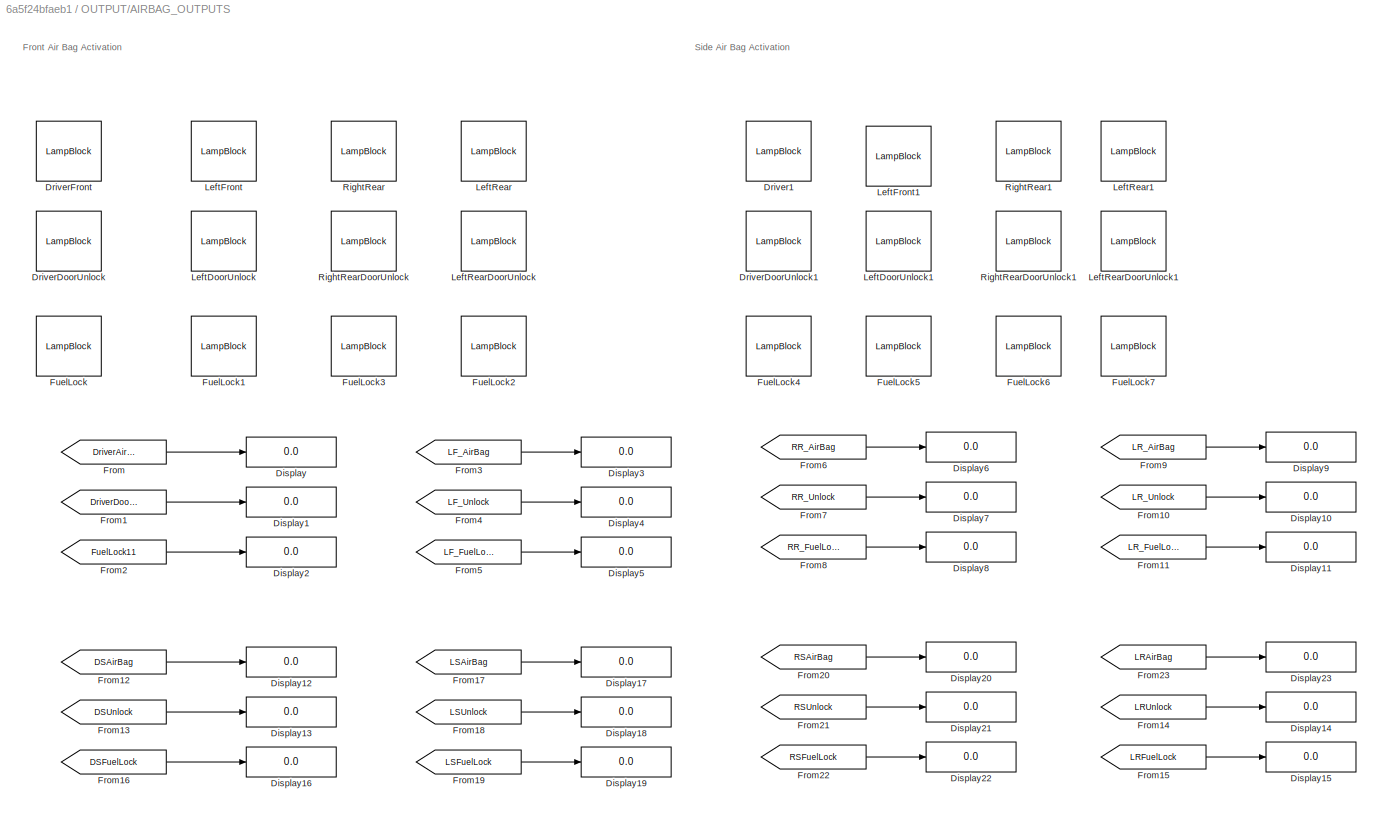
BLOCK [SubSystem] OUTPUT/AIRBAG_OUTPUTS
  Ports = []
  RequestExecContextInheritance = off
BLOCK [Display] OUTPUT/AIRBAG_OUTPUTS/Display
  Decimation = 1
  Ports = [1]
BLOCK [Display] OUTPUT/AIRBAG_OUTPUTS/Display1
  Decimation = 1
  Ports = [1]
BLOCK [Display] OUTPUT/AIRBAG_OUTPUTS/Display10
  Decimation = 1
  Ports = [1]
BLOCK [Display] OUTPUT/AIRBAG_OUTPUTS/Display11
  Decimation = 1
  Ports = [1]
BLOCK [Display] OUTPUT/AIRBAG_OUTPUTS/Display12
  Decimation = 1
  Ports = [1]
BLOCK [Display] OUTPUT/AIRBAG_OUTPUTS/Display13
  Decimation = 1
  Ports = [1]
BLOCK [Display] OUTPUT/AIRBAG_OUTPUTS/Display14
  Decimation = 1
  Ports = [1]
BLOCK [Display] OUTPUT/AIRBAG_OUTPUTS/Display15
  Decimation = 1
  Ports = [1]
BLOCK [Display] OUTPUT/AIRBAG_OUTPUTS/Display16
  Decimation = 1
  Ports = [1]
BLOCK [Display] OUTPUT/AIRBAG_OUTPUTS/Display17
  Decimation = 1
  Ports = [1]
BLOCK [Display] OUTPUT/AIRBAG_OUTPUTS/Display18
  Decimation = 1
  Ports = [1]
BLOCK [Display] OUTPUT/AIRBAG_OUTPUTS/Display19
  Decimation = 1
  Ports = [1]
BLOCK [Display] OUTPUT/AIRBAG_OUTPUTS/Display2
  Decimation = 1
  Ports = [1]
BLOCK [Display] OUTPUT/AIRBAG_OUTPUTS/Display20
  Decimation = 1
  Ports = [1]
BLOCK [Display] OUTPUT/AIRBAG_OUTPUTS/Display21
  Decimation = 1
  Ports = [1]
BLOCK [Display] OUTPUT/AIRBAG_OUTPUTS/Display22
  Decimation = 1
  Ports = [1]
BLOCK [Display] OUTPUT/AIRBAG_OUTPUTS/Display23
  Decimation = 1
  Ports = [1]
BLOCK [Display] OUTPUT/AIRBAG_OUTPUTS/Display3
  Decimation = 1
  Ports = [1]
BLOCK [Display] OUTPUT/AIRBAG_OUTPUTS/Display4
  Decimation = 1
  Ports = [1]
BLOCK [Display] OUTPUT/AIRBAG_OUTPUTS/Display5
  Decimation = 1
  Ports = [1]
BLOCK [Display] OUTPUT/AIRBAG_OUTPUTS/Display6
  Decimation = 1
  Ports = [1]
BLOCK [Display] OUTPUT/AIRBAG_OUTPUTS/Display7
  Decimation = 1
  Ports = [1]
BLOCK [Display] OUTPUT/AIRBAG_OUTPUTS/Display8
  Decimation = 1
  Ports = [1]
BLOCK [Display] OUTPUT/AIRBAG_OUTPUTS/Display9
  Decimation = 1
  Ports = [1]
BLOCK [LampBlock] OUTPUT/AIRBAG_OUTPUTS/Driver1
BLOCK [LampBlock] OUTPUT/AIRBAG_OUTPUTS/DriverDoorUnlock
BLOCK [LampBlock] OUTPUT/AIRBAG_OUTPUTS/DriverDoorUnlock1
BLOCK [LampBlock] OUTPUT/AIRBAG_OUTPUTS/DriverFront
BLOCK [From] OUTPUT/AIRBAG_OUTPUTS/From
  GotoTag = DriverAirBag1
  TagVisibility = global
BLOCK [From] OUTPUT/AIRBAG_OUTPUTS/From1
  GotoTag = DriverDoorLock
  TagVisibility = global
BLOCK [From] OUTPUT/AIRBAG_OUTPUTS/From10
  GotoTag = LR_Unlock
  TagVisibility = global
BLOCK [From] OUTPUT/AIRBAG_OUTPUTS/From11
  GotoTag = LR_FuelLock
  TagVisibility = global
BLOCK [From] OUTPUT/AIRBAG_OUTPUTS/From12
  GotoTag = DSAirBag
  TagVisibility = global
BLOCK [From] OUTPUT/AIRBAG_OUTPUTS/From13
  GotoTag = DSUnlock
  TagVisibility = global
BLOCK [From] OUTPUT/AIRBAG_OUTPUTS/From14
  GotoTag = LRUnlock
  TagVisibility = global
BLOCK [From] OUTPUT/AIRBAG_OUTPUTS/From15
  GotoTag = LRFuelLock
  TagVisibility = global
BLOCK [From] OUTPUT/AIRBAG_OUTPUTS/From16
  GotoTag = DSFuelLock
  TagVisibility = global
BLOCK [From] OUTPUT/AIRBAG_OUTPUTS/From17
  GotoTag = LSAirBag
  TagVisibility = global
BLOCK [From] OUTPUT/AIRBAG_OUTPUTS/From18
  GotoTag = LSUnlock
  TagVisibility = global
BLOCK [From] OUTPUT/AIRBAG_OUTPUTS/From19
  GotoTag = LSFuelLock
  TagVisibility = global
BLOCK [From] OUTPUT/AIRBAG_OUTPUTS/From2
  GotoTag = FuelLock11
  TagVisibility = global
BLOCK [From] OUTPUT/AIRBAG_OUTPUTS/From20
  GotoTag = RSAirBag
  TagVisibility = global
BLOCK [From] OUTPUT/AIRBAG_OUTPUTS/From21
  GotoTag = RSUnlock
  TagVisibility = global
BLOCK [From] OUTPUT/AIRBAG_OUTPUTS/From22
  GotoTag = RSFuelLock
  TagVisibility = global
BLOCK [From] OUTPUT/AIRBAG_OUTPUTS/From23
  GotoTag = LRAirBag
  TagVisibility = global
BLOCK [From] OUTPUT/AIRBAG_OUTPUTS/From3
  GotoTag = LF_AirBag
  TagVisibility = global
BLOCK [From] OUTPUT/AIRBAG_OUTPUTS/From4
  GotoTag = LF_Unlock
  TagVisibility = global
BLOCK [From] OUTPUT/AIRBAG_OUTPUTS/From5
  GotoTag = LF_FuelLock
  TagVisibility = global
BLOCK [From] OUTPUT/AIRBAG_OUTPUTS/From6
  GotoTag = RR_AirBag
  TagVisibility = global
BLOCK [From] OUTPUT/AIRBAG_OUTPUTS/From7
  GotoTag = RR_Unlock
  TagVisibility = global
BLOCK [From] OUTPUT/AIRBAG_OUTPUTS/From8
  GotoTag = RR_FuelLock
  TagVisibility = global
BLOCK [From] OUTPUT/AIRBAG_OUTPUTS/From9
  GotoTag = LR_AirBag
  TagVisibility = global
BLOCK [LampBlock] OUTPUT/AIRBAG_OUTPUTS/FuelLock
BLOCK [LampBlock] OUTPUT/AIRBAG_OUTPUTS/FuelLock1
BLOCK [LampBlock] OUTPUT/AIRBAG_OUTPUTS/FuelLock2
BLOCK [LampBlock] OUTPUT/AIRBAG_OUTPUTS/FuelLock3
BLOCK [LampBlock] OUTPUT/AIRBAG_OUTPUTS/FuelLock4
BLOCK [LampBlock] OUTPUT/AIRBAG_OUTPUTS/FuelLock5
BLOCK [LampBlock] OUTPUT/AIRBAG_OUTPUTS/FuelLock6
BLOCK [LampBlock] OUTPUT/AIRBAG_OUTPUTS/FuelLock7
BLOCK [LampBlock] OUTPUT/AIRBAG_OUTPUTS/LeftDoorUnlock
BLOCK [LampBlock] OUTPUT/AIRBAG_OUTPUTS/LeftDoorUnlock1
BLOCK [LampBlock] OUTPUT/AIRBAG_OUTPUTS/LeftFront
BLOCK [LampBlock] OUTPUT/AIRBAG_OUTPUTS/LeftFront1
BLOCK [LampBlock] OUTPUT/AIRBAG_OUTPUTS/LeftRear
BLOCK [LampBlock] OUTPUT/AIRBAG_OUTPUTS/LeftRear1
BLOCK [LampBlock] OUTPUT/AIRBAG_OUTPUTS/LeftRearDoorUnlock
BLOCK [LampBlock] OUTPUT/AIRBAG_OUTPUTS/LeftRearDoorUnlock1
BLOCK [LampBlock] OUTPUT/AIRBAG_OUTPUTS/RightRear
BLOCK [LampBlock] OUTPUT/AIRBAG_OUTPUTS/RightRear1
BLOCK [LampBlock] OUTPUT/AIRBAG_OUTPUTS/RightRearDoorUnlock
BLOCK [LampBlock] OUTPUT/AIRBAG_OUTPUTS/RightRearDoorUnlock1
BLOCK [SubSystem] OUTPUT/ALARM_OUTPUT1
  Ports = []
  RequestExecContextInheritance = off
BLOCK [Display] OUTPUT/ALARM_OUTPUT1/Display
  Decimation = 1
  Ports = [1]
BLOCK [Display] OUTPUT/ALARM_OUTPUT1/Display1
  Decimation = 1
  Ports = [1]
BLOCK [Display] OUTPUT/ALARM_OUTPUT1/Display2
  Decimation = 1
  Ports = [1]
BLOCK [From] OUTPUT/ALARM_OUTPUT1/From
  GotoTag = Alarm_ARMED
  TagVisibility = global
BLOCK [From] OUTPUT/ALARM_OUTPUT1/From1
  GotoTag = Prealarm_ARMED
  TagVisibility = global
BLOCK [From] OUTPUT/ALARM_OUTPUT1/From2
  GotoTag = Disarmed
  TagVisibility = global
BLOCK [LampBlock] OUTPUT/ALARM_OUTPUT1/Lamp
BLOCK [SubSystem] OUTPUT/Cruise_output
  Ports = []
  RequestExecContextInheritance = off
BLOCK [From] OUTPUT/Cruise_output/From8
  GotoTag = output_cruise
  TagVisibility = global
BLOCK [CircularGaugeBlock] OUTPUT/Cruise_output/Gauge
BLOCK [Scope] OUTPUT/Cruise_output/Scope
  Floating = off
  NumInputPorts = 1
  Ports = [1]
  ScopeSpecificationString = Simulink.scopes.TimeScopeBlockCfg('CurrentConfiguration', extmgr.ConfigurationSet(extmgr.Configuration('Core','General UI',true),extmgr.Configuration('Core','Source UI',true),extmgr.Configuration('Sources','WiredSimulink',true),extmgr.Configuration('Visuals','Time Domain',true,'SerializedDisplays',{struct('MinYLimReal','-101.375','MaxYLimReal','112.375','YLabelReal','','MinYLimMag',' 0.00000','Max...<+1382ch>
BLOCK [SubSystem] OUTPUT/OUTPUT1
  Ports = []
  RequestExecContextInheritance = off
BLOCK [Display] OUTPUT/OUTPUT1/Display
  Decimation = 1
  Ports = [1]
BLOCK [Display] OUTPUT/OUTPUT1/Display1
  Decimation = 1
  Ports = [1]
BLOCK [From] OUTPUT/OUTPUT1/From
  GotoTag = output1
  TagVisibility = global
BLOCK [From] OUTPUT/OUTPUT1/From1
  GotoTag = output2
  TagVisibility = global
BLOCK [SubSystem] OUTPUT/OUTPUT2
  Ports = []
  RequestExecContextInheritance = off
BLOCK [From] OUTPUT/OUTPUT2/BW30_60
  GotoTag = FM_Bw30_60
  TagVisibility = global
BLOCK [From] OUTPUT/OUTPUT2/BW60_100
  GotoTag = FM_Bw60_100
  TagVisibility = global
BLOCK [Display] OUTPUT/OUTPUT2/Display
  Decimation = 1
  Ports = [1]
BLOCK [Display] OUTPUT/OUTPUT2/Display1
  Decimation = 1
  Ports = [1]
BLOCK [Display] OUTPUT/OUTPUT2/Display10
  Decimation = 1
  Ports = [1]
BLOCK [Display] OUTPUT/OUTPUT2/Display2
  Decimation = 1
  Ports = [1]
BLOCK [Display] OUTPUT/OUTPUT2/Display3
  Decimation = 1
  Ports = [1]
BLOCK [Display] OUTPUT/OUTPUT2/Display4
  Decimation = 1
  Ports = [1]
BLOCK [Display] OUTPUT/OUTPUT2/Display5
  Decimation = 1
  Ports = [1]
BLOCK [Display] OUTPUT/OUTPUT2/Display6
  Decimation = 1
  Ports = [1]
BLOCK [Display] OUTPUT/OUTPUT2/Display7
  Decimation = 1
  Ports = [1]
BLOCK [Display] OUTPUT/OUTPUT2/Display8
  Decimation = 1
  Ports = [1]
BLOCK [Display] OUTPUT/OUTPUT2/Display9
  Decimation = 1
  Ports = [1]
BLOCK [From] OUTPUT/OUTPUT2/From
  GotoTag = BW_Display
  TagVisibility = global
BLOCK [From] OUTPUT/OUTPUT2/From8
  GotoTag = FA_OFF
  TagVisibility = global
BLOCK [From] OUTPUT/OUTPUT2/High_Mode
  GotoTag = FA_HighMode
  TagVisibility = global
BLOCK [LampBlock] OUTPUT/OUTPUT2/Lamp
BLOCK [LampBlock] OUTPUT/OUTPUT2/Lamp1
BLOCK [LampBlock] OUTPUT/OUTPUT2/Lamp2
BLOCK [LampBlock] OUTPUT/OUTPUT2/Lamp3
BLOCK [LampBlock] OUTPUT/OUTPUT2/Lamp4
BLOCK [LampBlock] OUTPUT/OUTPUT2/Lamp5
BLOCK [LampBlock] OUTPUT/OUTPUT2/Lamp6
BLOCK [LampBlock] OUTPUT/OUTPUT2/Lamp7
BLOCK [LampBlock] OUTPUT/OUTPUT2/Lamp8
BLOCK [From] OUTPUT/OUTPUT2/Lessthan30
  GotoTag = FM_lessthan30
  TagVisibility = global
BLOCK [From] OUTPUT/OUTPUT2/Low_Mode
  GotoTag = FA_LowMode
  TagVisibility = global
BLOCK [From] OUTPUT/OUTPUT2/Manual_out
  GotoTag = Manual_OUT
  TagVisibility = global
BLOCK [From] OUTPUT/OUTPUT2/Medium_Mode
  GotoTag = FA_MediumMode
  TagVisibility = global
BLOCK [From] OUTPUT/OUTPUT2/Mist_Mode
  GotoTag = FA_MistMode
  TagVisibility = global
BLOCK [From] OUTPUT/OUTPUT2/Spray_Mode
  GotoTag = FA_SprayMode
  TagVisibility = global
BLOCK [SubSystem] OUTPUT/Power_window_OUTPUT
  Ports = []
  RequestExecContextInheritance = off
BLOCK [From] OUTPUT/Power_window_OUTPUT/From
  GotoTag = FL_out
  TagVisibility = global
BLOCK [From] OUTPUT/Power_window_OUTPUT/From1
  GotoTag = RL_out
  TagVisibility = global
BLOCK [From] OUTPUT/Power_window_OUTPUT/From2
  GotoTag = RR_warn
  TagVisibility = global
BLOCK [From] OUTPUT/Power_window_OUTPUT/From3
  GotoTag = RR_out
  TagVisibility = global
BLOCK [From] OUTPUT/Power_window_OUTPUT/From4
  GotoTag = driver_warn
  TagVisibility = global
BLOCK [From] OUTPUT/Power_window_OUTPUT/From5
  GotoTag = RL_warn
  TagVisibility = global
BLOCK [From] OUTPUT/Power_window_OUTPUT/From6
  GotoTag = FL_warn
  TagVisibility = global
BLOCK [From] OUTPUT/Power_window_OUTPUT/From7
  GotoTag = driver_side_output
  TagVisibility = global
BLOCK [Scope] OUTPUT/Power_window_OUTPUT/Output_window_scope
  Floating = off
  NumInputPorts = 4
  Ports = [4]
  ScopeSpecificationString = Simulink.scopes.TimeScopeBlockCfg('CurrentConfiguration', extmgr.ConfigurationSet(extmgr.Configuration('Core','General UI',true),extmgr.Configuration('Core','Source UI',true),extmgr.Configuration('Sources','WiredSimulink',true,'DataLoggingVariableName','ScopeData2'),extmgr.Configuration('Visuals','Time Domain',true,'SerializedDisplays',{struct('MinYLimReal','-12.5','MaxYLimReal','112.5','YLabelRea...<+3440ch>
BLOCK [Scope] OUTPUT/Power_window_OUTPUT/Warning_Scope
  Floating = off
  NumInputPorts = 4
  Ports = [4]
  ScopeSpecificationString = Simulink.scopes.TimeScopeBlockCfg('CurrentConfiguration', extmgr.ConfigurationSet(extmgr.Configuration('Core','General UI',true),extmgr.Configuration('Core','Source UI',true),extmgr.Configuration('Sources','WiredSimulink',true,'DataLoggingVariableName','ScopeData1'),extmgr.Configuration('Visuals','Time Domain',true,'SerializedDisplays',{struct('MinYLimReal','-0.125','MaxYLimReal','1.125','YLabelRe...<+3434ch>
BLOCK [SubSystem] OUTPUT/SeatBelt_OUTPUTS
  Ports = []
  RequestExecContextInheritance = off
BLOCK [Display] OUTPUT/SeatBelt_OUTPUTS/Display
  Decimation = 1
  Ports = [1]
BLOCK [Display] OUTPUT/SeatBelt_OUTPUTS/Display1
  Decimation = 1
  Ports = [1]
BLOCK [Display] OUTPUT/SeatBelt_OUTPUTS/Display2
  Decimation = 1
  Ports = [1]
BLOCK [Display] OUTPUT/SeatBelt_OUTPUTS/Display3
  Decimation = 1
  Ports = [1]
BLOCK [From] OUTPUT/SeatBelt_OUTPUTS/From
  GotoTag = FrontAngle
  TagVisibility = global
BLOCK [From] OUTPUT/SeatBelt_OUTPUTS/From1
  GotoTag = RearAngle
  TagVisibility = global
BLOCK [From] OUTPUT/SeatBelt_OUTPUTS/From2
  GotoTag = SeatAdj
  TagVisibility = global
BLOCK [From] OUTPUT/SeatBelt_OUTPUTS/From3
  GotoTag = CushionAngle
  TagVisibility = global
BLOCK [LampBlock] OUTPUT/TP1_Indicator
BLOCK [LampBlock] OUTPUT/TP2_Indicator
BLOCK [LampBlock] OUTPUT/TP3_Indicator
  NameLocation = top
BLOCK [LampBlock] OUTPUT/TP4_Indicator
ANNOTATION INPUT: Tier pressure sensors and Roof Control Inputs
ANNOTATION MODULES/AIRBAGSYSTEM: DecelerationDetection
ANNOTATION MODULES/AIRBAGSYSTEM/FrontAirBagActivation: Driver
ANNOTATION MODULES/AIRBAGSYSTEM/FrontAirBagActivation: LeftRear
ANNOTATION MODULES/AIRBAGSYSTEM/FrontAirBagActivation: Left_Front
ANNOTATION MODULES/AIRBAGSYSTEM/FrontAirBagActivation: RightRear
ANNOTATION MODULES/AIRBAGSYSTEM/SideAirBagActivation1: DriverFrontSide
ANNOTATION MODULES/AIRBAGSYSTEM/SideAirBagActivation1: LeftFrontSIde
ANNOTATION MODULES/AIRBAGSYSTEM/SideAirBagActivation1: LeftRearSide
ANNOTATION MODULES/AIRBAGSYSTEM/SideAirBagActivation1: RightRearSide
ANNOTATION MODULES/CRUISE_CONTROL: IGN
ANNOTATION OUTPUT: Tyre pressure Indicators
ANNOTATION OUTPUT: sunroof Display
ANNOTATION OUTPUT/AIRBAG_OUTPUTS: Front Air Bag Activation
ANNOTATION OUTPUT/AIRBAG_OUTPUTS: Side Air Bag Activation
ANNOTATION OUTPUT/ALARM_OUTPUT1: OUTPUTS
ANNOTATION OUTPUT/OUTPUT2: BACK WINDSHIELD
ANNOTATION OUTPUT/OUTPUT2: FRONT WINDSHIELD AUTOMODES
ANNOTATION OUTPUT/OUTPUT2: FRONT WINDSHIELD MANUAL MANUAL OUTPUT
LINE INPUT/AIRBAG_INPUTS/Signal Builder:1 -> INPUT/AIRBAG_INPUTS/Goto:1
LINE INPUT/AIRBAG_INPUTS/Signal Builder:2 -> INPUT/AIRBAG_INPUTS/Goto1:1
LINE INPUT/AIRBAG_INPUTS/Signal Builder:3 -> INPUT/AIRBAG_INPUTS/Goto2:1
LINE INPUT/AIRBAG_INPUTS/Signal Builder:4 -> INPUT/AIRBAG_INPUTS/Goto3:1
LINE INPUT/AIRBAG_INPUTS/Signal Builder:5 -> INPUT/AIRBAG_INPUTS/Goto4:1
LINE INPUT/AIRBAG_INPUTS/Signal Builder:6 -> INPUT/AIRBAG_INPUTS/Goto5:1
LINE INPUT/AIRBAG_INPUTS/Signal Builder:7 -> INPUT/AIRBAG_INPUTS/Goto6:1
LINE INPUT/ALARM_INPUTS/Signal Builder:1 -> INPUT/ALARM_INPUTS/Goto:1
LINE INPUT/ALARM_INPUTS/Signal Builder:2 -> INPUT/ALARM_INPUTS/Goto1:1
LINE INPUT/ALARM_INPUTS/Signal Builder:3 -> INPUT/ALARM_INPUTS/Goto2:1
LINE INPUT/ALARM_INPUTS/Signal Builder:4 -> INPUT/ALARM_INPUTS/Goto3:1
LINE INPUT/Cruise_Control_INPUT/Signal Builder:1 -> INPUT/Cruise_Control_INPUT/Goto:1
LINE INPUT/Cruise_Control_INPUT/Signal Builder:2 -> INPUT/Cruise_Control_INPUT/Goto1:1
LINE INPUT/Cruise_Control_INPUT/Signal Builder:3 -> INPUT/Cruise_Control_INPUT/Goto2:1
LINE INPUT/Cruise_Control_INPUT/Signal Builder:4 -> INPUT/Cruise_Control_INPUT/Goto3:1
LINE INPUT/Cruise_Control_INPUT/Signal Builder:5 -> INPUT/Cruise_Control_INPUT/Goto4:1
LINE INPUT/Cruise_Control_INPUT/Signal Builder:6 -> INPUT/Cruise_Control_INPUT/Goto5:1
LINE INPUT/Cruise_Control_INPUT/Signal Builder:7 -> INPUT/Cruise_Control_INPUT/Goto6:1
LINE INPUT/Cruise_Control_INPUT/Signal Builder:8 -> INPUT/Cruise_Control_INPUT/Goto7:1
LINE INPUT/Power_window_ip/Signal Builder:1 -> INPUT/Power_window_ip/Goto5:1
LINE INPUT/Power_window_ip/Signal Builder:10 -> INPUT/Power_window_ip/Goto:1
LINE INPUT/Power_window_ip/Signal Builder:2 -> INPUT/Power_window_ip/Goto2:1
LINE INPUT/Power_window_ip/Signal Builder:3 -> INPUT/Power_window_ip/Goto6:1
LINE INPUT/Power_window_ip/Signal Builder:4 -> INPUT/Power_window_ip/Goto8:1
LINE INPUT/Power_window_ip/Signal Builder:5 -> INPUT/Power_window_ip/Goto4:1
LINE INPUT/Power_window_ip/Signal Builder:6 -> INPUT/Power_window_ip/Goto3:1
LINE INPUT/Power_window_ip/Signal Builder:7 -> INPUT/Power_window_ip/Goto7:1
LINE INPUT/Power_window_ip/Signal Builder:8 -> INPUT/Power_window_ip/Goto1:1
LINE INPUT/Power_window_ip/Signal Builder:9 -> INPUT/Power_window_ip/lock_unlock_button_2:1
LINE INPUT/Signal Builder:1 -> INPUT/Goto6:1
LINE INPUT/Signal Builder:2 -> INPUT/Goto5:1
LINE INPUT/Signal Builder:3 -> INPUT/Goto:1
LINE INPUT/Signal Builder:4 -> INPUT/Goto1:1
LINE INPUT/Signal Builder:5 -> INPUT/Goto2:1
LINE INPUT/Signal Builder:6 -> INPUT/Goto3:1
LINE INPUT/Signal Builder:7 -> INPUT/Goto4:1
LINE INPUT/Signal Builder:8 -> INPUT/Goto7:1
LINE INPUT/Wiper_INPUTS/Signal Builder:1 -> INPUT/Wiper_INPUTS/FW_Modes:1
LINE INPUT/Wiper_INPUTS/Signal Builder:2 -> INPUT/Wiper_INPUTS/FC_ManualInput:1
LINE INPUT/Wiper_INPUTS/Signal Builder:3 -> INPUT/Wiper_INPUTS/       WC_BackS:1
LINE INPUT/Wiper_INPUTS/Signal Builder:4 -> INPUT/Wiper_INPUTS/       WC_FrontS:1
LINE INPUT/Wiper_INPUTS/Signal Builder:5 -> INPUT/Wiper_INPUTS/       WC_Status:1
LINE MODULES/	POWER_WINDOW/Subsystem4/Front_left_button_CP:1 -> MODULES/	POWER_WINDOW/Subsystem4/Front_left_subsystem:2
LINE MODULES/	POWER_WINDOW/Subsystem4/Front_left_button_driver_side:1 -> MODULES/	POWER_WINDOW/Subsystem4/Front_left_subsystem:3
LINE MODULES/	POWER_WINDOW/Subsystem4/Front_left_subsystem/AND:1 -> MODULES/	POWER_WINDOW/Subsystem4/Front_left_subsystem/inp_data:1
LINE MODULES/	POWER_WINDOW/Subsystem4/Front_left_subsystem/Compare To Constant1:1 -> MODULES/	POWER_WINDOW/Subsystem4/Front_left_subsystem/or1:2
LINE MODULES/	POWER_WINDOW/Subsystem4/Front_left_subsystem/From:1 -> MODULES/	POWER_WINDOW/Subsystem4/Front_left_subsystem/Display1:1
LINE MODULES/	POWER_WINDOW/Subsystem4/Front_left_subsystem/In_fl_Dc:1 -> MODULES/	POWER_WINDOW/Subsystem4/Front_left_subsystem/Compare To Constant1:1
LINE MODULES/	POWER_WINDOW/Subsystem4/Front_left_subsystem/In_fl_b:1 -> MODULES/	POWER_WINDOW/Subsystem4/Front_left_subsystem/AND:1
LINE MODULES/	POWER_WINDOW/Subsystem4/Front_left_subsystem/Switch_lock_unlock:1 -> MODULES/	POWER_WINDOW/Subsystem4/Front_left_subsystem/Goto:1
LINE MODULES/	POWER_WINDOW/Subsystem4/Front_left_subsystem/b1:1 -> MODULES/	POWER_WINDOW/Subsystem4/Front_left_subsystem/Display:1
LINE MODULES/	POWER_WINDOW/Subsystem4/Front_left_subsystem/check_ip:1 -> MODULES/	POWER_WINDOW/Subsystem4/Front_left_subsystem/or1:1
NET MODULES/	POWER_WINDOW/Subsystem4/Front_left_subsystem/decision_Box:1 -> MODULES/	POWER_WINDOW/Subsystem4/Front_left_subsystem/Goto1:1, MODULES/	POWER_WINDOW/Subsystem4/Front_left_subsystem/Outport1:1, MODULES/	POWER_WINDOW/Subsystem4/Front_left_subsystem/Scope:2, MODULES/	POWER_WINDOW/Subsystem4/Front_left_subsystem/Switch_lock_unlock:1, MODULES/	POWER_WINDOW/Subsystem4/Front_left_subsystem/Switch_lock_unlock:3
NET MODULES/	POWER_WINDOW/Subsystem4/Front_left_subsystem/decision_Box:2 -> MODULES/	POWER_WINDOW/Subsystem4/Front_left_subsystem/Outport:1, MODULES/	POWER_WINDOW/Subsystem4/Front_left_subsystem/Scope:1
LINE MODULES/	POWER_WINDOW/Subsystem4/Front_left_subsystem/inp_data:1 -> MODULES/	POWER_WINDOW/Subsystem4/Front_left_subsystem/decision_Box:1
NET MODULES/	POWER_WINDOW/Subsystem4/Front_left_subsystem/lock//unlock:1 -> MODULES/	POWER_WINDOW/Subsystem4/Front_left_subsystem/AND:2, MODULES/	POWER_WINDOW/Subsystem4/Front_left_subsystem/Switch_lock_unlock:2
LINE MODULES/	POWER_WINDOW/Subsystem4/Front_left_subsystem/object:1 -> MODULES/	POWER_WINDOW/Subsystem4/Front_left_subsystem/decision_Box:2
LINE MODULES/	POWER_WINDOW/Subsystem4/Front_left_subsystem/or1:1 -> MODULES/	POWER_WINDOW/Subsystem4/Front_left_subsystem/inp_data:2
LINE MODULES/	POWER_WINDOW/Subsystem4/Front_left_subsystem:1 -> MODULES/	POWER_WINDOW/Subsystem4/Out_warn:1
LINE MODULES/	POWER_WINDOW/Subsystem4/Front_left_subsystem:2 -> MODULES/	POWER_WINDOW/Subsystem4/Out_FL:1
NET MODULES/	POWER_WINDOW/Subsystem4/Ig_sw:1 -> MODULES/	POWER_WINDOW/Subsystem4/Front_left_subsystem:enable, MODULES/	POWER_WINDOW/Subsystem4/Rear_right_Subsystem:enable, MODULES/	POWER_WINDOW/Subsystem4/driver_control_Subsystem:enable, MODULES/	POWER_WINDOW/Subsystem4/rear_left_Subsystem:enable
NET MODULES/	POWER_WINDOW/Subsystem4/Rear_right_Subsystem/Chart:1 -> MODULES/	POWER_WINDOW/Subsystem4/Rear_right_Subsystem/Goto:1, MODULES/	POWER_WINDOW/Subsystem4/Rear_right_Subsystem/Outport1:1, MODULES/	POWER_WINDOW/Subsystem4/Rear_right_Subsystem/Scope:2, MODULES/	POWER_WINDOW/Subsystem4/Rear_right_Subsystem/Switch:1, MODULES/	POWER_WINDOW/Subsystem4/Rear_right_Subsystem/Switch:3
NET MODULES/	POWER_WINDOW/Subsystem4/Rear_right_Subsystem/Chart:2 -> MODULES/	POWER_WINDOW/Subsystem4/Rear_right_Subsystem/Outport:1, MODULES/	POWER_WINDOW/Subsystem4/Rear_right_Subsystem/Scope:1
LINE MODULES/	POWER_WINDOW/Subsystem4/Rear_right_Subsystem/Compare To Constant1:1 -> MODULES/	POWER_WINDOW/Subsystem4/Rear_right_Subsystem/or1:2
LINE MODULES/	POWER_WINDOW/Subsystem4/Rear_right_Subsystem/Constant1:1 -> MODULES/	POWER_WINDOW/Subsystem4/Rear_right_Subsystem/or1:1
LINE MODULES/	POWER_WINDOW/Subsystem4/Rear_right_Subsystem/From2:1 -> MODULES/	POWER_WINDOW/Subsystem4/Rear_right_Subsystem/Display3:1
LINE MODULES/	POWER_WINDOW/Subsystem4/Rear_right_Subsystem/In2:1 -> MODULES/	POWER_WINDOW/Subsystem4/Rear_right_Subsystem/or2:1
LINE MODULES/	POWER_WINDOW/Subsystem4/Rear_right_Subsystem/In3:1 -> MODULES/	POWER_WINDOW/Subsystem4/Rear_right_Subsystem/Compare To Constant1:1
LINE MODULES/	POWER_WINDOW/Subsystem4/Rear_right_Subsystem/Switch:1 -> MODULES/	POWER_WINDOW/Subsystem4/Rear_right_Subsystem/Goto2:1
LINE MODULES/	POWER_WINDOW/Subsystem4/Rear_right_Subsystem/b3:1 -> MODULES/	POWER_WINDOW/Subsystem4/Rear_right_Subsystem/Display2:1
NET MODULES/	POWER_WINDOW/Subsystem4/Rear_right_Subsystem/lock//unlock:1 -> MODULES/	POWER_WINDOW/Subsystem4/Rear_right_Subsystem/Switch:2, MODULES/	POWER_WINDOW/Subsystem4/Rear_right_Subsystem/or2:2
LINE MODULES/	POWER_WINDOW/Subsystem4/Rear_right_Subsystem/object:1 -> MODULES/	POWER_WINDOW/Subsystem4/Rear_right_Subsystem/Chart:2
LINE MODULES/	POWER_WINDOW/Subsystem4/Rear_right_Subsystem/or1:1 -> MODULES/	POWER_WINDOW/Subsystem4/Rear_right_Subsystem/or3:2
LINE MODULES/	POWER_WINDOW/Subsystem4/Rear_right_Subsystem/or2:1 -> MODULES/	POWER_WINDOW/Subsystem4/Rear_right_Subsystem/or3:1
LINE MODULES/	POWER_WINDOW/Subsystem4/Rear_right_Subsystem/or3:1 -> MODULES/	POWER_WINDOW/Subsystem4/Rear_right_Subsystem/Chart:1
LINE MODULES/	POWER_WINDOW/Subsystem4/Rear_right_Subsystem:1 -> MODULES/	POWER_WINDOW/Subsystem4/Out_RR_warn:1
LINE MODULES/	POWER_WINDOW/Subsystem4/Rear_right_Subsystem:2 -> MODULES/	POWER_WINDOW/Subsystem4/Out_RR:1
NET MODULES/	POWER_WINDOW/Subsystem4/driver_control_Subsystem/Chart:1 -> MODULES/	POWER_WINDOW/Subsystem4/driver_control_Subsystem/Goto:1, MODULES/	POWER_WINDOW/Subsystem4/driver_control_Subsystem/Outport1:1, MODULES/	POWER_WINDOW/Subsystem4/driver_control_Subsystem/Scope:2
NET MODULES/	POWER_WINDOW/Subsystem4/driver_control_Subsystem/Chart:2 -> MODULES/	POWER_WINDOW/Subsystem4/driver_control_Subsystem/Outport:1, MODULES/	POWER_WINDOW/Subsystem4/driver_control_Subsystem/Scope:1
LINE MODULES/	POWER_WINDOW/Subsystem4/driver_control_Subsystem/From3:1 -> MODULES/	POWER_WINDOW/Subsystem4/driver_control_Subsystem/Display4:1
LINE MODULES/	POWER_WINDOW/Subsystem4/driver_control_Subsystem/In1:1 -> MODULES/	POWER_WINDOW/Subsystem4/driver_control_Subsystem/Chart:1
LINE MODULES/	POWER_WINDOW/Subsystem4/driver_control_Subsystem/object:1 -> MODULES/	POWER_WINDOW/Subsystem4/driver_control_Subsystem/Chart:2
LINE MODULES/	POWER_WINDOW/Subsystem4/driver_control_Subsystem:1 -> MODULES/	POWER_WINDOW/Subsystem4/Out_DC_warn:1
LINE MODULES/	POWER_WINDOW/Subsystem4/driver_control_Subsystem:2 -> MODULES/	POWER_WINDOW/Subsystem4/Out_DC:1
LINE MODULES/	POWER_WINDOW/Subsystem4/driver_switch:1 -> MODULES/	POWER_WINDOW/Subsystem4/driver_control_Subsystem:1
NET MODULES/	POWER_WINDOW/Subsystem4/lock_unlock_button:1 -> MODULES/	POWER_WINDOW/Subsystem4/Front_left_subsystem:1, MODULES/	POWER_WINDOW/Subsystem4/Rear_right_Subsystem:1, MODULES/	POWER_WINDOW/Subsystem4/rear_left_Subsystem:1
NET MODULES/	POWER_WINDOW/Subsystem4/object:1 -> MODULES/	POWER_WINDOW/Subsystem4/Front_left_subsystem:4, MODULES/	POWER_WINDOW/Subsystem4/Rear_right_Subsystem:4, MODULES/	POWER_WINDOW/Subsystem4/driver_control_Subsystem:2, MODULES/	POWER_WINDOW/Subsystem4/rear_left_Subsystem:4
NET MODULES/	POWER_WINDOW/Subsystem4/rear_left_Subsystem/Chart:1 -> MODULES/	POWER_WINDOW/Subsystem4/rear_left_Subsystem/Goto:1, MODULES/	POWER_WINDOW/Subsystem4/rear_left_Subsystem/Outport1:1, MODULES/	POWER_WINDOW/Subsystem4/rear_left_Subsystem/Scope:2, MODULES/	POWER_WINDOW/Subsystem4/rear_left_Subsystem/Switch1:1, MODULES/	POWER_WINDOW/Subsystem4/rear_left_Subsystem/Switch1:3
NET MODULES/	POWER_WINDOW/Subsystem4/rear_left_Subsystem/Chart:2 -> MODULES/	POWER_WINDOW/Subsystem4/rear_left_Subsystem/Outport:1, MODULES/	POWER_WINDOW/Subsystem4/rear_left_Subsystem/Scope:1
LINE MODULES/	POWER_WINDOW/Subsystem4/rear_left_Subsystem/Compare To Constant2:1 -> MODULES/	POWER_WINDOW/Subsystem4/rear_left_Subsystem/or2:2
LINE MODULES/	POWER_WINDOW/Subsystem4/rear_left_Subsystem/Constant1:1 -> MODULES/	POWER_WINDOW/Subsystem4/rear_left_Subsystem/or2:1
LINE MODULES/	POWER_WINDOW/Subsystem4/rear_left_Subsystem/From1:1 -> MODULES/	POWER_WINDOW/Subsystem4/rear_left_Subsystem/Display2:1
LINE MODULES/	POWER_WINDOW/Subsystem4/rear_left_Subsystem/In2:1 -> MODULES/	POWER_WINDOW/Subsystem4/rear_left_Subsystem/or3:1
LINE MODULES/	POWER_WINDOW/Subsystem4/rear_left_Subsystem/In3:1 -> MODULES/	POWER_WINDOW/Subsystem4/rear_left_Subsystem/Compare To Constant2:1
LINE MODULES/	POWER_WINDOW/Subsystem4/rear_left_Subsystem/Switch1:1 -> MODULES/	POWER_WINDOW/Subsystem4/rear_left_Subsystem/Goto1:1
LINE MODULES/	POWER_WINDOW/Subsystem4/rear_left_Subsystem/b2:1 -> MODULES/	POWER_WINDOW/Subsystem4/rear_left_Subsystem/Display1:1
NET MODULES/	POWER_WINDOW/Subsystem4/rear_left_Subsystem/lock//unlock:1 -> MODULES/	POWER_WINDOW/Subsystem4/rear_left_Subsystem/Switch1:2, MODULES/	POWER_WINDOW/Subsystem4/rear_left_Subsystem/or3:2
LINE MODULES/	POWER_WINDOW/Subsystem4/rear_left_Subsystem/object:1 -> MODULES/	POWER_WINDOW/Subsystem4/rear_left_Subsystem/Chart:2
LINE MODULES/	POWER_WINDOW/Subsystem4/rear_left_Subsystem/or1:1 -> MODULES/	POWER_WINDOW/Subsystem4/rear_left_Subsystem/Chart:1
LINE MODULES/	POWER_WINDOW/Subsystem4/rear_left_Subsystem/or2:1 -> MODULES/	POWER_WINDOW/Subsystem4/rear_left_Subsystem/or1:2
LINE MODULES/	POWER_WINDOW/Subsystem4/rear_left_Subsystem/or3:1 -> MODULES/	POWER_WINDOW/Subsystem4/rear_left_Subsystem/or1:1
LINE MODULES/	POWER_WINDOW/Subsystem4/rear_left_Subsystem:1 -> MODULES/	POWER_WINDOW/Subsystem4/Out_RL_warn:1
LINE MODULES/	POWER_WINDOW/Subsystem4/rear_left_Subsystem:2 -> MODULES/	POWER_WINDOW/Subsystem4/Out_RL:1
LINE MODULES/	POWER_WINDOW/Subsystem4/rear_left_button_CP:1 -> MODULES/	POWER_WINDOW/Subsystem4/rear_left_Subsystem:2
LINE MODULES/	POWER_WINDOW/Subsystem4/rear_left_button_driver_side:1 -> MODULES/	POWER_WINDOW/Subsystem4/rear_left_Subsystem:3
LINE MODULES/	POWER_WINDOW/Subsystem4/rear_right_button_CP:1 -> MODULES/	POWER_WINDOW/Subsystem4/Rear_right_Subsystem:2
LINE MODULES/	POWER_WINDOW/Subsystem4/rear_right_button_driver_side:1 -> MODULES/	POWER_WINDOW/Subsystem4/Rear_right_Subsystem:3
LINE MODULES/	POWER_WINDOW/Subsystem4:1 -> MODULES/	POWER_WINDOW/Goto8:1
LINE MODULES/	POWER_WINDOW/Subsystem4:2 -> MODULES/	POWER_WINDOW/Goto2:1
LINE MODULES/	POWER_WINDOW/Subsystem4:3 -> MODULES/	POWER_WINDOW/Goto7:1
LINE MODULES/	POWER_WINDOW/Subsystem4:4 -> MODULES/	POWER_WINDOW/Goto3:1
LINE MODULES/	POWER_WINDOW/Subsystem4:5 -> MODULES/	POWER_WINDOW/Goto4:1
LINE MODULES/	POWER_WINDOW/Subsystem4:6 -> MODULES/	POWER_WINDOW/Goto5:1
LINE MODULES/	POWER_WINDOW/Subsystem4:7 -> MODULES/	POWER_WINDOW/Goto6:1
LINE MODULES/	POWER_WINDOW/Subsystem4:8 -> MODULES/	POWER_WINDOW/Goto9:1
LINE MODULES/	POWER_WINDOW/ignition:1 -> MODULES/	POWER_WINDOW/Subsystem4:1
LINE MODULES/	POWER_WINDOW/object:1 -> MODULES/	POWER_WINDOW/Subsystem4:2
NET MODULES/AIRBAGSYSTEM/AND1:1 -> MODULES/AIRBAGSYSTEM/SideAirBagActivation1:1, MODULES/AIRBAGSYSTEM/SideAirBagActivation1:enable
NET MODULES/AIRBAGSYSTEM/AND:1 -> MODULES/AIRBAGSYSTEM/FrontAirBagActivation:1, MODULES/AIRBAGSYSTEM/FrontAirBagActivation:enable
NET MODULES/AIRBAGSYSTEM/ActivateAirBagSensor:1 -> MODULES/AIRBAGSYSTEM/AND1:1, MODULES/AIRBAGSYSTEM/AND:2
LINE MODULES/AIRBAGSYSTEM/CheckYawRateForFront:1 -> MODULES/AIRBAGSYSTEM/AND:1
LINE MODULES/AIRBAGSYSTEM/CheckYawRateForSide:1 -> MODULES/AIRBAGSYSTEM/AND1:2
LINE MODULES/AIRBAGSYSTEM/ConstantVehicleSpeed:1 -> MODULES/AIRBAGSYSTEM/DetectDeceleration:2
LINE MODULES/AIRBAGSYSTEM/DetectDeceleration:1 -> MODULES/AIRBAGSYSTEM/SuddenDeceleration:1
NET MODULES/AIRBAGSYSTEM/From1:1 -> MODULES/AIRBAGSYSTEM/FrontAirBagActivation:3, MODULES/AIRBAGSYSTEM/SideAirBagActivation1:3
NET MODULES/AIRBAGSYSTEM/From2:1 -> MODULES/AIRBAGSYSTEM/FrontAirBagActivation:4, MODULES/AIRBAGSYSTEM/SideAirBagActivation1:4
NET MODULES/AIRBAGSYSTEM/From3:1 -> MODULES/AIRBAGSYSTEM/FrontAirBagActivation:5, MODULES/AIRBAGSYSTEM/SideAirBagActivation1:5
LINE MODULES/AIRBAGSYSTEM/From4:1 -> MODULES/AIRBAGSYSTEM/ActivateAirBagSensor:1
NET MODULES/AIRBAGSYSTEM/From5:1 -> MODULES/AIRBAGSYSTEM/CheckYawRateForFront:1, MODULES/AIRBAGSYSTEM/CheckYawRateForSide:1
LINE MODULES/AIRBAGSYSTEM/From6:1 -> MODULES/AIRBAGSYSTEM/DetectDeceleration:1
NET MODULES/AIRBAGSYSTEM/From:1 -> MODULES/AIRBAGSYSTEM/FrontAirBagActivation:2, MODULES/AIRBAGSYSTEM/SideAirBagActivation1:2
LINE MODULES/AIRBAGSYSTEM/FrontAirBagActivation/Compare To Constant1:1 -> MODULES/AIRBAGSYSTEM/FrontAirBagActivation/Switch1:1
LINE MODULES/AIRBAGSYSTEM/FrontAirBagActivation/Compare To Constant2:1 -> MODULES/AIRBAGSYSTEM/FrontAirBagActivation/Switch2:1
LINE MODULES/AIRBAGSYSTEM/FrontAirBagActivation/Compare To Constant3:1 -> MODULES/AIRBAGSYSTEM/FrontAirBagActivation/Switch3:1
LINE MODULES/AIRBAGSYSTEM/FrontAirBagActivation/Compare To Constant:1 -> MODULES/AIRBAGSYSTEM/FrontAirBagActivation/Switch:1
LINE MODULES/AIRBAGSYSTEM/FrontAirBagActivation/Constant10:1 -> MODULES/AIRBAGSYSTEM/FrontAirBagActivation/Relational Operator10:2
LINE MODULES/AIRBAGSYSTEM/FrontAirBagActivation/Constant11:1 -> MODULES/AIRBAGSYSTEM/FrontAirBagActivation/Relational Operator11:2
LINE MODULES/AIRBAGSYSTEM/FrontAirBagActivation/Constant1:1 -> MODULES/AIRBAGSYSTEM/FrontAirBagActivation/Relational Operator1:2
LINE MODULES/AIRBAGSYSTEM/FrontAirBagActivation/Constant2:1 -> MODULES/AIRBAGSYSTEM/FrontAirBagActivation/Relational Operator2:2
LINE MODULES/AIRBAGSYSTEM/FrontAirBagActivation/Constant3:1 -> MODULES/AIRBAGSYSTEM/FrontAirBagActivation/Relational Operator3:2
LINE MODULES/AIRBAGSYSTEM/FrontAirBagActivation/Constant4:1 -> MODULES/AIRBAGSYSTEM/FrontAirBagActivation/Relational Operator4:2
LINE MODULES/AIRBAGSYSTEM/FrontAirBagActivation/Constant5:1 -> MODULES/AIRBAGSYSTEM/FrontAirBagActivation/Relational Operator5:2
LINE MODULES/AIRBAGSYSTEM/FrontAirBagActivation/Constant6:1 -> MODULES/AIRBAGSYSTEM/FrontAirBagActivation/Relational Operator6:2
LINE MODULES/AIRBAGSYSTEM/FrontAirBagActivation/Constant7:1 -> MODULES/AIRBAGSYSTEM/FrontAirBagActivation/Relational Operator7:2
LINE MODULES/AIRBAGSYSTEM/FrontAirBagActivation/Constant8:1 -> MODULES/AIRBAGSYSTEM/FrontAirBagActivation/Relational Operator8:2
LINE MODULES/AIRBAGSYSTEM/FrontAirBagActivation/Constant9:1 -> MODULES/AIRBAGSYSTEM/FrontAirBagActivation/Relational Operator9:2
LINE MODULES/AIRBAGSYSTEM/FrontAirBagActivation/Constant:1 -> MODULES/AIRBAGSYSTEM/FrontAirBagActivation/Relational Operator:2
LINE MODULES/AIRBAGSYSTEM/FrontAirBagActivation/Relational Operator10:1 -> MODULES/AIRBAGSYSTEM/FrontAirBagActivation/Right_Rear_Unlock:1
LINE MODULES/AIRBAGSYSTEM/FrontAirBagActivation/Relational Operator11:1 -> MODULES/AIRBAGSYSTEM/FrontAirBagActivation/Right_Rear_Fuel_Lock:1
LINE MODULES/AIRBAGSYSTEM/FrontAirBagActivation/Relational Operator1:1 -> MODULES/AIRBAGSYSTEM/FrontAirBagActivation/Driver_Door_Unlock:1
LINE MODULES/AIRBAGSYSTEM/FrontAirBagActivation/Relational Operator2:1 -> MODULES/AIRBAGSYSTEM/FrontAirBagActivation/Driver_Fuel_Lock:1
LINE MODULES/AIRBAGSYSTEM/FrontAirBagActivation/Relational Operator3:1 -> MODULES/AIRBAGSYSTEM/FrontAirBagActivation/Left_Front_Air_Bag:1
LINE MODULES/AIRBAGSYSTEM/FrontAirBagActivation/Relational Operator4:1 -> MODULES/AIRBAGSYSTEM/FrontAirBagActivation/Left_Front_Unlock:1
LINE MODULES/AIRBAGSYSTEM/FrontAirBagActivation/Relational Operator5:1 -> MODULES/AIRBAGSYSTEM/FrontAirBagActivation/Left_Front_Fuel_Lock:1
LINE MODULES/AIRBAGSYSTEM/FrontAirBagActivation/Relational Operator6:1 -> MODULES/AIRBAGSYSTEM/FrontAirBagActivation/Left_Rear_Air_Bag:1
LINE MODULES/AIRBAGSYSTEM/FrontAirBagActivation/Relational Operator7:1 -> MODULES/AIRBAGSYSTEM/FrontAirBagActivation/Left_Rear_Unlock:1
LINE MODULES/AIRBAGSYSTEM/FrontAirBagActivation/Relational Operator8:1 -> MODULES/AIRBAGSYSTEM/FrontAirBagActivation/Left_Rear_Fuel_Lock:1
LINE MODULES/AIRBAGSYSTEM/FrontAirBagActivation/Relational Operator9:1 -> MODULES/AIRBAGSYSTEM/FrontAirBagActivation/Right_Rear_Air_Bag:1
LINE MODULES/AIRBAGSYSTEM/FrontAirBagActivation/Relational Operator:1 -> MODULES/AIRBAGSYSTEM/FrontAirBagActivation/Driver_Air_Bag:1
NET MODULES/AIRBAGSYSTEM/FrontAirBagActivation/Switch1:1 -> MODULES/AIRBAGSYSTEM/FrontAirBagActivation/Relational Operator3:1, MODULES/AIRBAGSYSTEM/FrontAirBagActivation/Relational Operator4:1, MODULES/AIRBAGSYSTEM/FrontAirBagActivation/Relational Operator5:1
NET MODULES/AIRBAGSYSTEM/FrontAirBagActivation/Switch2:1 -> MODULES/AIRBAGSYSTEM/FrontAirBagActivation/Relational Operator6:1, MODULES/AIRBAGSYSTEM/FrontAirBagActivation/Relational Operator7:1, MODULES/AIRBAGSYSTEM/FrontAirBagActivation/Relational Operator8:1
NET MODULES/AIRBAGSYSTEM/FrontAirBagActivation/Switch3:1 -> MODULES/AIRBAGSYSTEM/FrontAirBagActivation/Relational Operator10:1, MODULES/AIRBAGSYSTEM/FrontAirBagActivation/Relational Operator11:1, MODULES/AIRBAGSYSTEM/FrontAirBagActivation/Relational Operator9:1
NET MODULES/AIRBAGSYSTEM/FrontAirBagActivation/Switch:1 -> MODULES/AIRBAGSYSTEM/FrontAirBagActivation/Relational Operator1:1, MODULES/AIRBAGSYSTEM/FrontAirBagActivation/Relational Operator2:1, MODULES/AIRBAGSYSTEM/FrontAirBagActivation/Relational Operator:1
NET MODULES/AIRBAGSYSTEM/FrontAirBagActivation/True:1 -> MODULES/AIRBAGSYSTEM/FrontAirBagActivation/Switch1:2, MODULES/AIRBAGSYSTEM/FrontAirBagActivation/Switch2:2, MODULES/AIRBAGSYSTEM/FrontAirBagActivation/Switch3:2, MODULES/AIRBAGSYSTEM/FrontAirBagActivation/Switch:2
LINE MODULES/AIRBAGSYSTEM/FrontAirBagActivation/WeightSensor:1 -> MODULES/AIRBAGSYSTEM/FrontAirBagActivation/Compare To Constant:1
LINE MODULES/AIRBAGSYSTEM/FrontAirBagActivation/WeightSensor:2 -> MODULES/AIRBAGSYSTEM/FrontAirBagActivation/Compare To Constant1:1
LINE MODULES/AIRBAGSYSTEM/FrontAirBagActivation/WeightSensor:3 -> MODULES/AIRBAGSYSTEM/FrontAirBagActivation/Compare To Constant2:1
LINE MODULES/AIRBAGSYSTEM/FrontAirBagActivation/WeightSensor:4 -> MODULES/AIRBAGSYSTEM/FrontAirBagActivation/Compare To Constant3:1
LINE MODULES/AIRBAGSYSTEM/FrontAirBagActivation/driver:1 -> MODULES/AIRBAGSYSTEM/FrontAirBagActivation/WeightSensor:1
LINE MODULES/AIRBAGSYSTEM/FrontAirBagActivation/l_front:1 -> MODULES/AIRBAGSYSTEM/FrontAirBagActivation/WeightSensor:2
LINE MODULES/AIRBAGSYSTEM/FrontAirBagActivation/l_rear:1 -> MODULES/AIRBAGSYSTEM/FrontAirBagActivation/WeightSensor:3
LINE MODULES/AIRBAGSYSTEM/FrontAirBagActivation/r_rear:1 -> MODULES/AIRBAGSYSTEM/FrontAirBagActivation/WeightSensor:4
LINE MODULES/AIRBAGSYSTEM/FrontAirBagActivation:1 -> MODULES/AIRBAGSYSTEM/Goto:1
LINE MODULES/AIRBAGSYSTEM/FrontAirBagActivation:10 -> MODULES/AIRBAGSYSTEM/Goto9:1
LINE MODULES/AIRBAGSYSTEM/FrontAirBagActivation:11 -> MODULES/AIRBAGSYSTEM/Goto10:1
LINE MODULES/AIRBAGSYSTEM/FrontAirBagActivation:12 -> MODULES/AIRBAGSYSTEM/Goto11:1
LINE MODULES/AIRBAGSYSTEM/FrontAirBagActivation:2 -> MODULES/AIRBAGSYSTEM/Goto1:1
LINE MODULES/AIRBAGSYSTEM/FrontAirBagActivation:3 -> MODULES/AIRBAGSYSTEM/Goto2:1
LINE MODULES/AIRBAGSYSTEM/FrontAirBagActivation:4 -> MODULES/AIRBAGSYSTEM/Goto3:1
LINE MODULES/AIRBAGSYSTEM/FrontAirBagActivation:5 -> MODULES/AIRBAGSYSTEM/Goto4:1
LINE MODULES/AIRBAGSYSTEM/FrontAirBagActivation:6 -> MODULES/AIRBAGSYSTEM/Goto5:1
LINE MODULES/AIRBAGSYSTEM/FrontAirBagActivation:7 -> MODULES/AIRBAGSYSTEM/Goto6:1
LINE MODULES/AIRBAGSYSTEM/FrontAirBagActivation:8 -> MODULES/AIRBAGSYSTEM/Goto7:1
LINE MODULES/AIRBAGSYSTEM/FrontAirBagActivation:9 -> MODULES/AIRBAGSYSTEM/Goto8:1
LINE MODULES/AIRBAGSYSTEM/SideAirBagActivation1/Compare To Constant1:1 -> MODULES/AIRBAGSYSTEM/SideAirBagActivation1/Switch1:1
LINE MODULES/AIRBAGSYSTEM/SideAirBagActivation1/Compare To Constant2:1 -> MODULES/AIRBAGSYSTEM/SideAirBagActivation1/Switch2:1
LINE MODULES/AIRBAGSYSTEM/SideAirBagActivation1/Compare To Constant3:1 -> MODULES/AIRBAGSYSTEM/SideAirBagActivation1/Switch3:1
LINE MODULES/AIRBAGSYSTEM/SideAirBagActivation1/Compare To Constant:1 -> MODULES/AIRBAGSYSTEM/SideAirBagActivation1/Switch:1
LINE MODULES/AIRBAGSYSTEM/SideAirBagActivation1/Constant10:1 -> MODULES/AIRBAGSYSTEM/SideAirBagActivation1/Relational Operator10:2
LINE MODULES/AIRBAGSYSTEM/SideAirBagActivation1/Constant11:1 -> MODULES/AIRBAGSYSTEM/SideAirBagActivation1/Relational Operator11:2
LINE MODULES/AIRBAGSYSTEM/SideAirBagActivation1/Constant1:1 -> MODULES/AIRBAGSYSTEM/SideAirBagActivation1/Relational Operator1:2
LINE MODULES/AIRBAGSYSTEM/SideAirBagActivation1/Constant2:1 -> MODULES/AIRBAGSYSTEM/SideAirBagActivation1/Relational Operator2:2
LINE MODULES/AIRBAGSYSTEM/SideAirBagActivation1/Constant3:1 -> MODULES/AIRBAGSYSTEM/SideAirBagActivation1/Relational Operator3:2
LINE MODULES/AIRBAGSYSTEM/SideAirBagActivation1/Constant4:1 -> MODULES/AIRBAGSYSTEM/SideAirBagActivation1/Relational Operator4:2
LINE MODULES/AIRBAGSYSTEM/SideAirBagActivation1/Constant5:1 -> MODULES/AIRBAGSYSTEM/SideAirBagActivation1/Relational Operator5:2
LINE MODULES/AIRBAGSYSTEM/SideAirBagActivation1/Constant6:1 -> MODULES/AIRBAGSYSTEM/SideAirBagActivation1/Relational Operator6:2
LINE MODULES/AIRBAGSYSTEM/SideAirBagActivation1/Constant7:1 -> MODULES/AIRBAGSYSTEM/SideAirBagActivation1/Relational Operator7:2
LINE MODULES/AIRBAGSYSTEM/SideAirBagActivation1/Constant8:1 -> MODULES/AIRBAGSYSTEM/SideAirBagActivation1/Relational Operator8:2
LINE MODULES/AIRBAGSYSTEM/SideAirBagActivation1/Constant9:1 -> MODULES/AIRBAGSYSTEM/SideAirBagActivation1/Relational Operator9:2
LINE MODULES/AIRBAGSYSTEM/SideAirBagActivation1/Constant:1 -> MODULES/AIRBAGSYSTEM/SideAirBagActivation1/Relational Operator:2
LINE MODULES/AIRBAGSYSTEM/SideAirBagActivation1/Driver_Side:1 -> MODULES/AIRBAGSYSTEM/SideAirBagActivation1/WeightSensor:1
LINE MODULES/AIRBAGSYSTEM/SideAirBagActivation1/L_Front_Side:1 -> MODULES/AIRBAGSYSTEM/SideAirBagActivation1/WeightSensor:2
LINE MODULES/AIRBAGSYSTEM/SideAirBagActivation1/L_Rear_Side:1 -> MODULES/AIRBAGSYSTEM/SideAirBagActivation1/WeightSensor:3
LINE MODULES/AIRBAGSYSTEM/SideAirBagActivation1/R_Rear_Side:1 -> MODULES/AIRBAGSYSTEM/SideAirBagActivation1/WeightSensor:4
LINE MODULES/AIRBAGSYSTEM/SideAirBagActivation1/Relational Operator10:1 -> MODULES/AIRBAGSYSTEM/SideAirBagActivation1/RRSideUnlock:1
LINE MODULES/AIRBAGSYSTEM/SideAirBagActivation1/Relational Operator11:1 -> MODULES/AIRBAGSYSTEM/SideAirBagActivation1/RRSideFuelLock:1
LINE MODULES/AIRBAGSYSTEM/SideAirBagActivation1/Relational Operator1:1 -> MODULES/AIRBAGSYSTEM/SideAirBagActivation1/DriverSideUnlock:1
LINE MODULES/AIRBAGSYSTEM/SideAirBagActivation1/Relational Operator2:1 -> MODULES/AIRBAGSYSTEM/SideAirBagActivation1/DriverSideFuelLock:1
LINE MODULES/AIRBAGSYSTEM/SideAirBagActivation1/Relational Operator3:1 -> MODULES/AIRBAGSYSTEM/SideAirBagActivation1/LFSideAirBag:1
LINE MODULES/AIRBAGSYSTEM/SideAirBagActivation1/Relational Operator4:1 -> MODULES/AIRBAGSYSTEM/SideAirBagActivation1/LF_SideUnlock:1
LINE MODULES/AIRBAGSYSTEM/SideAirBagActivation1/Relational Operator5:1 -> MODULES/AIRBAGSYSTEM/SideAirBagActivation1/LF_Side_FuelLock:1
LINE MODULES/AIRBAGSYSTEM/SideAirBagActivation1/Relational Operator6:1 -> MODULES/AIRBAGSYSTEM/SideAirBagActivation1/LRSideAirBag:1
LINE MODULES/AIRBAGSYSTEM/SideAirBagActivation1/Relational Operator7:1 -> MODULES/AIRBAGSYSTEM/SideAirBagActivation1/LRSideUnlock:1
LINE MODULES/AIRBAGSYSTEM/SideAirBagActivation1/Relational Operator8:1 -> MODULES/AIRBAGSYSTEM/SideAirBagActivation1/LRSideFuelLock:1
LINE MODULES/AIRBAGSYSTEM/SideAirBagActivation1/Relational Operator9:1 -> MODULES/AIRBAGSYSTEM/SideAirBagActivation1/RRSideAirBag:1
LINE MODULES/AIRBAGSYSTEM/SideAirBagActivation1/Relational Operator:1 -> MODULES/AIRBAGSYSTEM/SideAirBagActivation1/DriverSideAirBag:1
NET MODULES/AIRBAGSYSTEM/SideAirBagActivation1/Switch1:1 -> MODULES/AIRBAGSYSTEM/SideAirBagActivation1/Relational Operator3:1, MODULES/AIRBAGSYSTEM/SideAirBagActivation1/Relational Operator4:1, MODULES/AIRBAGSYSTEM/SideAirBagActivation1/Relational Operator5:1
NET MODULES/AIRBAGSYSTEM/SideAirBagActivation1/Switch2:1 -> MODULES/AIRBAGSYSTEM/SideAirBagActivation1/Relational Operator6:1, MODULES/AIRBAGSYSTEM/SideAirBagActivation1/Relational Operator7:1, MODULES/AIRBAGSYSTEM/SideAirBagActivation1/Relational Operator8:1
NET MODULES/AIRBAGSYSTEM/SideAirBagActivation1/Switch3:1 -> MODULES/AIRBAGSYSTEM/SideAirBagActivation1/Relational Operator10:1, MODULES/AIRBAGSYSTEM/SideAirBagActivation1/Relational Operator11:1, MODULES/AIRBAGSYSTEM/SideAirBagActivation1/Relational Operator9:1
NET MODULES/AIRBAGSYSTEM/SideAirBagActivation1/Switch:1 -> MODULES/AIRBAGSYSTEM/SideAirBagActivation1/Relational Operator1:1, MODULES/AIRBAGSYSTEM/SideAirBagActivation1/Relational Operator2:1, MODULES/AIRBAGSYSTEM/SideAirBagActivation1/Relational Operator:1
NET MODULES/AIRBAGSYSTEM/SideAirBagActivation1/True:1 -> MODULES/AIRBAGSYSTEM/SideAirBagActivation1/Switch1:2, MODULES/AIRBAGSYSTEM/SideAirBagActivation1/Switch2:2, MODULES/AIRBAGSYSTEM/SideAirBagActivation1/Switch3:2, MODULES/AIRBAGSYSTEM/SideAirBagActivation1/Switch:2
LINE MODULES/AIRBAGSYSTEM/SideAirBagActivation1/WeightSensor:1 -> MODULES/AIRBAGSYSTEM/SideAirBagActivation1/Compare To Constant:1
LINE MODULES/AIRBAGSYSTEM/SideAirBagActivation1/WeightSensor:2 -> MODULES/AIRBAGSYSTEM/SideAirBagActivation1/Compare To Constant1:1
LINE MODULES/AIRBAGSYSTEM/SideAirBagActivation1/WeightSensor:3 -> MODULES/AIRBAGSYSTEM/SideAirBagActivation1/Compare To Constant2:1
LINE MODULES/AIRBAGSYSTEM/SideAirBagActivation1/WeightSensor:4 -> MODULES/AIRBAGSYSTEM/SideAirBagActivation1/Compare To Constant3:1
LINE MODULES/AIRBAGSYSTEM/SideAirBagActivation1:1 -> MODULES/AIRBAGSYSTEM/Goto12:1
LINE MODULES/AIRBAGSYSTEM/SideAirBagActivation1:10 -> MODULES/AIRBAGSYSTEM/Goto21:1
LINE MODULES/AIRBAGSYSTEM/SideAirBagActivation1:11 -> MODULES/AIRBAGSYSTEM/Goto22:1
LINE MODULES/AIRBAGSYSTEM/SideAirBagActivation1:12 -> MODULES/AIRBAGSYSTEM/Goto23:1
LINE MODULES/AIRBAGSYSTEM/SideAirBagActivation1:2 -> MODULES/AIRBAGSYSTEM/Goto13:1
LINE MODULES/AIRBAGSYSTEM/SideAirBagActivation1:3 -> MODULES/AIRBAGSYSTEM/Goto14:1
LINE MODULES/AIRBAGSYSTEM/SideAirBagActivation1:4 -> MODULES/AIRBAGSYSTEM/Goto15:1
LINE MODULES/AIRBAGSYSTEM/SideAirBagActivation1:5 -> MODULES/AIRBAGSYSTEM/Goto16:1
LINE MODULES/AIRBAGSYSTEM/SideAirBagActivation1:6 -> MODULES/AIRBAGSYSTEM/Goto17:1
LINE MODULES/AIRBAGSYSTEM/SideAirBagActivation1:7 -> MODULES/AIRBAGSYSTEM/Goto18:1
LINE MODULES/AIRBAGSYSTEM/SideAirBagActivation1:8 -> MODULES/AIRBAGSYSTEM/Goto19:1
LINE MODULES/AIRBAGSYSTEM/SideAirBagActivation1:9 -> MODULES/AIRBAGSYSTEM/Goto20:1
LINE MODULES/AIRBAGSYSTEM/SuddenDeceleration:1 -> MODULES/AIRBAGSYSTEM/Display:1
LINE MODULES/AIRBAGSYSTEM/Val_Front:1 -> MODULES/AIRBAGSYSTEM/CheckYawRateForFront:2
LINE MODULES/AIRBAGSYSTEM/Val_Side:1 -> MODULES/AIRBAGSYSTEM/CheckYawRateForSide:2
LINE MODULES/AIRBAGSYSTEM/Value:1 -> MODULES/AIRBAGSYSTEM/SuddenDeceleration:2
LINE MODULES/ALARM_SYSTEM/AND1:1 -> MODULES/ALARM_SYSTEM/Switch:2
LINE MODULES/ALARM_SYSTEM/AND2:1 -> MODULES/ALARM_SYSTEM/ARMED:1
LINE MODULES/ALARM_SYSTEM/AND3:1 -> MODULES/ALARM_SYSTEM/Pre_Alarm:1
LINE MODULES/ALARM_SYSTEM/AND:1 -> MODULES/ALARM_SYSTEM/Compare To Constant:1
NET MODULES/ALARM_SYSTEM/ARMED:1 -> MODULES/ALARM_SYSTEM/AND1:3, MODULES/ALARM_SYSTEM/Compare To Constant3:1
LINE MODULES/ALARM_SYSTEM/Compare To Constant2:1 -> MODULES/ALARM_SYSTEM/AND1:1
LINE MODULES/ALARM_SYSTEM/Compare To Constant3:1 -> MODULES/ALARM_SYSTEM/NAND:1
LINE MODULES/ALARM_SYSTEM/Compare To Constant:1 -> MODULES/ALARM_SYSTEM/AND2:1
LINE MODULES/ALARM_SYSTEM/Compare To Zero1:1 -> MODULES/ALARM_SYSTEM/AND3:2
LINE MODULES/ALARM_SYSTEM/Compare To Zero:1 -> MODULES/ALARM_SYSTEM/AND3:1
LINE MODULES/ALARM_SYSTEM/Constant1:1 -> MODULES/ALARM_SYSTEM/Switch1:1
LINE MODULES/ALARM_SYSTEM/Constant2:1 -> MODULES/ALARM_SYSTEM/Switch2:1
LINE MODULES/ALARM_SYSTEM/Constant3:1 -> MODULES/ALARM_SYSTEM/Switch2:3
LINE MODULES/ALARM_SYSTEM/Constant:1 -> MODULES/ALARM_SYSTEM/Switch:1
NET MODULES/ALARM_SYSTEM/From1:1 -> MODULES/ALARM_SYSTEM/AND:1, MODULES/ALARM_SYSTEM/Compare To Constant2:1
LINE MODULES/ALARM_SYSTEM/From2:1 -> MODULES/ALARM_SYSTEM/AND:2
NET MODULES/ALARM_SYSTEM/From3:1 -> MODULES/ALARM_SYSTEM/AND1:2, MODULES/ALARM_SYSTEM/AND2:2, MODULES/ALARM_SYSTEM/Compare To Zero:1
NET MODULES/ALARM_SYSTEM/From:1 -> MODULES/ALARM_SYSTEM/AND:3, MODULES/ALARM_SYSTEM/Compare To Zero1:1, MODULES/ALARM_SYSTEM/Display:1
LINE MODULES/ALARM_SYSTEM/Main_Alarm/AND1:1 -> MODULES/ALARM_SYSTEM/Main_Alarm/Switch:2
LINE MODULES/ALARM_SYSTEM/Main_Alarm/AND2:1 -> MODULES/ALARM_SYSTEM/Main_Alarm/ARMED:1
LINE MODULES/ALARM_SYSTEM/Main_Alarm/AND3:1 -> MODULES/ALARM_SYSTEM/Main_Alarm/Pre_Alarm:1
LINE MODULES/ALARM_SYSTEM/Main_Alarm/AND:1 -> MODULES/ALARM_SYSTEM/Main_Alarm/Compare To Constant:1
NET MODULES/ALARM_SYSTEM/Main_Alarm/ARMED:1 -> MODULES/ALARM_SYSTEM/Main_Alarm/AND1:3, MODULES/ALARM_SYSTEM/Main_Alarm/Compare To Constant3:1
LINE MODULES/ALARM_SYSTEM/Main_Alarm/Compare To Constant2:1 -> MODULES/ALARM_SYSTEM/Main_Alarm/AND1:1
LINE MODULES/ALARM_SYSTEM/Main_Alarm/Compare To Constant3:1 -> MODULES/ALARM_SYSTEM/Main_Alarm/Goto:1
LINE MODULES/ALARM_SYSTEM/Main_Alarm/Compare To Constant:1 -> MODULES/ALARM_SYSTEM/Main_Alarm/AND2:1
LINE MODULES/ALARM_SYSTEM/Main_Alarm/Compare To Zero1:1 -> MODULES/ALARM_SYSTEM/Main_Alarm/AND3:2
LINE MODULES/ALARM_SYSTEM/Main_Alarm/Compare To Zero:1 -> MODULES/ALARM_SYSTEM/Main_Alarm/AND3:1
LINE MODULES/ALARM_SYSTEM/Main_Alarm/From1:1 -> MODULES/ALARM_SYSTEM/Main_Alarm/AND:2
NET MODULES/ALARM_SYSTEM/Main_Alarm/From2:1 -> MODULES/ALARM_SYSTEM/Main_Alarm/AND1:2, MODULES/ALARM_SYSTEM/Main_Alarm/AND2:2, MODULES/ALARM_SYSTEM/Main_Alarm/Compare To Zero:1
NET MODULES/ALARM_SYSTEM/Main_Alarm/From:1 -> MODULES/ALARM_SYSTEM/Main_Alarm/AND:1, MODULES/ALARM_SYSTEM/Main_Alarm/Compare To Constant2:1
LINE MODULES/ALARM_SYSTEM/Main_Alarm/Pre_Alarm:1 -> MODULES/ALARM_SYSTEM/Main_Alarm/Switch1:2
LINE MODULES/ALARM_SYSTEM/Main_Alarm/String Constant2:1 -> MODULES/ALARM_SYSTEM/Main_Alarm/Switch1:1
LINE MODULES/ALARM_SYSTEM/Main_Alarm/String Constant:1 -> MODULES/ALARM_SYSTEM/Main_Alarm/Switch:1
LINE MODULES/ALARM_SYSTEM/Main_Alarm/Switch1:1 -> MODULES/ALARM_SYSTEM/Main_Alarm/Goto1:1
LINE MODULES/ALARM_SYSTEM/Main_Alarm/Switch:1 -> MODULES/ALARM_SYSTEM/Main_Alarm/Goto2:1
NET MODULES/ALARM_SYSTEM/Main_Alarm/data2:1 -> MODULES/ALARM_SYSTEM/Main_Alarm/AND:3, MODULES/ALARM_SYSTEM/Main_Alarm/Compare To Zero1:1
LINE MODULES/ALARM_SYSTEM/NAND:1 -> MODULES/ALARM_SYSTEM/Goto:1
LINE MODULES/ALARM_SYSTEM/Pre_Alarm:1 -> MODULES/ALARM_SYSTEM/Switch1:2
LINE MODULES/ALARM_SYSTEM/Switch1:1 -> MODULES/ALARM_SYSTEM/Goto1:1
LINE MODULES/ALARM_SYSTEM/Switch2:1 -> MODULES/ALARM_SYSTEM/NAND:2
NET MODULES/ALARM_SYSTEM/Switch:1 -> MODULES/ALARM_SYSTEM/Goto2:1, MODULES/ALARM_SYSTEM/Switch2:2
LINE MODULES/CRUISE_CONTROL/From1:1 -> MODULES/CRUISE_CONTROL/MATLAB Function:2
LINE MODULES/CRUISE_CONTROL/From2:1 -> MODULES/CRUISE_CONTROL/MATLAB Function:3
LINE MODULES/CRUISE_CONTROL/From3:1 -> MODULES/CRUISE_CONTROL/MATLAB Function:4
LINE MODULES/CRUISE_CONTROL/From4:1 -> MODULES/CRUISE_CONTROL/MATLAB Function:5
LINE MODULES/CRUISE_CONTROL/From5:1 -> MODULES/CRUISE_CONTROL/MATLAB Function:6
LINE MODULES/CRUISE_CONTROL/From6:1 -> MODULES/CRUISE_CONTROL/MATLAB Function:7
LINE MODULES/CRUISE_CONTROL/From7:1 -> MODULES/CRUISE_CONTROL/MATLAB Function:8
LINE MODULES/CRUISE_CONTROL/From:1 -> MODULES/CRUISE_CONTROL/MATLAB Function:1
NET MODULES/CRUISE_CONTROL/MATLAB Function:1 -> MODULES/CRUISE_CONTROL/Display:1, MODULES/CRUISE_CONTROL/output_cruise:1
NET MODULES/SeatBelt_MODULE/AND1:1 -> MODULES/SeatBelt_MODULE/AND2:1, MODULES/SeatBelt_MODULE/AND3:2, MODULES/SeatBelt_MODULE/AND4:2
LINE MODULES/SeatBelt_MODULE/AND2:1 -> MODULES/SeatBelt_MODULE/Relational Operator1:1
LINE MODULES/SeatBelt_MODULE/AND3:1 -> MODULES/SeatBelt_MODULE/Relational Operator4:1
LINE MODULES/SeatBelt_MODULE/AND4:1 -> MODULES/SeatBelt_MODULE/Relational Operator5:1
LINE MODULES/SeatBelt_MODULE/AND:1 -> MODULES/SeatBelt_MODULE/Enable Adjustment mode1:2
LINE MODULES/SeatBelt_MODULE/Adjusted:1 -> MODULES/SeatBelt_MODULE/RearAdjustAngle:1
LINE MODULES/SeatBelt_MODULE/Compare To Constant1:1 -> MODULES/SeatBelt_MODULE/SeatAdjust:1
LINE MODULES/SeatBelt_MODULE/Compare To Constant:1 -> MODULES/SeatBelt_MODULE/CushionAdjustAngle:1
LINE MODULES/SeatBelt_MODULE/Constant1:1 -> MODULES/SeatBelt_MODULE/Relational Operator4:2
LINE MODULES/SeatBelt_MODULE/Constant2:1 -> MODULES/SeatBelt_MODULE/Relational Operator5:2
LINE MODULES/SeatBelt_MODULE/Constant:1 -> MODULES/SeatBelt_MODULE/Relational Operator1:2
LINE MODULES/SeatBelt_MODULE/CushionAdjustMode:1 -> MODULES/SeatBelt_MODULE/Relational Operator2:2
LINE MODULES/SeatBelt_MODULE/Enable Adjustment mode1:1 -> MODULES/SeatBelt_MODULE/FrontAdjustAngle:1
LINE MODULES/SeatBelt_MODULE/From1:1 -> MODULES/SeatBelt_MODULE/AND:2
LINE MODULES/SeatBelt_MODULE/From2:1 -> MODULES/SeatBelt_MODULE/AND1:2
LINE MODULES/SeatBelt_MODULE/From3:1 -> MODULES/SeatBelt_MODULE/Enable Adjustment mode1:1
NET MODULES/SeatBelt_MODULE/From4:1 -> MODULES/SeatBelt_MODULE/Relational Operator2:1, MODULES/SeatBelt_MODULE/Relational Operator3:1, MODULES/SeatBelt_MODULE/Relational Operator:2
LINE MODULES/SeatBelt_MODULE/From5:1 -> MODULES/SeatBelt_MODULE/Switch2:1
LINE MODULES/SeatBelt_MODULE/From6:1 -> MODULES/SeatBelt_MODULE/Switch1:1
LINE MODULES/SeatBelt_MODULE/From7:1 -> MODULES/SeatBelt_MODULE/Switch:1
NET MODULES/SeatBelt_MODULE/From:1 -> MODULES/SeatBelt_MODULE/AND1:1, MODULES/SeatBelt_MODULE/AND:1
LINE MODULES/SeatBelt_MODULE/RearAdjustMode:1 -> MODULES/SeatBelt_MODULE/Relational Operator:1
LINE MODULES/SeatBelt_MODULE/Relational Operator1:1 -> MODULES/SeatBelt_MODULE/Switch2:2
LINE MODULES/SeatBelt_MODULE/Relational Operator2:1 -> MODULES/SeatBelt_MODULE/AND4:1
LINE MODULES/SeatBelt_MODULE/Relational Operator3:1 -> MODULES/SeatBelt_MODULE/AND3:1
LINE MODULES/SeatBelt_MODULE/Relational Operator4:1 -> MODULES/SeatBelt_MODULE/Switch1:2
LINE MODULES/SeatBelt_MODULE/Relational Operator5:1 -> MODULES/SeatBelt_MODULE/Switch:2
LINE MODULES/SeatBelt_MODULE/Relational Operator:1 -> MODULES/SeatBelt_MODULE/AND2:2
LINE MODULES/SeatBelt_MODULE/SeatAdjustMode:1 -> MODULES/SeatBelt_MODULE/Relational Operator3:2
LINE MODULES/SeatBelt_MODULE/Switch1:1 -> MODULES/SeatBelt_MODULE/Compare To Constant1:1
LINE MODULES/SeatBelt_MODULE/Switch2:1 -> MODULES/SeatBelt_MODULE/Adjusted:1
LINE MODULES/SeatBelt_MODULE/Switch:1 -> MODULES/SeatBelt_MODULE/Compare To Constant:1
LINE MODULES/SeatBelt_MODULE:1 -> MODULES/Goto:1
LINE MODULES/SeatBelt_MODULE:2 -> MODULES/Goto1:1
LINE MODULES/SeatBelt_MODULE:3 -> MODULES/Goto2:1
LINE MODULES/SeatBelt_MODULE:4 -> MODULES/Goto3:1
NET MODULES/Tire Pressure Monitoring System/From1:1 -> MODULES/Tire Pressure Monitoring System/TP_Monitoring:4, MODULES/Tire Pressure Monitoring System/TP_Monitoring:8
NET MODULES/Tire Pressure Monitoring System/From5:1 -> MODULES/Tire Pressure Monitoring System/TP_Monitoring:2, MODULES/Tire Pressure Monitoring System/TP_Monitoring:6
NET MODULES/Tire Pressure Monitoring System/From6:1 -> MODULES/Tire Pressure Monitoring System/TP_Monitoring:1, MODULES/Tire Pressure Monitoring System/TP_Monitoring:5
NET MODULES/Tire Pressure Monitoring System/From:1 -> MODULES/Tire Pressure Monitoring System/TP_Monitoring:3, MODULES/Tire Pressure Monitoring System/TP_Monitoring:7
LINE MODULES/Tire Pressure Monitoring System/TP_Monitoring/MergeSensor1:1 -> MODULES/Tire Pressure Monitoring System/TP_Monitoring/Out1:1
LINE MODULES/Tire Pressure Monitoring System/TP_Monitoring/MergeSensor2:1 -> MODULES/Tire Pressure Monitoring System/TP_Monitoring/Out2:1
LINE MODULES/Tire Pressure Monitoring System/TP_Monitoring/MergeSensor3:1 -> MODULES/Tire Pressure Monitoring System/TP_Monitoring/Out3:1
LINE MODULES/Tire Pressure Monitoring System/TP_Monitoring/MergeSensor4:1 -> MODULES/Tire Pressure Monitoring System/TP_Monitoring/Out4:1
LINE MODULES/Tire Pressure Monitoring System/TP_Monitoring/Switch1:1 -> MODULES/Tire Pressure Monitoring System/TP_Monitoring/indicateHigh2:enable
LINE MODULES/Tire Pressure Monitoring System/TP_Monitoring/Switch2:1 -> MODULES/Tire Pressure Monitoring System/TP_Monitoring/indicateHigh3:enable
LINE MODULES/Tire Pressure Monitoring System/TP_Monitoring/Switch3:1 -> MODULES/Tire Pressure Monitoring System/TP_Monitoring/indicateHigh4:enable
LINE MODULES/Tire Pressure Monitoring System/TP_Monitoring/Switch4:1 -> MODULES/Tire Pressure Monitoring System/TP_Monitoring/indicateLow1:enable
LINE MODULES/Tire Pressure Monitoring System/TP_Monitoring/Switch5:1 -> MODULES/Tire Pressure Monitoring System/TP_Monitoring/indicateLow2:enable
LINE MODULES/Tire Pressure Monitoring System/TP_Monitoring/Switch6:1 -> MODULES/Tire Pressure Monitoring System/TP_Monitoring/indicateLow3:enable
LINE MODULES/Tire Pressure Monitoring System/TP_Monitoring/Switch7:1 -> MODULES/Tire Pressure Monitoring System/TP_Monitoring/indicateLow4:enable
LINE MODULES/Tire Pressure Monitoring System/TP_Monitoring/Switch:1 -> MODULES/Tire Pressure Monitoring System/TP_Monitoring/indicateHigh1:enable
LINE MODULES/Tire Pressure Monitoring System/TP_Monitoring/disable1:1 -> MODULES/Tire Pressure Monitoring System/TP_Monitoring/Switch:3
LINE MODULES/Tire Pressure Monitoring System/TP_Monitoring/disable2:1 -> MODULES/Tire Pressure Monitoring System/TP_Monitoring/Switch1:3
LINE MODULES/Tire Pressure Monitoring System/TP_Monitoring/disable3:1 -> MODULES/Tire Pressure Monitoring System/TP_Monitoring/Switch2:3
LINE MODULES/Tire Pressure Monitoring System/TP_Monitoring/disable4:1 -> MODULES/Tire Pressure Monitoring System/TP_Monitoring/Switch3:3
LINE MODULES/Tire Pressure Monitoring System/TP_Monitoring/disable5:1 -> MODULES/Tire Pressure Monitoring System/TP_Monitoring/Switch4:1
LINE MODULES/Tire Pressure Monitoring System/TP_Monitoring/disable6:1 -> MODULES/Tire Pressure Monitoring System/TP_Monitoring/Switch5:1
LINE MODULES/Tire Pressure Monitoring System/TP_Monitoring/disable7:1 -> MODULES/Tire Pressure Monitoring System/TP_Monitoring/Switch6:1
LINE MODULES/Tire Pressure Monitoring System/TP_Monitoring/disable8:1 -> MODULES/Tire Pressure Monitoring System/TP_Monitoring/Switch7:1
LINE MODULES/Tire Pressure Monitoring System/TP_Monitoring/enable1:1 -> MODULES/Tire Pressure Monitoring System/TP_Monitoring/Switch:1
LINE MODULES/Tire Pressure Monitoring System/TP_Monitoring/enable2:1 -> MODULES/Tire Pressure Monitoring System/TP_Monitoring/Switch1:1
LINE MODULES/Tire Pressure Monitoring System/TP_Monitoring/enable3:1 -> MODULES/Tire Pressure Monitoring System/TP_Monitoring/Switch2:1
LINE MODULES/Tire Pressure Monitoring System/TP_Monitoring/enable4:1 -> MODULES/Tire Pressure Monitoring System/TP_Monitoring/Switch3:1
LINE MODULES/Tire Pressure Monitoring System/TP_Monitoring/enable5:1 -> MODULES/Tire Pressure Monitoring System/TP_Monitoring/Switch4:3
LINE MODULES/Tire Pressure Monitoring System/TP_Monitoring/enable6:1 -> MODULES/Tire Pressure Monitoring System/TP_Monitoring/Switch5:3
LINE MODULES/Tire Pressure Monitoring System/TP_Monitoring/enable7:1 -> MODULES/Tire Pressure Monitoring System/TP_Monitoring/Switch6:3
LINE MODULES/Tire Pressure Monitoring System/TP_Monitoring/enable8:1 -> MODULES/Tire Pressure Monitoring System/TP_Monitoring/Switch7:3
LINE MODULES/Tire Pressure Monitoring System/TP_Monitoring/indicateHigh1/Constant:1 -> MODULES/Tire Pressure Monitoring System/TP_Monitoring/indicateHigh1/Out1:1
LINE MODULES/Tire Pressure Monitoring System/TP_Monitoring/indicateHigh1:1 -> MODULES/Tire Pressure Monitoring System/TP_Monitoring/MergeSensor1:1
LINE MODULES/Tire Pressure Monitoring System/TP_Monitoring/indicateHigh2/Constant:1 -> MODULES/Tire Pressure Monitoring System/TP_Monitoring/indicateHigh2/Out1:1
LINE MODULES/Tire Pressure Monitoring System/TP_Monitoring/indicateHigh2:1 -> MODULES/Tire Pressure Monitoring System/TP_Monitoring/MergeSensor2:1
LINE MODULES/Tire Pressure Monitoring System/TP_Monitoring/indicateHigh3/Constant:1 -> MODULES/Tire Pressure Monitoring System/TP_Monitoring/indicateHigh3/Out1:1
LINE MODULES/Tire Pressure Monitoring System/TP_Monitoring/indicateHigh3:1 -> MODULES/Tire Pressure Monitoring System/TP_Monitoring/MergeSensor3:1
LINE MODULES/Tire Pressure Monitoring System/TP_Monitoring/indicateHigh4/Constant:1 -> MODULES/Tire Pressure Monitoring System/TP_Monitoring/indicateHigh4/Out1:1
LINE MODULES/Tire Pressure Monitoring System/TP_Monitoring/indicateHigh4:1 -> MODULES/Tire Pressure Monitoring System/TP_Monitoring/MergeSensor4:1
LINE MODULES/Tire Pressure Monitoring System/TP_Monitoring/indicateLow1/Constant:1 -> MODULES/Tire Pressure Monitoring System/TP_Monitoring/indicateLow1/Out1:1
LINE MODULES/Tire Pressure Monitoring System/TP_Monitoring/indicateLow1:1 -> MODULES/Tire Pressure Monitoring System/TP_Monitoring/MergeSensor1:2
LINE MODULES/Tire Pressure Monitoring System/TP_Monitoring/indicateLow2/Constant:1 -> MODULES/Tire Pressure Monitoring System/TP_Monitoring/indicateLow2/Out1:1
LINE MODULES/Tire Pressure Monitoring System/TP_Monitoring/indicateLow2:1 -> MODULES/Tire Pressure Monitoring System/TP_Monitoring/MergeSensor2:2
LINE MODULES/Tire Pressure Monitoring System/TP_Monitoring/indicateLow3/Constant:1 -> MODULES/Tire Pressure Monitoring System/TP_Monitoring/indicateLow3/Out1:1
LINE MODULES/Tire Pressure Monitoring System/TP_Monitoring/indicateLow3:1 -> MODULES/Tire Pressure Monitoring System/TP_Monitoring/MergeSensor3:2
LINE MODULES/Tire Pressure Monitoring System/TP_Monitoring/indicateLow4/Constant:1 -> MODULES/Tire Pressure Monitoring System/TP_Monitoring/indicateLow4/Out1:1
LINE MODULES/Tire Pressure Monitoring System/TP_Monitoring/indicateLow4:1 -> MODULES/Tire Pressure Monitoring System/TP_Monitoring/MergeSensor4:2
LINE MODULES/Tire Pressure Monitoring System/TP_Monitoring/tierPressure1a:1 -> MODULES/Tire Pressure Monitoring System/TP_Monitoring/Switch:2
LINE MODULES/Tire Pressure Monitoring System/TP_Monitoring/tierPressure1b:1 -> MODULES/Tire Pressure Monitoring System/TP_Monitoring/Switch4:2
LINE MODULES/Tire Pressure Monitoring System/TP_Monitoring/tierPressure2a:1 -> MODULES/Tire Pressure Monitoring System/TP_Monitoring/Switch1:2
LINE MODULES/Tire Pressure Monitoring System/TP_Monitoring/tierPressure2b:1 -> MODULES/Tire Pressure Monitoring System/TP_Monitoring/Switch5:2
LINE MODULES/Tire Pressure Monitoring System/TP_Monitoring/tierPressure3a:1 -> MODULES/Tire Pressure Monitoring System/TP_Monitoring/Switch2:2
LINE MODULES/Tire Pressure Monitoring System/TP_Monitoring/tierPressure3b:1 -> MODULES/Tire Pressure Monitoring System/TP_Monitoring/Switch6:2
LINE MODULES/Tire Pressure Monitoring System/TP_Monitoring/tierPressure4a:1 -> MODULES/Tire Pressure Monitoring System/TP_Monitoring/Switch3:2
LINE MODULES/Tire Pressure Monitoring System/TP_Monitoring/tierPressure4b:1 -> MODULES/Tire Pressure Monitoring System/TP_Monitoring/Switch7:2
LINE MODULES/Tire Pressure Monitoring System/TP_Monitoring:1 -> MODULES/Tire Pressure Monitoring System/Tier1State:1
LINE MODULES/Tire Pressure Monitoring System/TP_Monitoring:2 -> MODULES/Tire Pressure Monitoring System/Tier2State:1
LINE MODULES/Tire Pressure Monitoring System/TP_Monitoring:3 -> MODULES/Tire Pressure Monitoring System/Tier3State:1
LINE MODULES/Tire Pressure Monitoring System/TP_Monitoring:4 -> MODULES/Tire Pressure Monitoring System/Tier4State:1
LINE MODULES/WIPER_CONTROL/AND1:1 -> MODULES/WIPER_CONTROL/Compare To Constant:1
LINE MODULES/WIPER_CONTROL/AND:1 -> MODULES/WIPER_CONTROL/Switch:2
LINE MODULES/WIPER_CONTROL/Atomic Subsystem/Clock:1 -> MODULES/WIPER_CONTROL/Atomic Subsystem/Relational Operator:1
LINE MODULES/WIPER_CONTROL/Atomic Subsystem/Compare To Constant5:1 -> MODULES/WIPER_CONTROL/Atomic Subsystem/Goto:1
LINE MODULES/WIPER_CONTROL/Atomic Subsystem/Compare To Constant:1 -> MODULES/WIPER_CONTROL/Atomic Subsystem/Gain:1
LINE MODULES/WIPER_CONTROL/Atomic Subsystem/Gain:1 -> MODULES/WIPER_CONTROL/Atomic Subsystem/Relational Operator:2
LINE MODULES/WIPER_CONTROL/Atomic Subsystem/Inport:1 -> MODULES/WIPER_CONTROL/Atomic Subsystem/Compare To Constant:1
LINE MODULES/WIPER_CONTROL/Atomic Subsystem/Relational Operator:1 -> MODULES/WIPER_CONTROL/Atomic Subsystem/Compare To Constant5:1
LINE MODULES/WIPER_CONTROL/Atomic Subsystem1/Auto_Modes/Clock2:1 -> MODULES/WIPER_CONTROL/Atomic Subsystem1/Auto_Modes/Relational Operator2:1
LINE MODULES/WIPER_CONTROL/Atomic Subsystem1/Auto_Modes/Clock3:1 -> MODULES/WIPER_CONTROL/Atomic Subsystem1/Auto_Modes/Relational Operator3:1
LINE MODULES/WIPER_CONTROL/Atomic Subsystem1/Auto_Modes/Clock4:1 -> MODULES/WIPER_CONTROL/Atomic Subsystem1/Auto_Modes/Relational Operator4:1
LINE MODULES/WIPER_CONTROL/Atomic Subsystem1/Auto_Modes/Clock5:1 -> MODULES/WIPER_CONTROL/Atomic Subsystem1/Auto_Modes/Relational Operator5:1
LINE MODULES/WIPER_CONTROL/Atomic Subsystem1/Auto_Modes/Clock:1 -> MODULES/WIPER_CONTROL/Atomic Subsystem1/Auto_Modes/Relational Operator:1
LINE MODULES/WIPER_CONTROL/Atomic Subsystem1/Auto_Modes/Compare To Constant1:1 -> MODULES/WIPER_CONTROL/Atomic Subsystem1/Auto_Modes/Goto1:1
LINE MODULES/WIPER_CONTROL/Atomic Subsystem1/Auto_Modes/Compare To Constant2:1 -> MODULES/WIPER_CONTROL/Atomic Subsystem1/Auto_Modes/Gain2:1
LINE MODULES/WIPER_CONTROL/Atomic Subsystem1/Auto_Modes/Compare To Constant3:1 -> MODULES/WIPER_CONTROL/Atomic Subsystem1/Auto_Modes/Gain3:1
LINE MODULES/WIPER_CONTROL/Atomic Subsystem1/Auto_Modes/Compare To Constant4:1 -> MODULES/WIPER_CONTROL/Atomic Subsystem1/Auto_Modes/Gain4:1
LINE MODULES/WIPER_CONTROL/Atomic Subsystem1/Auto_Modes/Compare To Constant6:1 -> MODULES/WIPER_CONTROL/Atomic Subsystem1/Auto_Modes/Gain5:1
LINE MODULES/WIPER_CONTROL/Atomic Subsystem1/Auto_Modes/Compare To Constant:1 -> MODULES/WIPER_CONTROL/Atomic Subsystem1/Auto_Modes/Gain:1
LINE MODULES/WIPER_CONTROL/Atomic Subsystem1/Auto_Modes/Gain2:1 -> MODULES/WIPER_CONTROL/Atomic Subsystem1/Auto_Modes/Relational Operator2:2
LINE MODULES/WIPER_CONTROL/Atomic Subsystem1/Auto_Modes/Gain3:1 -> MODULES/WIPER_CONTROL/Atomic Subsystem1/Auto_Modes/Relational Operator3:2
LINE MODULES/WIPER_CONTROL/Atomic Subsystem1/Auto_Modes/Gain4:1 -> MODULES/WIPER_CONTROL/Atomic Subsystem1/Auto_Modes/Relational Operator4:2
LINE MODULES/WIPER_CONTROL/Atomic Subsystem1/Auto_Modes/Gain5:1 -> MODULES/WIPER_CONTROL/Atomic Subsystem1/Auto_Modes/Relational Operator5:2
LINE MODULES/WIPER_CONTROL/Atomic Subsystem1/Auto_Modes/Gain:1 -> MODULES/WIPER_CONTROL/Atomic Subsystem1/Auto_Modes/Relational Operator:2
LINE MODULES/WIPER_CONTROL/Atomic Subsystem1/Auto_Modes/HIGH:1 -> MODULES/WIPER_CONTROL/Atomic Subsystem1/Auto_Modes/Goto3:1
NET MODULES/WIPER_CONTROL/Atomic Subsystem1/Auto_Modes/In1:1 -> MODULES/WIPER_CONTROL/Atomic Subsystem1/Auto_Modes/Compare To Constant1:1, MODULES/WIPER_CONTROL/Atomic Subsystem1/Auto_Modes/Compare To Constant2:1, MODULES/WIPER_CONTROL/Atomic Subsystem1/Auto_Modes/Compare To Constant3:1, MODULES/WIPER_CONTROL/Atomic Subsystem1/Auto_Modes/Compare To Constant4:1, MODULES/WIPER_CONTROL/Atomic Subsystem1/Auto_Modes/Compare To Constant6:1, MODULES/WIPER_CONTROL/Atomic Subsystem1/Auto_Modes/Compare To Constant:1
LINE MODULES/WIPER_CONTROL/Atomic Subsystem1/Auto_Modes/LOW_MODE:1 -> MODULES/WIPER_CONTROL/Atomic Subsystem1/Auto_Modes/Goto:1
LINE MODULES/WIPER_CONTROL/Atomic Subsystem1/Auto_Modes/MEDIUM:1 -> MODULES/WIPER_CONTROL/Atomic Subsystem1/Auto_Modes/Goto2:1
LINE MODULES/WIPER_CONTROL/Atomic Subsystem1/Auto_Modes/MIST:1 -> MODULES/WIPER_CONTROL/Atomic Subsystem1/Auto_Modes/Goto5:1
LINE MODULES/WIPER_CONTROL/Atomic Subsystem1/Auto_Modes/Relational Operator2:1 -> MODULES/WIPER_CONTROL/Atomic Subsystem1/Auto_Modes/MEDIUM:1
LINE MODULES/WIPER_CONTROL/Atomic Subsystem1/Auto_Modes/Relational Operator3:1 -> MODULES/WIPER_CONTROL/Atomic Subsystem1/Auto_Modes/HIGH:1
LINE MODULES/WIPER_CONTROL/Atomic Subsystem1/Auto_Modes/Relational Operator4:1 -> MODULES/WIPER_CONTROL/Atomic Subsystem1/Auto_Modes/SPRAY:1
LINE MODULES/WIPER_CONTROL/Atomic Subsystem1/Auto_Modes/Relational Operator5:1 -> MODULES/WIPER_CONTROL/Atomic Subsystem1/Auto_Modes/MIST:1
LINE MODULES/WIPER_CONTROL/Atomic Subsystem1/Auto_Modes/Relational Operator:1 -> MODULES/WIPER_CONTROL/Atomic Subsystem1/Auto_Modes/LOW_MODE:1
LINE MODULES/WIPER_CONTROL/Atomic Subsystem1/Auto_Modes/SPRAY:1 -> MODULES/WIPER_CONTROL/Atomic Subsystem1/Auto_Modes/Goto4:1
NET MODULES/WIPER_CONTROL/Atomic Subsystem1/FW_Modes:1 -> MODULES/WIPER_CONTROL/Atomic Subsystem1/Auto_Modes:1, MODULES/WIPER_CONTROL/Atomic Subsystem1/Manual_mode:1
LINE MODULES/WIPER_CONTROL/Atomic Subsystem1/Inport:1 -> MODULES/WIPER_CONTROL/Atomic Subsystem1/Display:1
LINE MODULES/WIPER_CONTROL/Atomic Subsystem1/Manual_mode/Bw30_60:1 -> MODULES/WIPER_CONTROL/Atomic Subsystem1/Manual_mode/Goto1:1
LINE MODULES/WIPER_CONTROL/Atomic Subsystem1/Manual_mode/Bw60_100:1 -> MODULES/WIPER_CONTROL/Atomic Subsystem1/Manual_mode/Goto2:1
LINE MODULES/WIPER_CONTROL/Atomic Subsystem1/Manual_mode/Compare To Constant1:1 -> MODULES/WIPER_CONTROL/Atomic Subsystem1/Manual_mode/Bw30_60:1
LINE MODULES/WIPER_CONTROL/Atomic Subsystem1/Manual_mode/Compare To Constant2:1 -> MODULES/WIPER_CONTROL/Atomic Subsystem1/Manual_mode/Bw30_60:2
LINE MODULES/WIPER_CONTROL/Atomic Subsystem1/Manual_mode/Compare To Constant3:1 -> MODULES/WIPER_CONTROL/Atomic Subsystem1/Manual_mode/Bw60_100:1
LINE MODULES/WIPER_CONTROL/Atomic Subsystem1/Manual_mode/Compare To Constant4:1 -> MODULES/WIPER_CONTROL/Atomic Subsystem1/Manual_mode/Bw60_100:2
NET MODULES/WIPER_CONTROL/Atomic Subsystem1/Manual_mode/FC_ManualInput:1 -> MODULES/WIPER_CONTROL/Atomic Subsystem1/Manual_mode/Compare To Constant1:1, MODULES/WIPER_CONTROL/Atomic Subsystem1/Manual_mode/Compare To Constant2:1, MODULES/WIPER_CONTROL/Atomic Subsystem1/Manual_mode/Compare To Constant3:1, MODULES/WIPER_CONTROL/Atomic Subsystem1/Manual_mode/Compare To Constant4:1, MODULES/WIPER_CONTROL/Atomic Subsystem1/Manual_mode/LessThan30:1, MODULES/WIPER_CONTROL/Atomic Subsystem1/Manual_mode/Switch:1
LINE MODULES/WIPER_CONTROL/Atomic Subsystem1/Manual_mode/In1:1 -> MODULES/WIPER_CONTROL/Atomic Subsystem1/Manual_mode/Switch:2
LINE MODULES/WIPER_CONTROL/Atomic Subsystem1/Manual_mode/LessThan30:1 -> MODULES/WIPER_CONTROL/Atomic Subsystem1/Manual_mode/Goto:1
LINE MODULES/WIPER_CONTROL/Atomic Subsystem1/Manual_mode/String Constant:1 -> MODULES/WIPER_CONTROL/Atomic Subsystem1/Manual_mode/Switch:3
LINE MODULES/WIPER_CONTROL/Atomic Subsystem1/Manual_mode/Switch:1 -> MODULES/WIPER_CONTROL/Atomic Subsystem1/Manual_mode/Display:1
LINE MODULES/WIPER_CONTROL/Auto_Modes/Clock2:1 -> MODULES/WIPER_CONTROL/Auto_Modes/Relational Operator2:1
LINE MODULES/WIPER_CONTROL/Auto_Modes/Clock3:1 -> MODULES/WIPER_CONTROL/Auto_Modes/Relational Operator3:1
LINE MODULES/WIPER_CONTROL/Auto_Modes/Clock4:1 -> MODULES/WIPER_CONTROL/Auto_Modes/Relational Operator4:1
LINE MODULES/WIPER_CONTROL/Auto_Modes/Clock5:1 -> MODULES/WIPER_CONTROL/Auto_Modes/Relational Operator5:1
LINE MODULES/WIPER_CONTROL/Auto_Modes/Clock:1 -> MODULES/WIPER_CONTROL/Auto_Modes/Relational Operator:1
LINE MODULES/WIPER_CONTROL/Auto_Modes/Compare To Constant1:1 -> MODULES/WIPER_CONTROL/Auto_Modes/Goto1:1
LINE MODULES/WIPER_CONTROL/Auto_Modes/Compare To Constant2:1 -> MODULES/WIPER_CONTROL/Auto_Modes/Gain2:1
LINE MODULES/WIPER_CONTROL/Auto_Modes/Compare To Constant3:1 -> MODULES/WIPER_CONTROL/Auto_Modes/Gain3:1
LINE MODULES/WIPER_CONTROL/Auto_Modes/Compare To Constant4:1 -> MODULES/WIPER_CONTROL/Auto_Modes/Gain4:1
LINE MODULES/WIPER_CONTROL/Auto_Modes/Compare To Constant6:1 -> MODULES/WIPER_CONTROL/Auto_Modes/Gain5:1
LINE MODULES/WIPER_CONTROL/Auto_Modes/Compare To Constant:1 -> MODULES/WIPER_CONTROL/Auto_Modes/Gain:1
LINE MODULES/WIPER_CONTROL/Auto_Modes/Gain2:1 -> MODULES/WIPER_CONTROL/Auto_Modes/Relational Operator2:2
LINE MODULES/WIPER_CONTROL/Auto_Modes/Gain3:1 -> MODULES/WIPER_CONTROL/Auto_Modes/Relational Operator3:2
LINE MODULES/WIPER_CONTROL/Auto_Modes/Gain4:1 -> MODULES/WIPER_CONTROL/Auto_Modes/Relational Operator4:2
LINE MODULES/WIPER_CONTROL/Auto_Modes/Gain5:1 -> MODULES/WIPER_CONTROL/Auto_Modes/Relational Operator5:2
LINE MODULES/WIPER_CONTROL/Auto_Modes/Gain:1 -> MODULES/WIPER_CONTROL/Auto_Modes/Relational Operator:2
LINE MODULES/WIPER_CONTROL/Auto_Modes/HIGH:1 -> MODULES/WIPER_CONTROL/Auto_Modes/Goto3:1
NET MODULES/WIPER_CONTROL/Auto_Modes/In1:1 -> MODULES/WIPER_CONTROL/Auto_Modes/Compare To Constant1:1, MODULES/WIPER_CONTROL/Auto_Modes/Compare To Constant2:1, MODULES/WIPER_CONTROL/Auto_Modes/Compare To Constant3:1, MODULES/WIPER_CONTROL/Auto_Modes/Compare To Constant4:1, MODULES/WIPER_CONTROL/Auto_Modes/Compare To Constant6:1, MODULES/WIPER_CONTROL/Auto_Modes/Compare To Constant:1
LINE MODULES/WIPER_CONTROL/Auto_Modes/LOW_MODE:1 -> MODULES/WIPER_CONTROL/Auto_Modes/Goto:1
LINE MODULES/WIPER_CONTROL/Auto_Modes/MEDIUM:1 -> MODULES/WIPER_CONTROL/Auto_Modes/Goto2:1
LINE MODULES/WIPER_CONTROL/Auto_Modes/MIST:1 -> MODULES/WIPER_CONTROL/Auto_Modes/Goto5:1
LINE MODULES/WIPER_CONTROL/Auto_Modes/Relational Operator2:1 -> MODULES/WIPER_CONTROL/Auto_Modes/MEDIUM:1
LINE MODULES/WIPER_CONTROL/Auto_Modes/Relational Operator3:1 -> MODULES/WIPER_CONTROL/Auto_Modes/HIGH:1
LINE MODULES/WIPER_CONTROL/Auto_Modes/Relational Operator4:1 -> MODULES/WIPER_CONTROL/Auto_Modes/SPRAY:1
LINE MODULES/WIPER_CONTROL/Auto_Modes/Relational Operator5:1 -> MODULES/WIPER_CONTROL/Auto_Modes/MIST:1
LINE MODULES/WIPER_CONTROL/Auto_Modes/Relational Operator:1 -> MODULES/WIPER_CONTROL/Auto_Modes/LOW_MODE:1
LINE MODULES/WIPER_CONTROL/Auto_Modes/SPRAY:1 -> MODULES/WIPER_CONTROL/Auto_Modes/Goto4:1
LINE MODULES/WIPER_CONTROL/Bw30_60:1 -> MODULES/WIPER_CONTROL/Goto8:1
LINE MODULES/WIPER_CONTROL/Bw60_100:1 -> MODULES/WIPER_CONTROL/Goto9:1
LINE MODULES/WIPER_CONTROL/Clock1:1 -> MODULES/WIPER_CONTROL/Relational Operator1:1
LINE MODULES/WIPER_CONTROL/Clock:1 -> MODULES/WIPER_CONTROL/Relational Operator:1
LINE MODULES/WIPER_CONTROL/Compare To Constant10:1 -> MODULES/WIPER_CONTROL/Bw60_100:1
LINE MODULES/WIPER_CONTROL/Compare To Constant11:1 -> MODULES/WIPER_CONTROL/Bw60_100:2
LINE MODULES/WIPER_CONTROL/Compare To Constant1:1 -> MODULES/WIPER_CONTROL/Gain1:1
LINE MODULES/WIPER_CONTROL/Compare To Constant2:1 -> MODULES/WIPER_CONTROL/Goto2:1
LINE MODULES/WIPER_CONTROL/Compare To Constant3:1 -> MODULES/WIPER_CONTROL/MEDIUM:1
LINE MODULES/WIPER_CONTROL/Compare To Constant4:1 -> MODULES/WIPER_CONTROL/HIGH:1
LINE MODULES/WIPER_CONTROL/Compare To Constant5:1 -> MODULES/WIPER_CONTROL/Goto:1
LINE MODULES/WIPER_CONTROL/Compare To Constant6:1 -> MODULES/WIPER_CONTROL/SPRAY:1
LINE MODULES/WIPER_CONTROL/Compare To Constant7:1 -> MODULES/WIPER_CONTROL/MIST:1
LINE MODULES/WIPER_CONTROL/Compare To Constant8:1 -> MODULES/WIPER_CONTROL/Bw30_60:1
LINE MODULES/WIPER_CONTROL/Compare To Constant9:1 -> MODULES/WIPER_CONTROL/Bw30_60:2
LINE MODULES/WIPER_CONTROL/Compare To Constant:1 -> MODULES/WIPER_CONTROL/Gain:1
NET MODULES/WIPER_CONTROL/FC_ManualInput:1 -> MODULES/WIPER_CONTROL/Compare To Constant10:1, MODULES/WIPER_CONTROL/Compare To Constant11:1, MODULES/WIPER_CONTROL/Compare To Constant8:1, MODULES/WIPER_CONTROL/Compare To Constant9:1, MODULES/WIPER_CONTROL/LessThan30:1, MODULES/WIPER_CONTROL/Switch1:1
LINE MODULES/WIPER_CONTROL/FW_Modes:1 -> MODULES/WIPER_CONTROL/Switch:1
LINE MODULES/WIPER_CONTROL/From1:1 -> MODULES/WIPER_CONTROL/AND:1
LINE MODULES/WIPER_CONTROL/From:1 -> MODULES/WIPER_CONTROL/AND1:1
LINE MODULES/WIPER_CONTROL/Front_Windshield/Auto_Modes/Clock2:1 -> MODULES/WIPER_CONTROL/Front_Windshield/Auto_Modes/Relational Operator2:1
LINE MODULES/WIPER_CONTROL/Front_Windshield/Auto_Modes/Clock3:1 -> MODULES/WIPER_CONTROL/Front_Windshield/Auto_Modes/Relational Operator3:1
LINE MODULES/WIPER_CONTROL/Front_Windshield/Auto_Modes/Clock4:1 -> MODULES/WIPER_CONTROL/Front_Windshield/Auto_Modes/Relational Operator4:1
LINE MODULES/WIPER_CONTROL/Front_Windshield/Auto_Modes/Clock5:1 -> MODULES/WIPER_CONTROL/Front_Windshield/Auto_Modes/Relational Operator5:1
LINE MODULES/WIPER_CONTROL/Front_Windshield/Auto_Modes/Clock:1 -> MODULES/WIPER_CONTROL/Front_Windshield/Auto_Modes/Relational Operator:1
LINE MODULES/WIPER_CONTROL/Front_Windshield/Auto_Modes/Compare To Constant1:1 -> MODULES/WIPER_CONTROL/Front_Windshield/Auto_Modes/Goto1:1
LINE MODULES/WIPER_CONTROL/Front_Windshield/Auto_Modes/Compare To Constant2:1 -> MODULES/WIPER_CONTROL/Front_Windshield/Auto_Modes/Gain2:1
LINE MODULES/WIPER_CONTROL/Front_Windshield/Auto_Modes/Compare To Constant3:1 -> MODULES/WIPER_CONTROL/Front_Windshield/Auto_Modes/Gain3:1
LINE MODULES/WIPER_CONTROL/Front_Windshield/Auto_Modes/Compare To Constant4:1 -> MODULES/WIPER_CONTROL/Front_Windshield/Auto_Modes/Gain4:1
LINE MODULES/WIPER_CONTROL/Front_Windshield/Auto_Modes/Compare To Constant6:1 -> MODULES/WIPER_CONTROL/Front_Windshield/Auto_Modes/Gain5:1
LINE MODULES/WIPER_CONTROL/Front_Windshield/Auto_Modes/Compare To Constant:1 -> MODULES/WIPER_CONTROL/Front_Windshield/Auto_Modes/Gain:1
LINE MODULES/WIPER_CONTROL/Front_Windshield/Auto_Modes/Gain2:1 -> MODULES/WIPER_CONTROL/Front_Windshield/Auto_Modes/Relational Operator2:2
LINE MODULES/WIPER_CONTROL/Front_Windshield/Auto_Modes/Gain3:1 -> MODULES/WIPER_CONTROL/Front_Windshield/Auto_Modes/Relational Operator3:2
LINE MODULES/WIPER_CONTROL/Front_Windshield/Auto_Modes/Gain4:1 -> MODULES/WIPER_CONTROL/Front_Windshield/Auto_Modes/Relational Operator4:2
LINE MODULES/WIPER_CONTROL/Front_Windshield/Auto_Modes/Gain5:1 -> MODULES/WIPER_CONTROL/Front_Windshield/Auto_Modes/Relational Operator5:2
LINE MODULES/WIPER_CONTROL/Front_Windshield/Auto_Modes/Gain:1 -> MODULES/WIPER_CONTROL/Front_Windshield/Auto_Modes/Relational Operator:2
LINE MODULES/WIPER_CONTROL/Front_Windshield/Auto_Modes/HIGH:1 -> MODULES/WIPER_CONTROL/Front_Windshield/Auto_Modes/Goto3:1
NET MODULES/WIPER_CONTROL/Front_Windshield/Auto_Modes/In1:1 -> MODULES/WIPER_CONTROL/Front_Windshield/Auto_Modes/Compare To Constant1:1, MODULES/WIPER_CONTROL/Front_Windshield/Auto_Modes/Compare To Constant2:1, MODULES/WIPER_CONTROL/Front_Windshield/Auto_Modes/Compare To Constant3:1, MODULES/WIPER_CONTROL/Front_Windshield/Auto_Modes/Compare To Constant4:1, MODULES/WIPER_CONTROL/Front_Windshield/Auto_Modes/Compare To Constant6:1, MODULES/WIPER_CONTROL/Front_Windshield/Auto_Modes/Compare To Constant:1
LINE MODULES/WIPER_CONTROL/Front_Windshield/Auto_Modes/LOW_MODE:1 -> MODULES/WIPER_CONTROL/Front_Windshield/Auto_Modes/Goto:1
LINE MODULES/WIPER_CONTROL/Front_Windshield/Auto_Modes/MEDIUM:1 -> MODULES/WIPER_CONTROL/Front_Windshield/Auto_Modes/Goto2:1
LINE MODULES/WIPER_CONTROL/Front_Windshield/Auto_Modes/MIST:1 -> MODULES/WIPER_CONTROL/Front_Windshield/Auto_Modes/Goto5:1
LINE MODULES/WIPER_CONTROL/Front_Windshield/Auto_Modes/Relational Operator2:1 -> MODULES/WIPER_CONTROL/Front_Windshield/Auto_Modes/MEDIUM:1
LINE MODULES/WIPER_CONTROL/Front_Windshield/Auto_Modes/Relational Operator3:1 -> MODULES/WIPER_CONTROL/Front_Windshield/Auto_Modes/HIGH:1
LINE MODULES/WIPER_CONTROL/Front_Windshield/Auto_Modes/Relational Operator4:1 -> MODULES/WIPER_CONTROL/Front_Windshield/Auto_Modes/SPRAY:1
LINE MODULES/WIPER_CONTROL/Front_Windshield/Auto_Modes/Relational Operator5:1 -> MODULES/WIPER_CONTROL/Front_Windshield/Auto_Modes/MIST:1
LINE MODULES/WIPER_CONTROL/Front_Windshield/Auto_Modes/Relational Operator:1 -> MODULES/WIPER_CONTROL/Front_Windshield/Auto_Modes/LOW_MODE:1
LINE MODULES/WIPER_CONTROL/Front_Windshield/Auto_Modes/SPRAY:1 -> MODULES/WIPER_CONTROL/Front_Windshield/Auto_Modes/Goto4:1
NET MODULES/WIPER_CONTROL/Front_Windshield/FW_Modes:1 -> MODULES/WIPER_CONTROL/Front_Windshield/Auto_Modes:1, MODULES/WIPER_CONTROL/Front_Windshield/Manual_mode:1
LINE MODULES/WIPER_CONTROL/Front_Windshield/Manual_mode/Bw30_60:1 -> MODULES/WIPER_CONTROL/Front_Windshield/Manual_mode/Goto1:1
LINE MODULES/WIPER_CONTROL/Front_Windshield/Manual_mode/Bw60_100:1 -> MODULES/WIPER_CONTROL/Front_Windshield/Manual_mode/Goto2:1
LINE MODULES/WIPER_CONTROL/Front_Windshield/Manual_mode/Compare To Constant1:1 -> MODULES/WIPER_CONTROL/Front_Windshield/Manual_mode/Bw30_60:1
LINE MODULES/WIPER_CONTROL/Front_Windshield/Manual_mode/Compare To Constant2:1 -> MODULES/WIPER_CONTROL/Front_Windshield/Manual_mode/Bw30_60:2
LINE MODULES/WIPER_CONTROL/Front_Windshield/Manual_mode/Compare To Constant3:1 -> MODULES/WIPER_CONTROL/Front_Windshield/Manual_mode/Bw60_100:1
LINE MODULES/WIPER_CONTROL/Front_Windshield/Manual_mode/Compare To Constant4:1 -> MODULES/WIPER_CONTROL/Front_Windshield/Manual_mode/Bw60_100:2
NET MODULES/WIPER_CONTROL/Front_Windshield/Manual_mode/FC_ManualInput:1 -> MODULES/WIPER_CONTROL/Front_Windshield/Manual_mode/Compare To Constant1:1, MODULES/WIPER_CONTROL/Front_Windshield/Manual_mode/Compare To Constant2:1, MODULES/WIPER_CONTROL/Front_Windshield/Manual_mode/Compare To Constant3:1, MODULES/WIPER_CONTROL/Front_Windshield/Manual_mode/Compare To Constant4:1, MODULES/WIPER_CONTROL/Front_Windshield/Manual_mode/LessThan30:1, MODULES/WIPER_CONTROL/Front_Windshield/Manual_mode/Switch:1
LINE MODULES/WIPER_CONTROL/Front_Windshield/Manual_mode/In1:1 -> MODULES/WIPER_CONTROL/Front_Windshield/Manual_mode/Switch:2
LINE MODULES/WIPER_CONTROL/Front_Windshield/Manual_mode/LessThan30:1 -> MODULES/WIPER_CONTROL/Front_Windshield/Manual_mode/Goto:1
LINE MODULES/WIPER_CONTROL/Front_Windshield/Manual_mode/String Constant:1 -> MODULES/WIPER_CONTROL/Front_Windshield/Manual_mode/Switch:3
LINE MODULES/WIPER_CONTROL/Front_Windshield/Manual_mode/Switch:1 -> MODULES/WIPER_CONTROL/Front_Windshield/Manual_mode/Display:1
LINE MODULES/WIPER_CONTROL/Gain1:1 -> MODULES/WIPER_CONTROL/Relational Operator1:2
LINE MODULES/WIPER_CONTROL/Gain:1 -> MODULES/WIPER_CONTROL/Relational Operator:2
LINE MODULES/WIPER_CONTROL/HIGH:1 -> MODULES/WIPER_CONTROL/Goto4:1
LINE MODULES/WIPER_CONTROL/LOW_MODE:1 -> MODULES/WIPER_CONTROL/Goto1:1
LINE MODULES/WIPER_CONTROL/LessThan30:1 -> MODULES/WIPER_CONTROL/Goto7:1
LINE MODULES/WIPER_CONTROL/MEDIUM:1 -> MODULES/WIPER_CONTROL/Goto3:1
LINE MODULES/WIPER_CONTROL/MIST:1 -> MODULES/WIPER_CONTROL/Goto6:1
LINE MODULES/WIPER_CONTROL/Manual_mode/Bw30_60:1 -> MODULES/WIPER_CONTROL/Manual_mode/Goto1:1
LINE MODULES/WIPER_CONTROL/Manual_mode/Bw60_100:1 -> MODULES/WIPER_CONTROL/Manual_mode/Goto2:1
LINE MODULES/WIPER_CONTROL/Manual_mode/Compare To Constant1:1 -> MODULES/WIPER_CONTROL/Manual_mode/Bw30_60:1
LINE MODULES/WIPER_CONTROL/Manual_mode/Compare To Constant2:1 -> MODULES/WIPER_CONTROL/Manual_mode/Bw30_60:2
LINE MODULES/WIPER_CONTROL/Manual_mode/Compare To Constant3:1 -> MODULES/WIPER_CONTROL/Manual_mode/Bw60_100:1
LINE MODULES/WIPER_CONTROL/Manual_mode/Compare To Constant4:1 -> MODULES/WIPER_CONTROL/Manual_mode/Bw60_100:2
NET MODULES/WIPER_CONTROL/Manual_mode/FC_ManualInput:1 -> MODULES/WIPER_CONTROL/Manual_mode/Compare To Constant1:1, MODULES/WIPER_CONTROL/Manual_mode/Compare To Constant2:1, MODULES/WIPER_CONTROL/Manual_mode/Compare To Constant3:1, MODULES/WIPER_CONTROL/Manual_mode/Compare To Constant4:1, MODULES/WIPER_CONTROL/Manual_mode/LessThan30:1, MODULES/WIPER_CONTROL/Manual_mode/Switch:1
LINE MODULES/WIPER_CONTROL/Manual_mode/In1:1 -> MODULES/WIPER_CONTROL/Manual_mode/Switch:2
LINE MODULES/WIPER_CONTROL/Manual_mode/LessThan30:1 -> MODULES/WIPER_CONTROL/Manual_mode/Goto:1
LINE MODULES/WIPER_CONTROL/Manual_mode/String Constant:1 -> MODULES/WIPER_CONTROL/Manual_mode/Switch:3
LINE MODULES/WIPER_CONTROL/Manual_mode/Switch:1 -> MODULES/WIPER_CONTROL/Manual_mode/Display:1
LINE MODULES/WIPER_CONTROL/Relational Operator1:1 -> MODULES/WIPER_CONTROL/LOW_MODE:1
LINE MODULES/WIPER_CONTROL/Relational Operator:1 -> MODULES/WIPER_CONTROL/Compare To Constant5:1
LINE MODULES/WIPER_CONTROL/SPRAY:1 -> MODULES/WIPER_CONTROL/Goto5:1
LINE MODULES/WIPER_CONTROL/Switch1:1 -> MODULES/WIPER_CONTROL/Goto10:1
NET MODULES/WIPER_CONTROL/Switch:1 -> MODULES/WIPER_CONTROL/Compare To Constant1:1, MODULES/WIPER_CONTROL/Compare To Constant2:1, MODULES/WIPER_CONTROL/Compare To Constant3:1, MODULES/WIPER_CONTROL/Compare To Constant4:1, MODULES/WIPER_CONTROL/Compare To Constant6:1, MODULES/WIPER_CONTROL/Compare To Constant7:1, MODULES/WIPER_CONTROL/Switch1:2
NET MODULES/WIPER_CONTROL/WC_Status:1 -> MODULES/WIPER_CONTROL/AND1:2, MODULES/WIPER_CONTROL/AND:2
LINE MODULES/WIPER_CONTROL/Wiper_Control/AND1:1 -> MODULES/WIPER_CONTROL/Wiper_Control/Atomic Subsystem:1
LINE MODULES/WIPER_CONTROL/Wiper_Control/AND:1 -> MODULES/WIPER_CONTROL/Wiper_Control/Atomic Subsystem1:1
LINE MODULES/WIPER_CONTROL/Wiper_Control/Atomic Subsystem/Clock:1 -> MODULES/WIPER_CONTROL/Wiper_Control/Atomic Subsystem/Relational Operator:1
LINE MODULES/WIPER_CONTROL/Wiper_Control/Atomic Subsystem/Compare To Constant5:1 -> MODULES/WIPER_CONTROL/Wiper_Control/Atomic Subsystem/Goto:1
LINE MODULES/WIPER_CONTROL/Wiper_Control/Atomic Subsystem/Compare To Constant:1 -> MODULES/WIPER_CONTROL/Wiper_Control/Atomic Subsystem/Gain:1
LINE MODULES/WIPER_CONTROL/Wiper_Control/Atomic Subsystem/Gain:1 -> MODULES/WIPER_CONTROL/Wiper_Control/Atomic Subsystem/Relational Operator:2
LINE MODULES/WIPER_CONTROL/Wiper_Control/Atomic Subsystem/Inport:1 -> MODULES/WIPER_CONTROL/Wiper_Control/Atomic Subsystem/Compare To Constant:1
LINE MODULES/WIPER_CONTROL/Wiper_Control/Atomic Subsystem/Relational Operator:1 -> MODULES/WIPER_CONTROL/Wiper_Control/Atomic Subsystem/Compare To Constant5:1
LINE MODULES/WIPER_CONTROL/Wiper_Control/Atomic Subsystem1/Auto_Modes/Clock2:1 -> MODULES/WIPER_CONTROL/Wiper_Control/Atomic Subsystem1/Auto_Modes/Relational Operator2:1
LINE MODULES/WIPER_CONTROL/Wiper_Control/Atomic Subsystem1/Auto_Modes/Clock3:1 -> MODULES/WIPER_CONTROL/Wiper_Control/Atomic Subsystem1/Auto_Modes/Relational Operator3:1
LINE MODULES/WIPER_CONTROL/Wiper_Control/Atomic Subsystem1/Auto_Modes/Clock4:1 -> MODULES/WIPER_CONTROL/Wiper_Control/Atomic Subsystem1/Auto_Modes/Relational Operator4:1
LINE MODULES/WIPER_CONTROL/Wiper_Control/Atomic Subsystem1/Auto_Modes/Clock5:1 -> MODULES/WIPER_CONTROL/Wiper_Control/Atomic Subsystem1/Auto_Modes/Relational Operator5:1
LINE MODULES/WIPER_CONTROL/Wiper_Control/Atomic Subsystem1/Auto_Modes/Clock:1 -> MODULES/WIPER_CONTROL/Wiper_Control/Atomic Subsystem1/Auto_Modes/Relational Operator:1
LINE MODULES/WIPER_CONTROL/Wiper_Control/Atomic Subsystem1/Auto_Modes/Compare To Constant1:1 -> MODULES/WIPER_CONTROL/Wiper_Control/Atomic Subsystem1/Auto_Modes/Goto1:1
LINE MODULES/WIPER_CONTROL/Wiper_Control/Atomic Subsystem1/Auto_Modes/Compare To Constant2:1 -> MODULES/WIPER_CONTROL/Wiper_Control/Atomic Subsystem1/Auto_Modes/Gain2:1
LINE MODULES/WIPER_CONTROL/Wiper_Control/Atomic Subsystem1/Auto_Modes/Compare To Constant3:1 -> MODULES/WIPER_CONTROL/Wiper_Control/Atomic Subsystem1/Auto_Modes/Gain3:1
LINE MODULES/WIPER_CONTROL/Wiper_Control/Atomic Subsystem1/Auto_Modes/Compare To Constant4:1 -> MODULES/WIPER_CONTROL/Wiper_Control/Atomic Subsystem1/Auto_Modes/Gain4:1
LINE MODULES/WIPER_CONTROL/Wiper_Control/Atomic Subsystem1/Auto_Modes/Compare To Constant6:1 -> MODULES/WIPER_CONTROL/Wiper_Control/Atomic Subsystem1/Auto_Modes/Gain5:1
LINE MODULES/WIPER_CONTROL/Wiper_Control/Atomic Subsystem1/Auto_Modes/Compare To Constant:1 -> MODULES/WIPER_CONTROL/Wiper_Control/Atomic Subsystem1/Auto_Modes/Gain:1
LINE MODULES/WIPER_CONTROL/Wiper_Control/Atomic Subsystem1/Auto_Modes/Gain2:1 -> MODULES/WIPER_CONTROL/Wiper_Control/Atomic Subsystem1/Auto_Modes/Relational Operator2:2
LINE MODULES/WIPER_CONTROL/Wiper_Control/Atomic Subsystem1/Auto_Modes/Gain3:1 -> MODULES/WIPER_CONTROL/Wiper_Control/Atomic Subsystem1/Auto_Modes/Relational Operator3:2
LINE MODULES/WIPER_CONTROL/Wiper_Control/Atomic Subsystem1/Auto_Modes/Gain4:1 -> MODULES/WIPER_CONTROL/Wiper_Control/Atomic Subsystem1/Auto_Modes/Relational Operator4:2
LINE MODULES/WIPER_CONTROL/Wiper_Control/Atomic Subsystem1/Auto_Modes/Gain5:1 -> MODULES/WIPER_CONTROL/Wiper_Control/Atomic Subsystem1/Auto_Modes/Relational Operator5:2
LINE MODULES/WIPER_CONTROL/Wiper_Control/Atomic Subsystem1/Auto_Modes/Gain:1 -> MODULES/WIPER_CONTROL/Wiper_Control/Atomic Subsystem1/Auto_Modes/Relational Operator:2
LINE MODULES/WIPER_CONTROL/Wiper_Control/Atomic Subsystem1/Auto_Modes/HIGH:1 -> MODULES/WIPER_CONTROL/Wiper_Control/Atomic Subsystem1/Auto_Modes/Goto3:1
NET MODULES/WIPER_CONTROL/Wiper_Control/Atomic Subsystem1/Auto_Modes/In1:1 -> MODULES/WIPER_CONTROL/Wiper_Control/Atomic Subsystem1/Auto_Modes/Compare To Constant1:1, MODULES/WIPER_CONTROL/Wiper_Control/Atomic Subsystem1/Auto_Modes/Compare To Constant2:1, MODULES/WIPER_CONTROL/Wiper_Control/Atomic Subsystem1/Auto_Modes/Compare To Constant3:1, MODULES/WIPER_CONTROL/Wiper_Control/Atomic Subsystem1/Auto_Modes/Compare To Constant4:1, MODULES/WIPER_CONTROL/Wiper_Control/Atomic Subsystem1/Auto_Modes/Compare To Constant6:1, MODULES/WIPER_CONTROL/Wiper_Control/Atomic Subsystem1/Auto_Modes/Compare To Constant:1
LINE MODULES/WIPER_CONTROL/Wiper_Control/Atomic Subsystem1/Auto_Modes/LOW_MODE:1 -> MODULES/WIPER_CONTROL/Wiper_Control/Atomic Subsystem1/Auto_Modes/Goto:1
LINE MODULES/WIPER_CONTROL/Wiper_Control/Atomic Subsystem1/Auto_Modes/MEDIUM:1 -> MODULES/WIPER_CONTROL/Wiper_Control/Atomic Subsystem1/Auto_Modes/Goto2:1
LINE MODULES/WIPER_CONTROL/Wiper_Control/Atomic Subsystem1/Auto_Modes/MIST:1 -> MODULES/WIPER_CONTROL/Wiper_Control/Atomic Subsystem1/Auto_Modes/Goto5:1
LINE MODULES/WIPER_CONTROL/Wiper_Control/Atomic Subsystem1/Auto_Modes/Relational Operator2:1 -> MODULES/WIPER_CONTROL/Wiper_Control/Atomic Subsystem1/Auto_Modes/MEDIUM:1
LINE MODULES/WIPER_CONTROL/Wiper_Control/Atomic Subsystem1/Auto_Modes/Relational Operator3:1 -> MODULES/WIPER_CONTROL/Wiper_Control/Atomic Subsystem1/Auto_Modes/HIGH:1
LINE MODULES/WIPER_CONTROL/Wiper_Control/Atomic Subsystem1/Auto_Modes/Relational Operator4:1 -> MODULES/WIPER_CONTROL/Wiper_Control/Atomic Subsystem1/Auto_Modes/SPRAY:1
LINE MODULES/WIPER_CONTROL/Wiper_Control/Atomic Subsystem1/Auto_Modes/Relational Operator5:1 -> MODULES/WIPER_CONTROL/Wiper_Control/Atomic Subsystem1/Auto_Modes/MIST:1
LINE MODULES/WIPER_CONTROL/Wiper_Control/Atomic Subsystem1/Auto_Modes/Relational Operator:1 -> MODULES/WIPER_CONTROL/Wiper_Control/Atomic Subsystem1/Auto_Modes/LOW_MODE:1
LINE MODULES/WIPER_CONTROL/Wiper_Control/Atomic Subsystem1/Auto_Modes/SPRAY:1 -> MODULES/WIPER_CONTROL/Wiper_Control/Atomic Subsystem1/Auto_Modes/Goto4:1
NET MODULES/WIPER_CONTROL/Wiper_Control/Atomic Subsystem1/FW_Modes:1 -> MODULES/WIPER_CONTROL/Wiper_Control/Atomic Subsystem1/Auto_Modes:1, MODULES/WIPER_CONTROL/Wiper_Control/Atomic Subsystem1/Manual_mode:1
LINE MODULES/WIPER_CONTROL/Wiper_Control/Atomic Subsystem1/Inport:1 -> MODULES/WIPER_CONTROL/Wiper_Control/Atomic Subsystem1/Display:1
LINE MODULES/WIPER_CONTROL/Wiper_Control/Atomic Subsystem1/Manual_mode/Bw30_60:1 -> MODULES/WIPER_CONTROL/Wiper_Control/Atomic Subsystem1/Manual_mode/Goto1:1
LINE MODULES/WIPER_CONTROL/Wiper_Control/Atomic Subsystem1/Manual_mode/Bw60_100:1 -> MODULES/WIPER_CONTROL/Wiper_Control/Atomic Subsystem1/Manual_mode/Goto2:1
LINE MODULES/WIPER_CONTROL/Wiper_Control/Atomic Subsystem1/Manual_mode/Compare To Constant1:1 -> MODULES/WIPER_CONTROL/Wiper_Control/Atomic Subsystem1/Manual_mode/Bw30_60:1
LINE MODULES/WIPER_CONTROL/Wiper_Control/Atomic Subsystem1/Manual_mode/Compare To Constant2:1 -> MODULES/WIPER_CONTROL/Wiper_Control/Atomic Subsystem1/Manual_mode/Bw30_60:2
LINE MODULES/WIPER_CONTROL/Wiper_Control/Atomic Subsystem1/Manual_mode/Compare To Constant3:1 -> MODULES/WIPER_CONTROL/Wiper_Control/Atomic Subsystem1/Manual_mode/Bw60_100:1
LINE MODULES/WIPER_CONTROL/Wiper_Control/Atomic Subsystem1/Manual_mode/Compare To Constant4:1 -> MODULES/WIPER_CONTROL/Wiper_Control/Atomic Subsystem1/Manual_mode/Bw60_100:2
NET MODULES/WIPER_CONTROL/Wiper_Control/Atomic Subsystem1/Manual_mode/FC_ManualInput:1 -> MODULES/WIPER_CONTROL/Wiper_Control/Atomic Subsystem1/Manual_mode/Compare To Constant1:1, MODULES/WIPER_CONTROL/Wiper_Control/Atomic Subsystem1/Manual_mode/Compare To Constant2:1, MODULES/WIPER_CONTROL/Wiper_Control/Atomic Subsystem1/Manual_mode/Compare To Constant3:1, MODULES/WIPER_CONTROL/Wiper_Control/Atomic Subsystem1/Manual_mode/Compare To Constant4:1, MODULES/WIPER_CONTROL/Wiper_Control/Atomic Subsystem1/Manual_mode/LessThan30:1, MODULES/WIPER_CONTROL/Wiper_Control/Atomic Subsystem1/Manual_mode/Switch:1
LINE MODULES/WIPER_CONTROL/Wiper_Control/Atomic Subsystem1/Manual_mode/In1:1 -> MODULES/WIPER_CONTROL/Wiper_Control/Atomic Subsystem1/Manual_mode/Switch:2
LINE MODULES/WIPER_CONTROL/Wiper_Control/Atomic Subsystem1/Manual_mode/LessThan30:1 -> MODULES/WIPER_CONTROL/Wiper_Control/Atomic Subsystem1/Manual_mode/Goto:1
LINE MODULES/WIPER_CONTROL/Wiper_Control/Atomic Subsystem1/Manual_mode/String Constant:1 -> MODULES/WIPER_CONTROL/Wiper_Control/Atomic Subsystem1/Manual_mode/Switch:3
LINE MODULES/WIPER_CONTROL/Wiper_Control/Atomic Subsystem1/Manual_mode/Switch:1 -> MODULES/WIPER_CONTROL/Wiper_Control/Atomic Subsystem1/Manual_mode/Display:1
LINE MODULES/WIPER_CONTROL/Wiper_Control/From1:1 -> MODULES/WIPER_CONTROL/Wiper_Control/AND:1
LINE MODULES/WIPER_CONTROL/Wiper_Control/From:1 -> MODULES/WIPER_CONTROL/Wiper_Control/AND1:1
LINE MODULES/WIPER_CONTROL/Wiper_Control/Front_Windshield/Auto_Modes/Clock2:1 -> MODULES/WIPER_CONTROL/Wiper_Control/Front_Windshield/Auto_Modes/Relational Operator2:1
LINE MODULES/WIPER_CONTROL/Wiper_Control/Front_Windshield/Auto_Modes/Clock3:1 -> MODULES/WIPER_CONTROL/Wiper_Control/Front_Windshield/Auto_Modes/Relational Operator3:1
LINE MODULES/WIPER_CONTROL/Wiper_Control/Front_Windshield/Auto_Modes/Clock4:1 -> MODULES/WIPER_CONTROL/Wiper_Control/Front_Windshield/Auto_Modes/Relational Operator4:1
LINE MODULES/WIPER_CONTROL/Wiper_Control/Front_Windshield/Auto_Modes/Clock5:1 -> MODULES/WIPER_CONTROL/Wiper_Control/Front_Windshield/Auto_Modes/Relational Operator5:1
LINE MODULES/WIPER_CONTROL/Wiper_Control/Front_Windshield/Auto_Modes/Clock:1 -> MODULES/WIPER_CONTROL/Wiper_Control/Front_Windshield/Auto_Modes/Relational Operator:1
LINE MODULES/WIPER_CONTROL/Wiper_Control/Front_Windshield/Auto_Modes/Compare To Constant1:1 -> MODULES/WIPER_CONTROL/Wiper_Control/Front_Windshield/Auto_Modes/Goto1:1
LINE MODULES/WIPER_CONTROL/Wiper_Control/Front_Windshield/Auto_Modes/Compare To Constant2:1 -> MODULES/WIPER_CONTROL/Wiper_Control/Front_Windshield/Auto_Modes/Gain2:1
LINE MODULES/WIPER_CONTROL/Wiper_Control/Front_Windshield/Auto_Modes/Compare To Constant3:1 -> MODULES/WIPER_CONTROL/Wiper_Control/Front_Windshield/Auto_Modes/Gain3:1
LINE MODULES/WIPER_CONTROL/Wiper_Control/Front_Windshield/Auto_Modes/Compare To Constant4:1 -> MODULES/WIPER_CONTROL/Wiper_Control/Front_Windshield/Auto_Modes/Gain4:1
LINE MODULES/WIPER_CONTROL/Wiper_Control/Front_Windshield/Auto_Modes/Compare To Constant6:1 -> MODULES/WIPER_CONTROL/Wiper_Control/Front_Windshield/Auto_Modes/Gain5:1
LINE MODULES/WIPER_CONTROL/Wiper_Control/Front_Windshield/Auto_Modes/Compare To Constant:1 -> MODULES/WIPER_CONTROL/Wiper_Control/Front_Windshield/Auto_Modes/Gain:1
LINE MODULES/WIPER_CONTROL/Wiper_Control/Front_Windshield/Auto_Modes/Gain2:1 -> MODULES/WIPER_CONTROL/Wiper_Control/Front_Windshield/Auto_Modes/Relational Operator2:2
LINE MODULES/WIPER_CONTROL/Wiper_Control/Front_Windshield/Auto_Modes/Gain3:1 -> MODULES/WIPER_CONTROL/Wiper_Control/Front_Windshield/Auto_Modes/Relational Operator3:2
LINE MODULES/WIPER_CONTROL/Wiper_Control/Front_Windshield/Auto_Modes/Gain4:1 -> MODULES/WIPER_CONTROL/Wiper_Control/Front_Windshield/Auto_Modes/Relational Operator4:2
LINE MODULES/WIPER_CONTROL/Wiper_Control/Front_Windshield/Auto_Modes/Gain5:1 -> MODULES/WIPER_CONTROL/Wiper_Control/Front_Windshield/Auto_Modes/Relational Operator5:2
LINE MODULES/WIPER_CONTROL/Wiper_Control/Front_Windshield/Auto_Modes/Gain:1 -> MODULES/WIPER_CONTROL/Wiper_Control/Front_Windshield/Auto_Modes/Relational Operator:2
LINE MODULES/WIPER_CONTROL/Wiper_Control/Front_Windshield/Auto_Modes/HIGH:1 -> MODULES/WIPER_CONTROL/Wiper_Control/Front_Windshield/Auto_Modes/Goto3:1
NET MODULES/WIPER_CONTROL/Wiper_Control/Front_Windshield/Auto_Modes/In1:1 -> MODULES/WIPER_CONTROL/Wiper_Control/Front_Windshield/Auto_Modes/Compare To Constant1:1, MODULES/WIPER_CONTROL/Wiper_Control/Front_Windshield/Auto_Modes/Compare To Constant2:1, MODULES/WIPER_CONTROL/Wiper_Control/Front_Windshield/Auto_Modes/Compare To Constant3:1, MODULES/WIPER_CONTROL/Wiper_Control/Front_Windshield/Auto_Modes/Compare To Constant4:1, MODULES/WIPER_CONTROL/Wiper_Control/Front_Windshield/Auto_Modes/Compare To Constant6:1, MODULES/WIPER_CONTROL/Wiper_Control/Front_Windshield/Auto_Modes/Compare To Constant:1
LINE MODULES/WIPER_CONTROL/Wiper_Control/Front_Windshield/Auto_Modes/LOW_MODE:1 -> MODULES/WIPER_CONTROL/Wiper_Control/Front_Windshield/Auto_Modes/Goto:1
LINE MODULES/WIPER_CONTROL/Wiper_Control/Front_Windshield/Auto_Modes/MEDIUM:1 -> MODULES/WIPER_CONTROL/Wiper_Control/Front_Windshield/Auto_Modes/Goto2:1
LINE MODULES/WIPER_CONTROL/Wiper_Control/Front_Windshield/Auto_Modes/MIST:1 -> MODULES/WIPER_CONTROL/Wiper_Control/Front_Windshield/Auto_Modes/Goto5:1
LINE MODULES/WIPER_CONTROL/Wiper_Control/Front_Windshield/Auto_Modes/Relational Operator2:1 -> MODULES/WIPER_CONTROL/Wiper_Control/Front_Windshield/Auto_Modes/MEDIUM:1
LINE MODULES/WIPER_CONTROL/Wiper_Control/Front_Windshield/Auto_Modes/Relational Operator3:1 -> MODULES/WIPER_CONTROL/Wiper_Control/Front_Windshield/Auto_Modes/HIGH:1
LINE MODULES/WIPER_CONTROL/Wiper_Control/Front_Windshield/Auto_Modes/Relational Operator4:1 -> MODULES/WIPER_CONTROL/Wiper_Control/Front_Windshield/Auto_Modes/SPRAY:1
LINE MODULES/WIPER_CONTROL/Wiper_Control/Front_Windshield/Auto_Modes/Relational Operator5:1 -> MODULES/WIPER_CONTROL/Wiper_Control/Front_Windshield/Auto_Modes/MIST:1
LINE MODULES/WIPER_CONTROL/Wiper_Control/Front_Windshield/Auto_Modes/Relational Operator:1 -> MODULES/WIPER_CONTROL/Wiper_Control/Front_Windshield/Auto_Modes/LOW_MODE:1
LINE MODULES/WIPER_CONTROL/Wiper_Control/Front_Windshield/Auto_Modes/SPRAY:1 -> MODULES/WIPER_CONTROL/Wiper_Control/Front_Windshield/Auto_Modes/Goto4:1
NET MODULES/WIPER_CONTROL/Wiper_Control/Front_Windshield/FW_Modes:1 -> MODULES/WIPER_CONTROL/Wiper_Control/Front_Windshield/Auto_Modes:1, MODULES/WIPER_CONTROL/Wiper_Control/Front_Windshield/Manual_mode:1
LINE MODULES/WIPER_CONTROL/Wiper_Control/Front_Windshield/Manual_mode/Bw30_60:1 -> MODULES/WIPER_CONTROL/Wiper_Control/Front_Windshield/Manual_mode/Goto1:1
LINE MODULES/WIPER_CONTROL/Wiper_Control/Front_Windshield/Manual_mode/Bw60_100:1 -> MODULES/WIPER_CONTROL/Wiper_Control/Front_Windshield/Manual_mode/Goto2:1
LINE MODULES/WIPER_CONTROL/Wiper_Control/Front_Windshield/Manual_mode/Compare To Constant1:1 -> MODULES/WIPER_CONTROL/Wiper_Control/Front_Windshield/Manual_mode/Bw30_60:1
LINE MODULES/WIPER_CONTROL/Wiper_Control/Front_Windshield/Manual_mode/Compare To Constant2:1 -> MODULES/WIPER_CONTROL/Wiper_Control/Front_Windshield/Manual_mode/Bw30_60:2
LINE MODULES/WIPER_CONTROL/Wiper_Control/Front_Windshield/Manual_mode/Compare To Constant3:1 -> MODULES/WIPER_CONTROL/Wiper_Control/Front_Windshield/Manual_mode/Bw60_100:1
LINE MODULES/WIPER_CONTROL/Wiper_Control/Front_Windshield/Manual_mode/Compare To Constant4:1 -> MODULES/WIPER_CONTROL/Wiper_Control/Front_Windshield/Manual_mode/Bw60_100:2
NET MODULES/WIPER_CONTROL/Wiper_Control/Front_Windshield/Manual_mode/FC_ManualInput:1 -> MODULES/WIPER_CONTROL/Wiper_Control/Front_Windshield/Manual_mode/Compare To Constant1:1, MODULES/WIPER_CONTROL/Wiper_Control/Front_Windshield/Manual_mode/Compare To Constant2:1, MODULES/WIPER_CONTROL/Wiper_Control/Front_Windshield/Manual_mode/Compare To Constant3:1, MODULES/WIPER_CONTROL/Wiper_Control/Front_Windshield/Manual_mode/Compare To Constant4:1, MODULES/WIPER_CONTROL/Wiper_Control/Front_Windshield/Manual_mode/LessThan30:1, MODULES/WIPER_CONTROL/Wiper_Control/Front_Windshield/Manual_mode/Switch:1
LINE MODULES/WIPER_CONTROL/Wiper_Control/Front_Windshield/Manual_mode/In1:1 -> MODULES/WIPER_CONTROL/Wiper_Control/Front_Windshield/Manual_mode/Switch:2
LINE MODULES/WIPER_CONTROL/Wiper_Control/Front_Windshield/Manual_mode/LessThan30:1 -> MODULES/WIPER_CONTROL/Wiper_Control/Front_Windshield/Manual_mode/Goto:1
LINE MODULES/WIPER_CONTROL/Wiper_Control/Front_Windshield/Manual_mode/String Constant:1 -> MODULES/WIPER_CONTROL/Wiper_Control/Front_Windshield/Manual_mode/Switch:3
LINE MODULES/WIPER_CONTROL/Wiper_Control/Front_Windshield/Manual_mode/Switch:1 -> MODULES/WIPER_CONTROL/Wiper_Control/Front_Windshield/Manual_mode/Display:1
NET MODULES/WIPER_CONTROL/Wiper_Control/Inport:1 -> MODULES/WIPER_CONTROL/Wiper_Control/AND1:2, MODULES/WIPER_CONTROL/Wiper_Control/AND:2
LINE MODULES/sunroof/From4:1 -> MODULES/sunroof/Subsystem1:2
LINE MODULES/sunroof/From7:1 -> MODULES/sunroof/Subsystem:2
LINE MODULES/sunroof/Subsystem/Enable:1 -> MODULES/sunroof/Subsystem/Enabled Subsystem:enable
LINE MODULES/sunroof/Subsystem/Enabled Subsystem/In1:1 -> MODULES/sunroof/Subsystem/Enabled Subsystem/Outport:1
LINE MODULES/sunroof/Subsystem/Enabled Subsystem:1 -> MODULES/sunroof/Subsystem/Outport:1
LINE MODULES/sunroof/Subsystem/Inport:1 -> MODULES/sunroof/Subsystem/Enabled Subsystem:1
LINE MODULES/sunroof/Subsystem1/Enable:1 -> MODULES/sunroof/Subsystem1/Enabled Subsystem1:enable
LINE MODULES/sunroof/Subsystem1/Enabled Subsystem1/In1:1 -> MODULES/sunroof/Subsystem1/Enabled Subsystem1/Outport:1
LINE MODULES/sunroof/Subsystem1/Enabled Subsystem1:1 -> MODULES/sunroof/Subsystem1/Outport:1
LINE MODULES/sunroof/Subsystem1/Inport:1 -> MODULES/sunroof/Subsystem1/Enabled Subsystem1:1
LINE MODULES/sunroof/Subsystem1:1 -> MODULES/sunroof/Goto:1
LINE MODULES/sunroof/Subsystem:1 -> MODULES/sunroof/Goto2:1
LINE MODULES/sunroof/enabling system/Chart:1 -> MODULES/sunroof/enabling system/Outport:1
LINE MODULES/sunroof/enabling system/Chart:2 -> MODULES/sunroof/enabling system/enableO:1
LINE MODULES/sunroof/enabling system/From2:1 -> MODULES/sunroof/enabling system/Chart:2
LINE MODULES/sunroof/enabling system/From3:1 -> MODULES/sunroof/enabling system/Chart:1
LINE MODULES/sunroof/enabling system:1 -> MODULES/sunroof/Subsystem1:1
LINE MODULES/sunroof/enabling system:2 -> MODULES/sunroof/Subsystem:1
LINE OUTPUT/AIRBAG_OUTPUTS/From10:1 -> OUTPUT/AIRBAG_OUTPUTS/Display10:1
LINE OUTPUT/AIRBAG_OUTPUTS/From11:1 -> OUTPUT/AIRBAG_OUTPUTS/Display11:1
LINE OUTPUT/AIRBAG_OUTPUTS/From12:1 -> OUTPUT/AIRBAG_OUTPUTS/Display12:1
LINE OUTPUT/AIRBAG_OUTPUTS/From13:1 -> OUTPUT/AIRBAG_OUTPUTS/Display13:1
LINE OUTPUT/AIRBAG_OUTPUTS/From14:1 -> OUTPUT/AIRBAG_OUTPUTS/Display14:1
LINE OUTPUT/AIRBAG_OUTPUTS/From15:1 -> OUTPUT/AIRBAG_OUTPUTS/Display15:1
LINE OUTPUT/AIRBAG_OUTPUTS/From16:1 -> OUTPUT/AIRBAG_OUTPUTS/Display16:1
LINE OUTPUT/AIRBAG_OUTPUTS/From17:1 -> OUTPUT/AIRBAG_OUTPUTS/Display17:1
LINE OUTPUT/AIRBAG_OUTPUTS/From18:1 -> OUTPUT/AIRBAG_OUTPUTS/Display18:1
LINE OUTPUT/AIRBAG_OUTPUTS/From19:1 -> OUTPUT/AIRBAG_OUTPUTS/Display19:1
LINE OUTPUT/AIRBAG_OUTPUTS/From1:1 -> OUTPUT/AIRBAG_OUTPUTS/Display1:1
LINE OUTPUT/AIRBAG_OUTPUTS/From20:1 -> OUTPUT/AIRBAG_OUTPUTS/Display20:1
LINE OUTPUT/AIRBAG_OUTPUTS/From21:1 -> OUTPUT/AIRBAG_OUTPUTS/Display21:1
LINE OUTPUT/AIRBAG_OUTPUTS/From22:1 -> OUTPUT/AIRBAG_OUTPUTS/Display22:1
LINE OUTPUT/AIRBAG_OUTPUTS/From23:1 -> OUTPUT/AIRBAG_OUTPUTS/Display23:1
LINE OUTPUT/AIRBAG_OUTPUTS/From2:1 -> OUTPUT/AIRBAG_OUTPUTS/Display2:1
LINE OUTPUT/AIRBAG_OUTPUTS/From3:1 -> OUTPUT/AIRBAG_OUTPUTS/Display3:1
LINE OUTPUT/AIRBAG_OUTPUTS/From4:1 -> OUTPUT/AIRBAG_OUTPUTS/Display4:1
LINE OUTPUT/AIRBAG_OUTPUTS/From5:1 -> OUTPUT/AIRBAG_OUTPUTS/Display5:1
LINE OUTPUT/AIRBAG_OUTPUTS/From6:1 -> OUTPUT/AIRBAG_OUTPUTS/Display6:1
LINE OUTPUT/AIRBAG_OUTPUTS/From7:1 -> OUTPUT/AIRBAG_OUTPUTS/Display7:1
LINE OUTPUT/AIRBAG_OUTPUTS/From8:1 -> OUTPUT/AIRBAG_OUTPUTS/Display8:1
LINE OUTPUT/AIRBAG_OUTPUTS/From9:1 -> OUTPUT/AIRBAG_OUTPUTS/Display9:1
LINE OUTPUT/AIRBAG_OUTPUTS/From:1 -> OUTPUT/AIRBAG_OUTPUTS/Display:1
LINE OUTPUT/ALARM_OUTPUT1/From1:1 -> OUTPUT/ALARM_OUTPUT1/Display1:1
LINE OUTPUT/ALARM_OUTPUT1/From2:1 -> OUTPUT/ALARM_OUTPUT1/Display2:1
LINE OUTPUT/ALARM_OUTPUT1/From:1 -> OUTPUT/ALARM_OUTPUT1/Display:1
LINE OUTPUT/Cruise_output/From8:1 -> OUTPUT/Cruise_output/Scope:1
LINE OUTPUT/OUTPUT1/From1:1 -> OUTPUT/OUTPUT1/Display1:1
LINE OUTPUT/OUTPUT1/From:1 -> OUTPUT/OUTPUT1/Display:1
LINE OUTPUT/OUTPUT2/BW30_60:1 -> OUTPUT/OUTPUT2/Display2:1
LINE OUTPUT/OUTPUT2/BW60_100:1 -> OUTPUT/OUTPUT2/Display3:1
LINE OUTPUT/OUTPUT2/From8:1 -> OUTPUT/OUTPUT2/Display8:1
LINE OUTPUT/OUTPUT2/From:1 -> OUTPUT/OUTPUT2/Display:1
LINE OUTPUT/OUTPUT2/High_Mode:1 -> OUTPUT/OUTPUT2/Display6:1
LINE OUTPUT/OUTPUT2/Lessthan30:1 -> OUTPUT/OUTPUT2/Display1:1
LINE OUTPUT/OUTPUT2/Low_Mode:1 -> OUTPUT/OUTPUT2/Display4:1
LINE OUTPUT/OUTPUT2/Manual_out:1 -> OUTPUT/OUTPUT2/Display10:1
LINE OUTPUT/OUTPUT2/Medium_Mode:1 -> OUTPUT/OUTPUT2/Display5:1
LINE OUTPUT/OUTPUT2/Mist_Mode:1 -> OUTPUT/OUTPUT2/Display7:1
LINE OUTPUT/OUTPUT2/Spray_Mode:1 -> OUTPUT/OUTPUT2/Display9:1
LINE OUTPUT/Power_window_OUTPUT/From1:1 -> OUTPUT/Power_window_OUTPUT/Output_window_scope:2
LINE OUTPUT/Power_window_OUTPUT/From2:1 -> OUTPUT/Power_window_OUTPUT/Warning_Scope:3
LINE OUTPUT/Power_window_OUTPUT/From3:1 -> OUTPUT/Power_window_OUTPUT/Output_window_scope:3
LINE OUTPUT/Power_window_OUTPUT/From4:1 -> OUTPUT/Power_window_OUTPUT/Warning_Scope:4
LINE OUTPUT/Power_window_OUTPUT/From5:1 -> OUTPUT/Power_window_OUTPUT/Warning_Scope:2
LINE OUTPUT/Power_window_OUTPUT/From6:1 -> OUTPUT/Power_window_OUTPUT/Warning_Scope:1
LINE OUTPUT/Power_window_OUTPUT/From7:1 -> OUTPUT/Power_window_OUTPUT/Output_window_scope:4
LINE OUTPUT/Power_window_OUTPUT/From:1 -> OUTPUT/Power_window_OUTPUT/Output_window_scope:1
LINE OUTPUT/SeatBelt_OUTPUTS/From1:1 -> OUTPUT/SeatBelt_OUTPUTS/Display1:1
LINE OUTPUT/SeatBelt_OUTPUTS/From2:1 -> OUTPUT/SeatBelt_OUTPUTS/Display2:1
LINE OUTPUT/SeatBelt_OUTPUTS/From3:1 -> OUTPUT/SeatBelt_OUTPUTS/Display3:1
LINE OUTPUT/SeatBelt_OUTPUTS/From:1 -> OUTPUT/SeatBelt_OUTPUTS/Display:1
note: NET lines group one-source signal fan-out (src -> all destinations, sorted); 1:1 wires keep LINE
CHART MODULES/sunroof/enabling system/Chart states=3 transitions=6
  STATE_LABEL 'stage1\nentry:\nenableO=0;\nenableC=0;'
  STATE_LABEL 'stage3\nentry:\nenableO=1;\nenableC=0;'
  STATE_LABEL 'stage2\nentry:\nenableO=0;\nenableC=1;'
CHART MODULES/AIRBAGSYSTEM/ActivateAirBagSensor states=1 transitions=1
  STATE_LABEL 'eML_blk_kernel()'
  STATE_LABEL 'SCRIPT:\nfunction AirBagSensor  = fcn(SuddenDeceleration)\nif SuddenDeceleration == 1\n         %Front airbag active\n   AirBagSensor = 1;\nelse \n   AirBagSensor = 0;   \nend'
CHART MODULES/AIRBAGSYSTEM/FrontAirBagActivation/WeightSensor states=1 transitions=1
  STATE_LABEL 'eML_blk_kernel()'
  STATE_LABEL 'SCRIPT:\nfunction [DRIVER,L_FRONT,L_REAR,R_REAR] = fcn(driver, l_front,l_rear,r_rear)\n    if (driver==0 && l_front==0 && l_rear==0 && r_rear==1)      %0001\n        DRIVER=0;\n        L_FRONT=0;\n        L_REAR=0;\n        R_REAR=1;\n    \n    elseif (driver==0 && l_front==0 && l_rear==1 && r_rear==0)\n        DRIVER=0;\n        L_FRONT=0;\n        L_REAR=1;\n        R_REAR=0;\n    \n    elseif (driver==0 && l...<+1892ch>'
CHART MODULES/AIRBAGSYSTEM/SideAirBagActivation1/WeightSensor states=1 transitions=1
  STATE_LABEL 'eML_blk_kernel()'
  STATE_LABEL 'SCRIPT:\nfunction [DRIVER,L_FRONT,L_REAR,R_REAR] = fcn(driver, l_front,l_rear,r_rear)\n    if (driver==0 && l_front==0 && l_rear==0 && r_rear==1)      %0001\n        DRIVER=0;\n        L_FRONT=0;\n        L_REAR=0;\n        R_REAR=1;\n    \n    elseif (driver==0 && l_front==0 && l_rear==1 && r_rear==0)\n        DRIVER=0;\n        L_FRONT=0;\n        L_REAR=1;\n        R_REAR=0;\n    \n    elseif (driver==0 && l...<+1892ch>'
CHART MODULES/CRUISE_CONTROL/MATLAB Function states=1 transitions=1
  STATE_LABEL 'eML_blk_kernel()'
  STATE_LABEL 'SCRIPT:\nfunction y = fcn(ESC_CC, TSC_CC, BRAKE_CC, IGN, DESIRED_SPEED_CRUISE, cs, CRUISE_SPEED_CHANGE_SW, speedch)\n\nif (IGN==1&& ESC_CC==0 &&TSC_CC==0 && BRAKE_CC==0)\n    if (cs ==1 && DESIRED_SPEED_CRUISE>40 && CRUISE_SPEED_CHANGE_SW==1)\n        y= DESIRED_SPEED_CRUISE+speedch;\n    else\n        y=DESIRED_SPEED_CRUISE;\n    end\n      \nelse\n    y=0;\nend\n\n'
CHART MODULES/	POWER_WINDOW/Subsystem4/Front_left_subsystem/decision_Box states=21 transitions=35
  STATE_LABEL 'Normal'
  STATE_LABEL 'Start\nentry:\nop1 = 25;\n'
  STATE_LABEL 'second\nentry:\nop1 = 100;\n'
  STATE_LABEL 'PrepareToStop \n\nentry:\nop1 = 75;\n'
  STATE_LABEL 'Go\n% Green light\nentry:\nop1 = 50;'
  STATE_LABEL 'after(1,sec)'
  STATE_LABEL 'after(1,sec)'
  STATE_LABEL 'after(1,sec)'
  STATE_LABEL 'Start\nentry:\nop1 = 25;\n'
  STATE_LABEL 'second\nentry:\nop1 = 100;\n'
  STATE_LABEL 'PrepareToStop \n\nentry:\nop1 = 75;\n'
  STATE_LABEL 'Go\n% Green light\nentry:\nop1 = 50;'
  STATE_LABEL 'Fault\nentry:\nop1 =0;\n'
  STATE_LABEL 'BlinkOn\n% Red light\nentry:\nwarning = 1;'
  STATE_LABEL 'BlinkOn\n% Red light\nentry:\nwarning = 1;'
  STATE_LABEL 'block_start\nentry:\n'
  STATE_LABEL 'Normal2'
  STATE_LABEL 'state5\nentry:\nop1=0'
  STATE_LABEL 'Start1\nentry:\nop1=op1;'
  STATE_LABEL 'two\nentry:\nop1 = 0;'
  STATE_LABEL 'four3\n\nentry:\nop1 = 0;'
  STATE_LABEL 'three\nentry:\nop1 = 25;'
  STATE_LABEL 'three1\nentry:\nop1 = 0;'
  STATE_LABEL 'five2\nentry:\nop1=0;'
  STATE_LABEL 'five\nentry:\nop1=50;'
  STATE_LABEL 'five1\nentry:\nop1=25;'
  STATE_LABEL 'four2\n\nentry:\nop1 = 25;'
  STATE_LABEL 'four\n\nentry:\nop1 = 75;'
  STATE_LABEL 'four1\n\nentry:\nop1 = 50;'
  STATE_LABEL '[op1==0]'
  STATE_LABEL 'after(1,sec)[op1==25]'
  STATE_LABEL 'after(1,sec)[op1==50]'
  STATE_LABEL 'after(1,sec)[op1==100]'
  STATE_LABEL 'after(1,sec)[op1==75]'
  STATE_LABEL 'after(1,sec)[op1==25]'
  STATE_LABEL 'after(1,sec)[op1==50]'
  STATE_LABEL 'after(1,sec)[op1==25]'
  STATE_LABEL 'after(1,sec)[op1==25]'
  STATE_LABEL 'after(1,sec)[op1==75]'
  STATE_LABEL 'after(1,sec)[op1==50]'
CHART MODULES/	POWER_WINDOW/Subsystem4/Rear_right_Subsystem/Chart states=21 transitions=35
  STATE_LABEL 'Normal'
  STATE_LABEL 'Start\nentry:\nop1 = 25;\n'
  STATE_LABEL 'second\nentry:\nop1 = 100;\n'
  STATE_LABEL 'PrepareToStop \n\nentry:\nop1 = 75;\n'
  STATE_LABEL 'Go\n% Green light\nentry:\nop1 = 50;'
  STATE_LABEL 'after(1,sec)'
  STATE_LABEL 'after(1,sec)'
  STATE_LABEL 'after(1,sec)'
  STATE_LABEL 'Start\nentry:\nop1 = 25;\n'
  STATE_LABEL 'second\nentry:\nop1 = 100;\n'
  STATE_LABEL 'PrepareToStop \n\nentry:\nop1 = 75;\n'
  STATE_LABEL 'Go\n% Green light\nentry:\nop1 = 50;'
  STATE_LABEL 'Fault\nentry:\nop1 =0;\n'
  STATE_LABEL 'BlinkOn\n% Red light\nentry:\nwarning = 1;'
  STATE_LABEL 'BlinkOn\n% Red light\nentry:\nwarning = 1;'
  STATE_LABEL 'block_start\nentry:\n'
  STATE_LABEL 'Normal2'
  STATE_LABEL 'state5\nentry:\nop1=0'
  STATE_LABEL 'Start1\nentry:\n'
  STATE_LABEL 'two\nentry:\nop1 = 0;'
  STATE_LABEL 'four3\n\nentry:\nop1 = 0;'
  STATE_LABEL 'three\nentry:\nop1 = 25;'
  STATE_LABEL 'three1\nentry:\nop1 = 0;'
  STATE_LABEL 'five2\nentry:\nop1=0;'
  STATE_LABEL 'five\nentry:\nop1=50;'
  STATE_LABEL 'five1\nentry:\nop1=25;'
  STATE_LABEL 'four2\n\nentry:\nop1 = 25;'
  STATE_LABEL 'four\n\nentry:\nop1 = 75;'
  STATE_LABEL 'four1\n\nentry:\nop1 = 50;'
  STATE_LABEL '[op1==0]'
  STATE_LABEL 'after(1,sec)[op1==25]'
  STATE_LABEL 'after(1,sec)[op1==50]'
  STATE_LABEL 'after(1,sec)[op1==100]'
  STATE_LABEL 'after(1,sec)[op1==75]'
  STATE_LABEL 'after(1,sec)[op1==25]'
  STATE_LABEL 'after(1,sec)[op1==50]'
  STATE_LABEL 'after(1,sec)[op1==25]'
  STATE_LABEL 'after(1,sec)[op1==25]'
  STATE_LABEL 'after(1,sec)[op1==75]'
  STATE_LABEL 'after(1,sec)[op1==50]'
CHART MODULES/	POWER_WINDOW/Subsystem4/driver_control_Subsystem/Chart states=21 transitions=35
  STATE_LABEL 'Normal'
  STATE_LABEL 'Start\nentry:\nop1 = 25;\n'
  STATE_LABEL 'second\nentry:\nop1 = 100;\n'
  STATE_LABEL 'PrepareToStop \n\nentry:\nop1 = 75;\n'
  STATE_LABEL 'Go\n% Green light\nentry:\nop1 = 50;'
  STATE_LABEL 'after(1,sec)'
  STATE_LABEL 'after(1,sec)'
  STATE_LABEL 'after(1,sec)'
  STATE_LABEL 'Start\nentry:\nop1 = 25;\n'
  STATE_LABEL 'second\nentry:\nop1 = 100;\n'
  STATE_LABEL 'PrepareToStop \n\nentry:\nop1 = 75;\n'
  STATE_LABEL 'Go\n% Green light\nentry:\nop1 = 50;'
  STATE_LABEL 'Fault\nentry:\nop1 =0;\n'
  STATE_LABEL 'BlinkOn\n% Red light\nentry:\nwarning = 1;'
  STATE_LABEL 'BlinkOn\n% Red light\nentry:\nwarning = 1;'
  STATE_LABEL 'block_start\nentry:\n'
  STATE_LABEL 'Normal2'
  STATE_LABEL 'state5\nentry:\nop1=0'
  STATE_LABEL 'Start1\nentry:\nop1=op1;\n'
  STATE_LABEL 'two\nentry:\nop1 = 0;'
  STATE_LABEL 'four3\n\nentry:\nop1 = 0;'
  STATE_LABEL 'three\nentry:\nop1 = 25;'
  STATE_LABEL 'three1\nentry:\nop1 = 0;'
  STATE_LABEL 'five2\nentry:\nop1=0;'
  STATE_LABEL 'five\nentry:\nop1=50;'
  STATE_LABEL 'five1\nentry:\nop1=25;'
  STATE_LABEL 'four2\n\nentry:\nop1 = 25;'
  STATE_LABEL 'four\n\nentry:\nop1 = 75;'
  STATE_LABEL 'four1\n\nentry:\nop1 = 50;'
  STATE_LABEL '[op1==0]'
  STATE_LABEL 'after(1,sec)[op1==25]'
  STATE_LABEL 'after(1,sec)[op1==50]'
  STATE_LABEL 'after(1,sec)[op1==100]'
  STATE_LABEL 'after(1,sec)[op1==75]'
  STATE_LABEL 'after(1,sec)[op1==25]'
  STATE_LABEL 'after(1,sec)[op1==50]'
  STATE_LABEL 'after(1,sec)[op1==25]'
  STATE_LABEL 'after(1,sec)[op1==25]'
  STATE_LABEL 'after(1,sec)[op1==75]'
  STATE_LABEL 'after(1,sec)[op1==50]'
CHART MODULES/	POWER_WINDOW/Subsystem4/rear_left_Subsystem/Chart states=21 transitions=35
  STATE_LABEL 'Normal'
  STATE_LABEL 'Start\nentry:\nop1 = 25;\n'
  STATE_LABEL 'second\nentry:\nop1 = 100;\n'
  STATE_LABEL 'PrepareToStop \n\nentry:\nop1 = 75;\n'
  STATE_LABEL 'Go\n% Green light\nentry:\nop1 = 50;'
  STATE_LABEL 'after(1,sec)'
  STATE_LABEL 'after(1,sec)'
  STATE_LABEL 'after(1,sec)'
  STATE_LABEL 'Start\nentry:\nop1 = 25;\n'
  STATE_LABEL 'second\nentry:\nop1 = 100;\n'
  STATE_LABEL 'PrepareToStop \n\nentry:\nop1 = 75;\n'
  STATE_LABEL 'Go\n% Green light\nentry:\nop1 = 50;'
  STATE_LABEL 'Fault\nentry:\nop1 =0;\n'
  STATE_LABEL 'BlinkOn\n% Red light\nentry:\nwarning = 1;'
  STATE_LABEL 'BlinkOn\n% Red light\nentry:\nwarning = 1;'
  STATE_LABEL 'block_start\nentry:\n'
  STATE_LABEL 'Normal2'
  STATE_LABEL 'state5\nentry:\nop1=0'
  STATE_LABEL 'Start1\nentry:\nop1=op1;\n'
  STATE_LABEL 'two\nentry:\nop1 = 0;'
  STATE_LABEL 'four3\n\nentry:\nop1 = 0;'
  STATE_LABEL 'three\nentry:\nop1 = 25;'
  STATE_LABEL 'three1\nentry:\nop1 = 0;'
  STATE_LABEL 'five2\nentry:\nop1=0;'
  STATE_LABEL 'five\nentry:\nop1=50;'
  STATE_LABEL 'five1\nentry:\nop1=25;'
  STATE_LABEL 'four2\n\nentry:\nop1 = 25;'
  STATE_LABEL 'four\n\nentry:\nop1 = 75;'
  STATE_LABEL 'four1\n\nentry:\nop1 = 50;'
  STATE_LABEL '[op1==0]'
  STATE_LABEL 'after(1,sec)[op1==25]'
  STATE_LABEL 'after(1,sec)[op1==50]'
  STATE_LABEL 'after(1,sec)[op1==100]'
  STATE_LABEL 'after(1,sec)[op1==75]'
  STATE_LABEL 'after(1,sec)[op1==25]'
  STATE_LABEL 'after(1,sec)[op1==50]'
  STATE_LABEL 'after(1,sec)[op1==25]'
  STATE_LABEL 'after(1,sec)[op1==25]'
  STATE_LABEL 'after(1,sec)[op1==75]'
  STATE_LABEL 'after(1,sec)[op1==50]'
CHART MODULES/ALARM_SYSTEM/ARMED states=3 transitions=4
  STATE_LABEL 'data\n\n'
  STATE_LABEL 'DELAY_1\nentry:\ndata1 = 1;\n'
  STATE_LABEL 'DELAY\nentry:\ncount=0;\ncount = count + 1;\ndata1 = 1;\n'
CHART MODULES/ALARM_SYSTEM/Main_Alarm/ARMED states=3 transitions=4
  STATE_LABEL 'data\n\n'
  STATE_LABEL 'DELAY_1\nentry:\ndata1 = 1;\n'
  STATE_LABEL 'DELAY\nentry:\ncount=0;\ncount = count + 1;\ndata1 = 1;\n'
CHART MODULES/ALARM_SYSTEM/Main_Alarm/Pre_Alarm states=3 transitions=4
  STATE_LABEL 'RKE1\nentry:\n'
  STATE_LABEL 'DELAY_3\nentry:\ndata1 = 1;\n'
  STATE_LABEL 'DELAY_2\nentry:\ncounter=0;\ncounter = counter +1;\ndata1 = 0;\n'
CHART MODULES/ALARM_SYSTEM/Pre_Alarm states=3 transitions=4
  STATE_LABEL 'RKE1\nentry:\n'
  STATE_LABEL 'DELAY_3\nentry:\ndata1 = 1;\n'
  STATE_LABEL 'DELAY_2\nentry:\ncounter=0;\ncounter = counter +1;\ndata1 = 0;\n'
CHART  states=0 transitions=0
CHART  states=0 transitions=0
CHART  states=0 transitions=0
CHART  states=0 transitions=0
CHART  states=0 transitions=0
CHART  states=0 transitions=0
CHART  states=0 transitions=0
CHART  states=0 transitions=0
CHART  states=0 transitions=0
CHART  states=0 transitions=0
CHART  states=0 transitions=0
CHART  states=0 transitions=0
CHART  states=0 transitions=0
